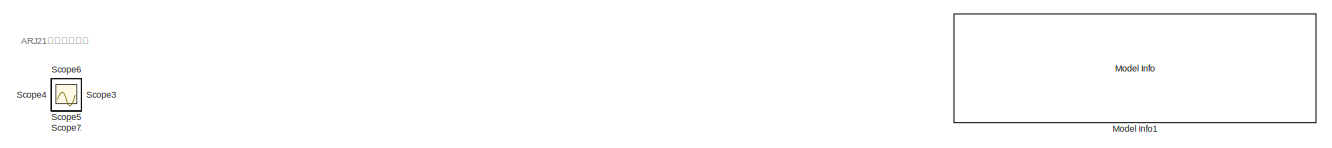
[diagram: root canvas - part 1/2, full width, top band]
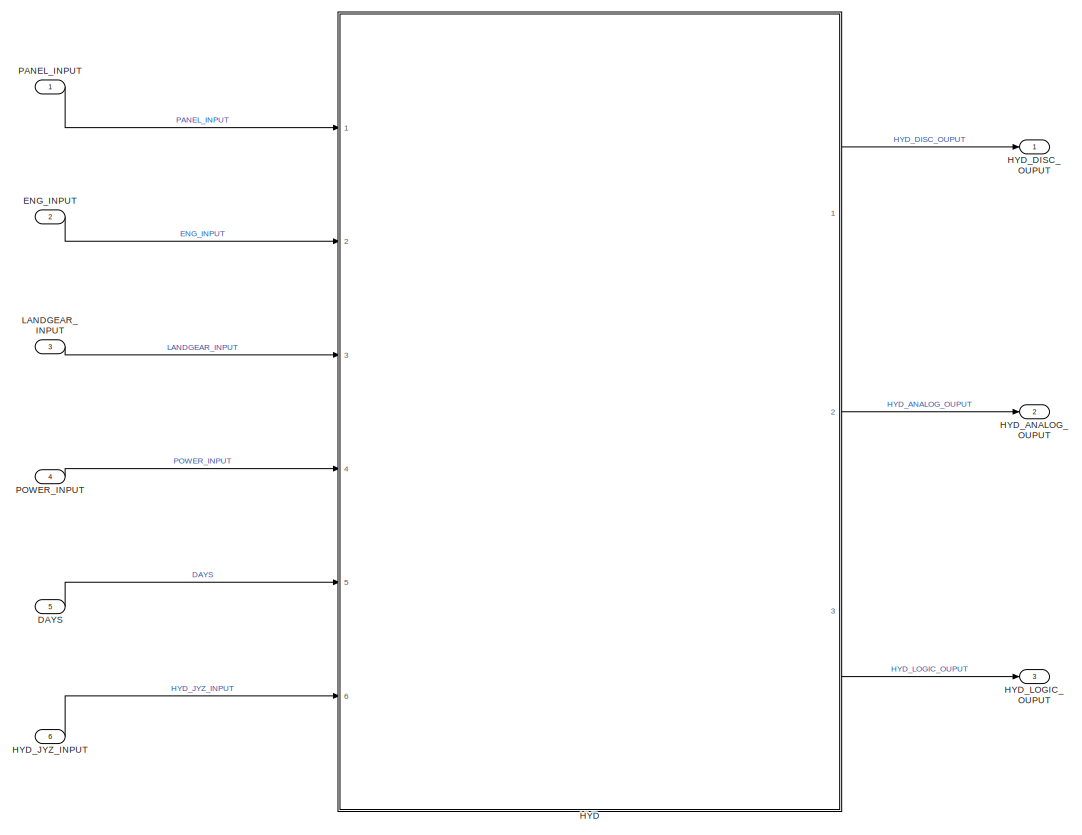
[diagram: root canvas - part 2/2, most of the canvas]
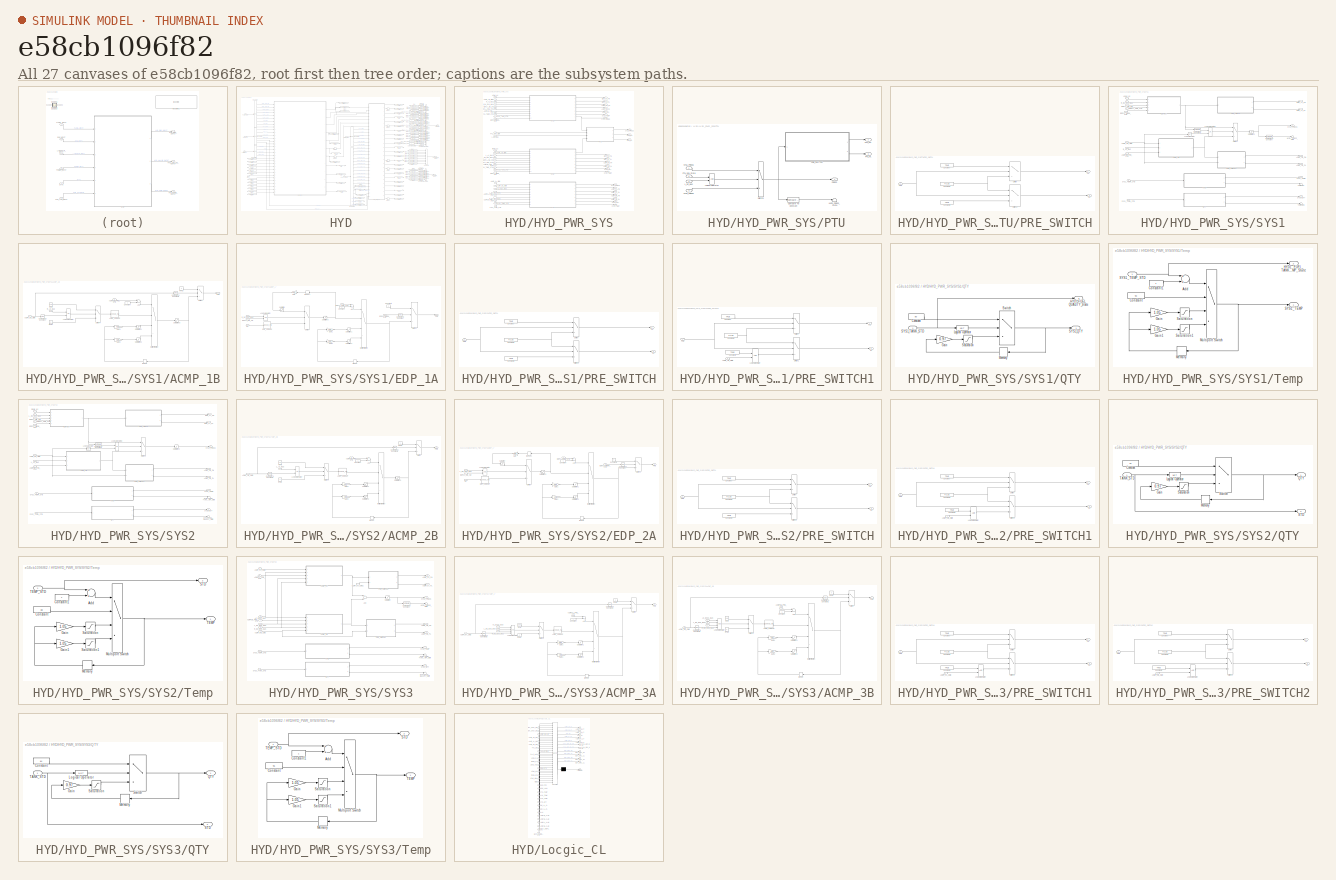
[diagram: thumbnail index - all 27 canvases of the model, root first then tree order]
MODEL slx_e58cb1096f82
KIND model
CONFIG AbsTol = auto
CONFIG EnableMultiTasking = off
CONFIG FixedStep = auto
CONFIG MaxStep = auto
CONFIG MinStep = auto
CONFIG RelTol = 1e-3
CONFIG SampleTimeConstraint = Unconstrained
CONFIG Solver = VariableStepAuto
CONFIG SolverName = VariableStepAuto
CONFIG StartTime = 0.0
CONFIG StopTime = 10.0
BLOCK [Inport] DAYS
  IconDisplay = Port number
  OutDataTypeStr = uint32
  Port = 5
BLOCK [Inport] ENG_INPUT
  IconDisplay = Port number
  OutDataTypeStr = Bus: HYD_ENG_INPUT
  Port = 2
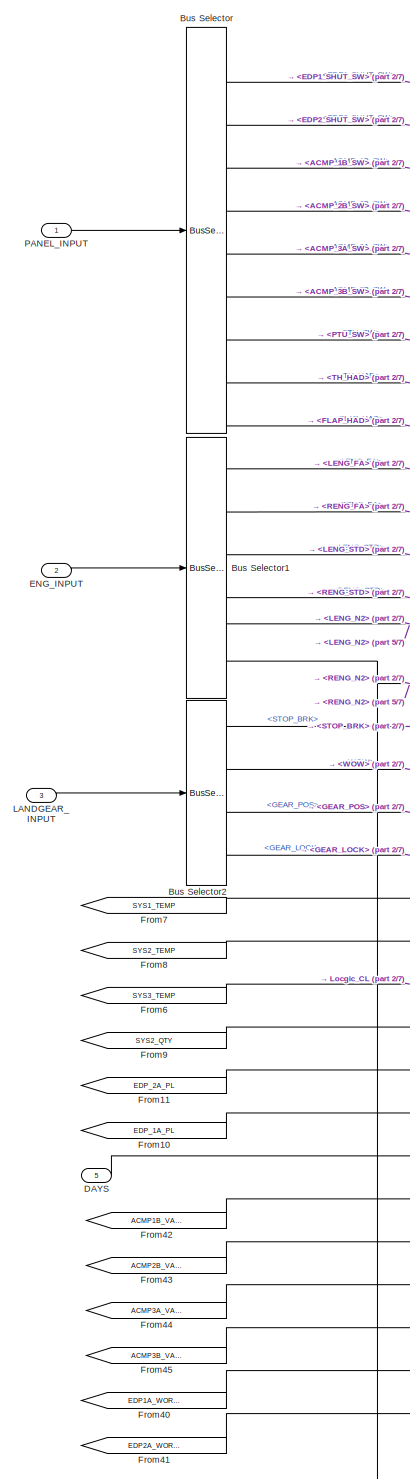
[diagram: HYD - part 1/7, left side, full height]
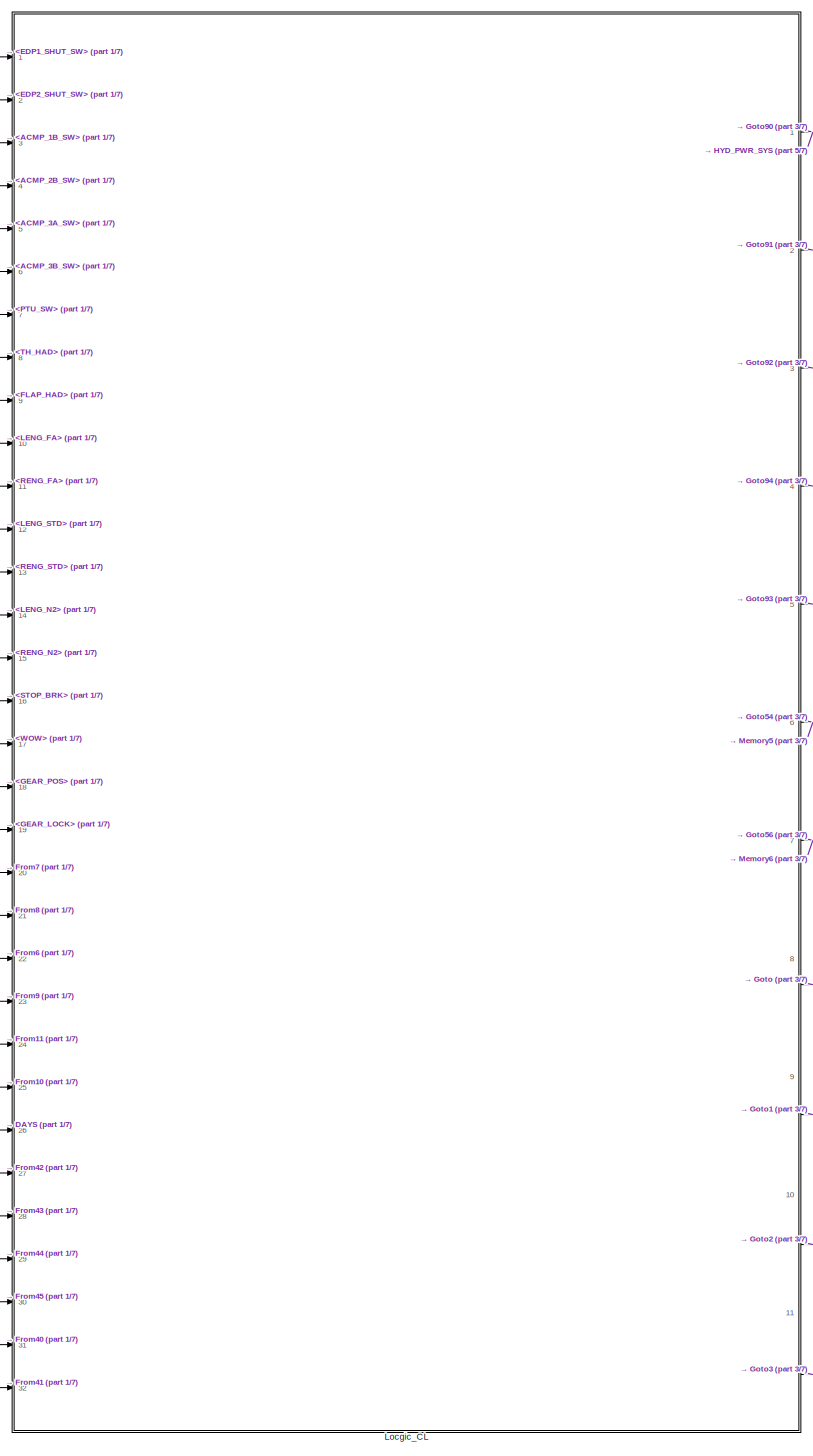
[diagram: HYD - part 2/7, left side, full height]
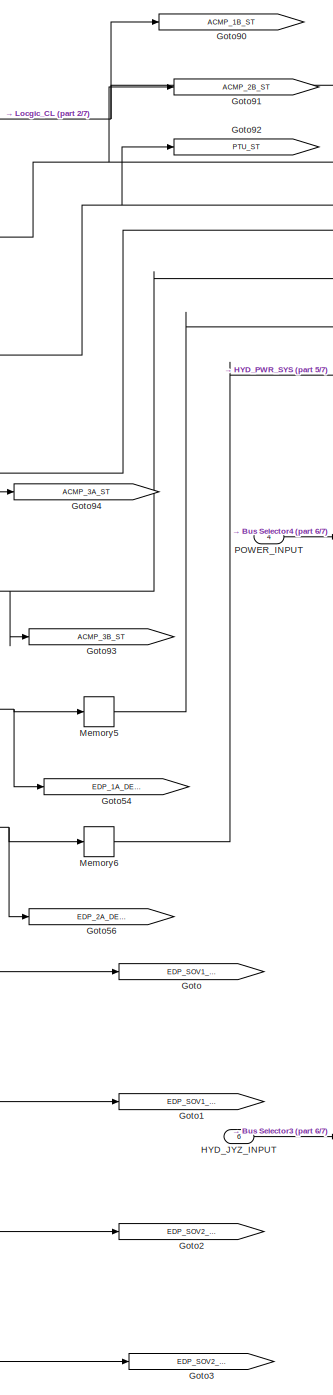
[diagram: HYD - part 3/7, center side, full height]
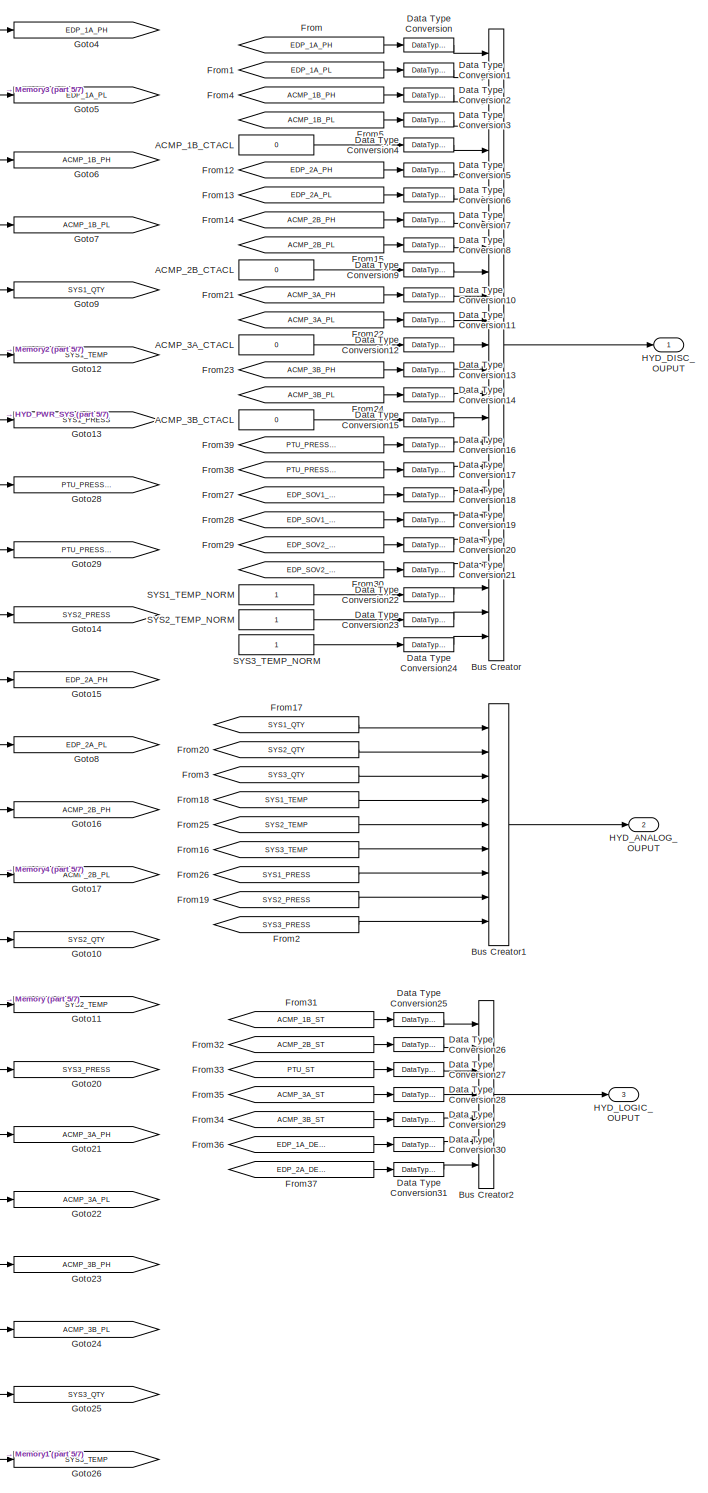
[diagram: HYD - part 4/7, right side, full height]
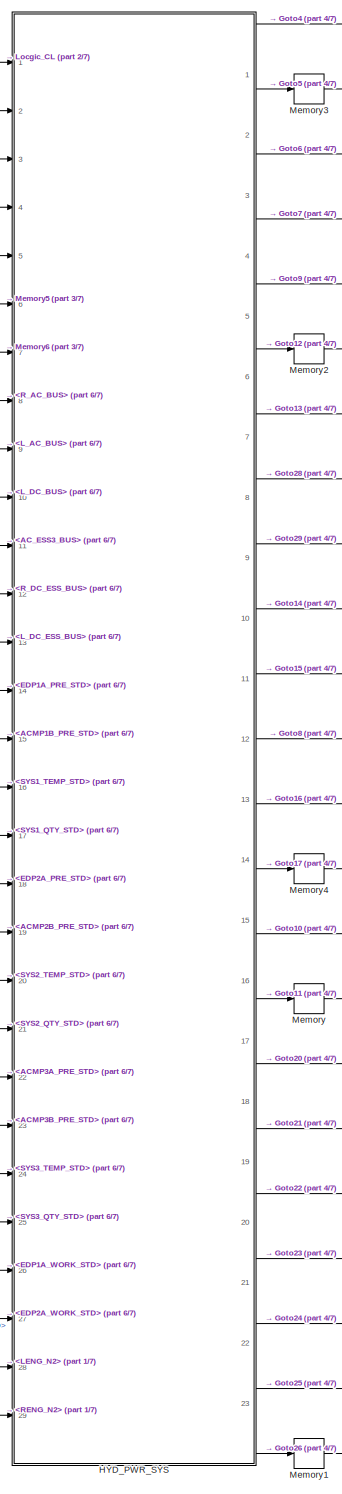
[diagram: HYD - part 5/7, right side, full height]
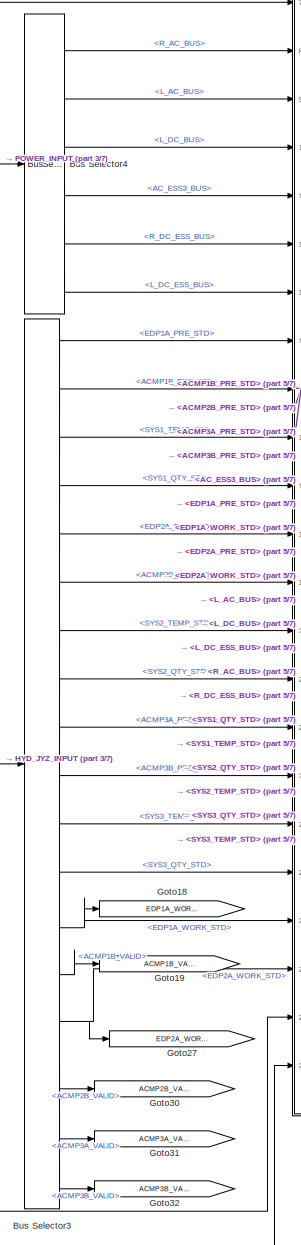
[diagram: HYD - part 6/7, central region]
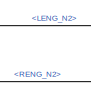
[diagram: HYD - part 7/7, bottom center region]
BLOCK [SubSystem] HYD
  Ports = [6, 3]
  RequestExecContextInheritance = off
BLOCK [Constant] HYD/ACMP_1B_CTACL
  Value = 0
BLOCK [Constant] HYD/ACMP_2B_CTACL
  Value = 0
BLOCK [Constant] HYD/ACMP_3A_CTACL
  Value = 0
BLOCK [Constant] HYD/ACMP_3B_CTACL
  Value = 0
BLOCK [BusCreator] HYD/Bus Creator
  DisplayOption = bar
  InheritFromInputs = on
  Inputs = 25
  OutDataTypeStr = Bus: HYD_DISC_OUTPUT
  Ports = [25, 1]
BLOCK [BusCreator] HYD/Bus Creator1
  DisplayOption = bar
  InheritFromInputs = on
  Inputs = 9
  Ports = [9, 1]
BLOCK [BusCreator] HYD/Bus Creator2
  DisplayOption = bar
  InheritFromInputs = on
  Inputs = 7
  Ports = [7, 1]
BLOCK [BusSelector] HYD/Bus Selector
  OutputAsBus = off
  OutputSignals = EDP1_SHUT_SW,EDP2_SHUT_SW,ACMP_1B_SW,ACMP_2B_SW,ACMP_3A_SW,ACMP_3B_SW,PTU_SW,TH_HAD,FLAP_HAD
  Ports = [1, 9]
BLOCK [BusSelector] HYD/Bus Selector1
  OutputAsBus = off
  OutputSignals = LENG_FA,RENG_FA,LENG_STD,RENG_STD,LENG_N2,RENG_N2
  Ports = [1, 6]
BLOCK [BusSelector] HYD/Bus Selector2
  OutputAsBus = off
  OutputSignals = STOP_BRK,WOW,GEAR_POS,GEAR_LOCK
  Ports = [1, 4]
BLOCK [BusSelector] HYD/Bus Selector3
  OutputAsBus = off
  OutputSignals = EDP1A_PRE_STD,ACMP1B_PRE_STD,SYS1_TEMP_STD,SYS1_QTY_STD,EDP2A_PRE_STD,ACMP2B_PRE_STD,SYS2_TEMP_STD,SYS2_QTY_STD,ACMP3A_PRE_STD,ACMP3B_PRE_STD,SYS3_TEMP_STD,SYS3_QTY_STD,EDP1A_WORK_STD,ACMP1B_VALID,EDP2A_WORK_STD,ACMP2B_VALID,ACMP3A_VALID,ACMP3B_VALID
  Ports = [1, 18]
BLOCK [BusSelector] HYD/Bus Selector4
  OutputAsBus = off
  OutputSignals = R_AC_BUS,L_AC_BUS,L_DC_BUS,AC_ESS3_BUS,R_DC_ESS_BUS,L_DC_ESS_BUS
  Ports = [1, 6]
BLOCK [Inport] HYD/DAYS
  IconDisplay = Port number
  OutDataTypeStr = uint32
  Port = 5
BLOCK [DataTypeConversion] HYD/Data Type Conversion
  OutDataTypeStr = boolean
  RndMeth = Floor
  SaturateOnIntegerOverflow = off
BLOCK [DataTypeConversion] HYD/Data Type Conversion1
  OutDataTypeStr = boolean
  RndMeth = Floor
  SaturateOnIntegerOverflow = off
BLOCK [DataTypeConversion] HYD/Data Type Conversion10
  OutDataTypeStr = boolean
  RndMeth = Floor
  SaturateOnIntegerOverflow = off
BLOCK [DataTypeConversion] HYD/Data Type Conversion11
  OutDataTypeStr = boolean
  RndMeth = Floor
  SaturateOnIntegerOverflow = off
BLOCK [DataTypeConversion] HYD/Data Type Conversion12
  OutDataTypeStr = boolean
  RndMeth = Floor
  SaturateOnIntegerOverflow = off
BLOCK [DataTypeConversion] HYD/Data Type Conversion13
  OutDataTypeStr = boolean
  RndMeth = Floor
  SaturateOnIntegerOverflow = off
BLOCK [DataTypeConversion] HYD/Data Type Conversion14
  OutDataTypeStr = boolean
  RndMeth = Floor
  SaturateOnIntegerOverflow = off
BLOCK [DataTypeConversion] HYD/Data Type Conversion15
  OutDataTypeStr = boolean
  RndMeth = Floor
  SaturateOnIntegerOverflow = off
BLOCK [DataTypeConversion] HYD/Data Type Conversion16
  OutDataTypeStr = boolean
  RndMeth = Floor
  SaturateOnIntegerOverflow = off
BLOCK [DataTypeConversion] HYD/Data Type Conversion17
  OutDataTypeStr = boolean
  RndMeth = Floor
  SaturateOnIntegerOverflow = off
BLOCK [DataTypeConversion] HYD/Data Type Conversion18
  OutDataTypeStr = boolean
  RndMeth = Floor
  SaturateOnIntegerOverflow = off
BLOCK [DataTypeConversion] HYD/Data Type Conversion19
  OutDataTypeStr = boolean
  RndMeth = Floor
  SaturateOnIntegerOverflow = off
BLOCK [DataTypeConversion] HYD/Data Type Conversion2
  OutDataTypeStr = boolean
  RndMeth = Floor
  SaturateOnIntegerOverflow = off
BLOCK [DataTypeConversion] HYD/Data Type Conversion20
  OutDataTypeStr = boolean
  RndMeth = Floor
  SaturateOnIntegerOverflow = off
BLOCK [DataTypeConversion] HYD/Data Type Conversion21
  OutDataTypeStr = boolean
  RndMeth = Floor
  SaturateOnIntegerOverflow = off
BLOCK [DataTypeConversion] HYD/Data Type Conversion22
  OutDataTypeStr = boolean
  RndMeth = Floor
  SaturateOnIntegerOverflow = off
BLOCK [DataTypeConversion] HYD/Data Type Conversion23
  OutDataTypeStr = boolean
  RndMeth = Floor
  SaturateOnIntegerOverflow = off
BLOCK [DataTypeConversion] HYD/Data Type Conversion24
  OutDataTypeStr = boolean
  RndMeth = Floor
  SaturateOnIntegerOverflow = off
BLOCK [DataTypeConversion] HYD/Data Type Conversion25
  OutDataTypeStr = uint8
  RndMeth = Floor
  SaturateOnIntegerOverflow = off
BLOCK [DataTypeConversion] HYD/Data Type Conversion26
  OutDataTypeStr = uint8
  RndMeth = Floor
  SaturateOnIntegerOverflow = off
BLOCK [DataTypeConversion] HYD/Data Type Conversion27
  OutDataTypeStr = uint8
  RndMeth = Floor
  SaturateOnIntegerOverflow = off
BLOCK [DataTypeConversion] HYD/Data Type Conversion28
  OutDataTypeStr = uint8
  RndMeth = Floor
  SaturateOnIntegerOverflow = off
BLOCK [DataTypeConversion] HYD/Data Type Conversion29
  OutDataTypeStr = uint8
  RndMeth = Floor
  SaturateOnIntegerOverflow = off
BLOCK [DataTypeConversion] HYD/Data Type Conversion3
  OutDataTypeStr = boolean
  RndMeth = Floor
  SaturateOnIntegerOverflow = off
BLOCK [DataTypeConversion] HYD/Data Type Conversion30
  OutDataTypeStr = uint8
  RndMeth = Floor
  SaturateOnIntegerOverflow = off
BLOCK [DataTypeConversion] HYD/Data Type Conversion31
  OutDataTypeStr = uint8
  RndMeth = Floor
  SaturateOnIntegerOverflow = off
BLOCK [DataTypeConversion] HYD/Data Type Conversion4
  OutDataTypeStr = boolean
  RndMeth = Floor
  SaturateOnIntegerOverflow = off
BLOCK [DataTypeConversion] HYD/Data Type Conversion5
  OutDataTypeStr = boolean
  RndMeth = Floor
  SaturateOnIntegerOverflow = off
BLOCK [DataTypeConversion] HYD/Data Type Conversion6
  OutDataTypeStr = boolean
  RndMeth = Floor
  SaturateOnIntegerOverflow = off
BLOCK [DataTypeConversion] HYD/Data Type Conversion7
  OutDataTypeStr = boolean
  RndMeth = Floor
  SaturateOnIntegerOverflow = off
BLOCK [DataTypeConversion] HYD/Data Type Conversion8
  OutDataTypeStr = boolean
  RndMeth = Floor
  SaturateOnIntegerOverflow = off
BLOCK [DataTypeConversion] HYD/Data Type Conversion9
  OutDataTypeStr = boolean
  RndMeth = Floor
  SaturateOnIntegerOverflow = off
BLOCK [Inport] HYD/ENG_INPUT
  IconDisplay = Port number
  OutDataTypeStr = Bus: HYD_ENG_INPUT
  Port = 2
BLOCK [From] HYD/From
  GotoTag = EDP_1A_PH
BLOCK [From] HYD/From1
  GotoTag = EDP_1A_PL
BLOCK [From] HYD/From10
  GotoTag = EDP_1A_PL
BLOCK [From] HYD/From11
  GotoTag = EDP_2A_PL
BLOCK [From] HYD/From12
  GotoTag = EDP_2A_PH
BLOCK [From] HYD/From13
  GotoTag = EDP_2A_PL
BLOCK [From] HYD/From14
  GotoTag = ACMP_2B_PH
BLOCK [From] HYD/From15
  GotoTag = ACMP_2B_PL
BLOCK [From] HYD/From16
  GotoTag = SYS3_TEMP
BLOCK [From] HYD/From17
  GotoTag = SYS1_QTY
BLOCK [From] HYD/From18
  GotoTag = SYS1_TEMP
BLOCK [From] HYD/From19
  GotoTag = SYS2_PRESS
BLOCK [From] HYD/From2
  GotoTag = SYS3_PRESS
BLOCK [From] HYD/From20
  GotoTag = SYS2_QTY
BLOCK [From] HYD/From21
  GotoTag = ACMP_3A_PH
BLOCK [From] HYD/From22
  GotoTag = ACMP_3A_PL
BLOCK [From] HYD/From23
  GotoTag = ACMP_3B_PH
BLOCK [From] HYD/From24
  GotoTag = ACMP_3B_PL
BLOCK [From] HYD/From25
  GotoTag = SYS2_TEMP
BLOCK [From] HYD/From26
  GotoTag = SYS1_PRESS
BLOCK [From] HYD/From27
  GotoTag = EDP_SOV1_OP
BLOCK [From] HYD/From28
  GotoTag = EDP_SOV1_CL
BLOCK [From] HYD/From29
  GotoTag = EDP_SOV2_OP
BLOCK [From] HYD/From3
  GotoTag = SYS3_QTY
BLOCK [From] HYD/From30
  GotoTag = EDP_SOV2_CL
BLOCK [From] HYD/From31
  GotoTag = ACMP_1B_ST
BLOCK [From] HYD/From32
  GotoTag = ACMP_2B_ST
BLOCK [From] HYD/From33
  GotoTag = PTU_ST
BLOCK [From] HYD/From34
  GotoTag = ACMP_3B_ST
BLOCK [From] HYD/From35
  GotoTag = ACMP_3A_ST
BLOCK [From] HYD/From36
  GotoTag = EDP_1A_DEPRESS
BLOCK [From] HYD/From37
  GotoTag = EDP_2A_DEPRESS
BLOCK [From] HYD/From38
  GotoTag = PTU_PRESS_PL
BLOCK [From] HYD/From39
  GotoTag = PTU_PRESS_PH
BLOCK [From] HYD/From4
  GotoTag = ACMP_1B_PH
BLOCK [From] HYD/From40
  GotoTag = EDP1A_WORK_STD
BLOCK [From] HYD/From41
  GotoTag = EDP2A_WORK_STD
BLOCK [From] HYD/From42
  GotoTag = ACMP1B_VALID
BLOCK [From] HYD/From43
  GotoTag = ACMP2B_VALID
BLOCK [From] HYD/From44
  GotoTag = ACMP3A_VALID
BLOCK [From] HYD/From45
  GotoTag = ACMP3B_VALID
BLOCK [From] HYD/From5
  GotoTag = ACMP_1B_PL
BLOCK [From] HYD/From6
  GotoTag = SYS3_TEMP
BLOCK [From] HYD/From7
  GotoTag = SYS1_TEMP
BLOCK [From] HYD/From8
  GotoTag = SYS2_TEMP
BLOCK [From] HYD/From9
  GotoTag = SYS2_QTY
BLOCK [Goto] HYD/Goto
  GotoTag = EDP_SOV1_OP
BLOCK [Goto] HYD/Goto1
  GotoTag = EDP_SOV1_CL
BLOCK [Goto] HYD/Goto10
  GotoTag = SYS2_QTY
BLOCK [Goto] HYD/Goto11
  GotoTag = SYS2_TEMP
BLOCK [Goto] HYD/Goto12
  GotoTag = SYS1_TEMP
BLOCK [Goto] HYD/Goto13
  GotoTag = SYS1_PRESS
BLOCK [Goto] HYD/Goto14
  GotoTag = SYS2_PRESS
BLOCK [Goto] HYD/Goto15
  GotoTag = EDP_2A_PH
BLOCK [Goto] HYD/Goto16
  GotoTag = ACMP_2B_PH
BLOCK [Goto] HYD/Goto17
  GotoTag = ACMP_2B_PL
BLOCK [Goto] HYD/Goto18
  GotoTag = EDP1A_WORK_STD
BLOCK [Goto] HYD/Goto19
  GotoTag = ACMP1B_VALID
BLOCK [Goto] HYD/Goto2
  GotoTag = EDP_SOV2_OP
BLOCK [Goto] HYD/Goto20
  GotoTag = SYS3_PRESS
BLOCK [Goto] HYD/Goto21
  GotoTag = ACMP_3A_PH
BLOCK [Goto] HYD/Goto22
  GotoTag = ACMP_3A_PL
BLOCK [Goto] HYD/Goto23
  GotoTag = ACMP_3B_PH
BLOCK [Goto] HYD/Goto24
  GotoTag = ACMP_3B_PL
BLOCK [Goto] HYD/Goto25
  GotoTag = SYS3_QTY
BLOCK [Goto] HYD/Goto26
  GotoTag = SYS3_TEMP
BLOCK [Goto] HYD/Goto27
  GotoTag = EDP2A_WORK_STD
BLOCK [Goto] HYD/Goto28
  GotoTag = PTU_PRESS_PH
BLOCK [Goto] HYD/Goto29
  GotoTag = PTU_PRESS_PL
BLOCK [Goto] HYD/Goto3
  GotoTag = EDP_SOV2_CL
BLOCK [Goto] HYD/Goto30
  GotoTag = ACMP2B_VALID
BLOCK [Goto] HYD/Goto31
  GotoTag = ACMP3A_VALID
BLOCK [Goto] HYD/Goto32
  GotoTag = ACMP3B_VALID
BLOCK [Goto] HYD/Goto4
  GotoTag = EDP_1A_PH
BLOCK [Goto] HYD/Goto5
  GotoTag = EDP_1A_PL
BLOCK [Goto] HYD/Goto54
  GotoTag = EDP_1A_DEPRESS
BLOCK [Goto] HYD/Goto56
  GotoTag = EDP_2A_DEPRESS
BLOCK [Goto] HYD/Goto6
  GotoTag = ACMP_1B_PH
BLOCK [Goto] HYD/Goto7
  GotoTag = ACMP_1B_PL
BLOCK [Goto] HYD/Goto8
  GotoTag = EDP_2A_PL
BLOCK [Goto] HYD/Goto9
  GotoTag = SYS1_QTY
BLOCK [Goto] HYD/Goto90
  GotoTag = ACMP_1B_ST
BLOCK [Goto] HYD/Goto91
  GotoTag = ACMP_2B_ST
BLOCK [Goto] HYD/Goto92
  GotoTag = PTU_ST
BLOCK [Goto] HYD/Goto93
  GotoTag = ACMP_3B_ST
BLOCK [Goto] HYD/Goto94
  GotoTag = ACMP_3A_ST
BLOCK [Outport] HYD/HYD_ANALOG_OUPUT
  IconDisplay = Port number
  OutDataTypeStr = Bus: HYD_ANALOG_OUPUT
  Port = 2
BLOCK [Outport] HYD/HYD_DISC_OUPUT
  IconDisplay = Port number
  OutDataTypeStr = Bus: HYD_DISC_OUTPUT
BLOCK [Inport] HYD/HYD_JYZ_INPUT
  IconDisplay = Port number
  OutDataTypeStr = Bus: HYD_JYZ_INPUT
  Port = 6
BLOCK [Outport] HYD/HYD_LOGIC_OUPUT
  IconDisplay = Port number
  OutDataTypeStr = Bus: HYD_LOGIC_OUPUT
  Port = 3
BLOCK [SubSystem] HYD/HYD_PWR_SYS
  Ports = [29, 23]
  RequestExecContextInheritance = off
BLOCK [Inport] HYD/HYD_PWR_SYS/ACMP1B_PRE_STD
  IconDisplay = Port number
  Port = 15
BLOCK [Inport] HYD/HYD_PWR_SYS/ACMP2B_PRE_STD
  IconDisplay = Port number
  Port = 19
BLOCK [Inport] HYD/HYD_PWR_SYS/ACMP3A_PRE_STD
  IconDisplay = Port number
  Port = 22
BLOCK [Inport] HYD/HYD_PWR_SYS/ACMP3B_PRE_STD
  IconDisplay = Port number
  Port = 23
BLOCK [Outport] HYD/HYD_PWR_SYS/ACMP_1B_PH
  IconDisplay = Port number
  Port = 3
BLOCK [Outport] HYD/HYD_PWR_SYS/ACMP_1B_PL
  IconDisplay = Port number
  Port = 4
BLOCK [Inport] HYD/HYD_PWR_SYS/ACMP_1B_State
  IconDisplay = Port number
BLOCK [Outport] HYD/HYD_PWR_SYS/ACMP_2B_PH
  IconDisplay = Port number
  Port = 13
BLOCK [Outport] HYD/HYD_PWR_SYS/ACMP_2B_PL
  IconDisplay = Port number
  Port = 14
BLOCK [Inport] HYD/HYD_PWR_SYS/ACMP_2B_State
  IconDisplay = Port number
  Port = 2
BLOCK [Outport] HYD/HYD_PWR_SYS/ACMP_3A_PH
  IconDisplay = Port number
  Port = 18
BLOCK [Outport] HYD/HYD_PWR_SYS/ACMP_3A_PL
  IconDisplay = Port number
  Port = 19
BLOCK [Inport] HYD/HYD_PWR_SYS/ACMP_3A_State
  IconDisplay = Port number
  Port = 4
BLOCK [Outport] HYD/HYD_PWR_SYS/ACMP_3B_PH
  IconDisplay = Port number
  Port = 20
BLOCK [Outport] HYD/HYD_PWR_SYS/ACMP_3B_PL
  IconDisplay = Port number
  Port = 21
BLOCK [Inport] HYD/HYD_PWR_SYS/ACMP_3B_State
  IconDisplay = Port number
  Port = 5
BLOCK [Inport] HYD/HYD_PWR_SYS/AC_ESS3_BUS
  IconDisplay = Port number
  Port = 11
BLOCK [Inport] HYD/HYD_PWR_SYS/EDP1A_DE_SW
  IconDisplay = Port number
  Port = 6
BLOCK [Inport] HYD/HYD_PWR_SYS/EDP1A_PRE_STD
  IconDisplay = Port number
  Port = 14
BLOCK [Inport] HYD/HYD_PWR_SYS/EDP1A_WORK_STD
  IconDisplay = Port number
  OutDataTypeStr = uint8
  Port = 26
BLOCK [Inport] HYD/HYD_PWR_SYS/EDP2A_DE_SW
  IconDisplay = Port number
  Port = 7
BLOCK [Inport] HYD/HYD_PWR_SYS/EDP2A_PRE_STD
  IconDisplay = Port number
  Port = 18
BLOCK [Inport] HYD/HYD_PWR_SYS/EDP2A_WORK_STD
  IconDisplay = Port number
  OutDataTypeStr = uint8
  Port = 27
BLOCK [Outport] HYD/HYD_PWR_SYS/EDP_1A_PH
  IconDisplay = Port number
BLOCK [Outport] HYD/HYD_PWR_SYS/EDP_1A_PL
  IconDisplay = Port number
  Port = 2
BLOCK [Outport] HYD/HYD_PWR_SYS/EDP_2A_PH
  IconDisplay = Port number
  Port = 11
BLOCK [Outport] HYD/HYD_PWR_SYS/EDP_2A_PL
  IconDisplay = Port number
  Port = 12
BLOCK [Inport] HYD/HYD_PWR_SYS/LENG_N2
  IconDisplay = Port number
  Port = 28
BLOCK [Inport] HYD/HYD_PWR_SYS/L_AC_BUS
  IconDisplay = Port number
  Port = 9
BLOCK [Inport] HYD/HYD_PWR_SYS/L_DC_BUS
  IconDisplay = Port number
  Port = 10
BLOCK [Inport] HYD/HYD_PWR_SYS/L_DC_ESS_BUS
  IconDisplay = Port number
  Port = 13
BLOCK [InportShadow] HYD/HYD_PWR_SYS/L_DC_ESS_BUS1
  IconDisplay = Port number
  Port = 13
BLOCK [SubSystem] HYD/HYD_PWR_SYS/PTU
  Ports = [4, 3]
  RequestExecContextInheritance = off
BLOCK [Reference] HYD/HYD_PWR_SYS/PTU/Compare To Constant  REF=simulink/Logic and Bit
Operations/Compare
To Constant
  Ports = [1, 1]
  SourceBlock = simulink/Logic and Bit\nOperations/Compare\nTo Constant
  SourceProductBaseCode = SL
  SourceProductName = Simulink
  SourceType = Compare To Constant
BLOCK [Terminator] HYD/HYD_PWR_SYS/PTU/HYD2_PRESS_State
BLOCK [Inport] HYD/HYD_PWR_SYS/PTU/L_DC_BUS
  IconDisplay = Port number
  Port = 3
BLOCK [Logic] HYD/HYD_PWR_SYS/PTU/Logical Operator
  AllPortsSameDT = off
  OutDataTypeStr = boolean
  Ports = [2, 1]
BLOCK [Outport] HYD/HYD_PWR_SYS/PTU/PRESS
  IconDisplay = Port number
BLOCK [SubSystem] HYD/HYD_PWR_SYS/PTU/PRE_SWITCH
  Ports = [1, 2]
  RequestExecContextInheritance = off
BLOCK [Constant] HYD/HYD_PWR_SYS/PTU/PRE_SWITCH/Constant
  Value = TRUE
BLOCK [Constant] HYD/HYD_PWR_SYS/PTU/PRE_SWITCH/Constant1
  Value = FALSE
BLOCK [Constant] HYD/HYD_PWR_SYS/PTU/PRE_SWITCH/Constant2
  Value = TRUE
BLOCK [Outport] HYD/HYD_PWR_SYS/PTU/PRE_SWITCH/PH
  IconDisplay = Port number
BLOCK [Outport] HYD/HYD_PWR_SYS/PTU/PRE_SWITCH/PL
  IconDisplay = Port number
  Port = 2
BLOCK [Inport] HYD/HYD_PWR_SYS/PTU/PRE_SWITCH/PRE
  IconDisplay = Port number
BLOCK [Switch] HYD/HYD_PWR_SYS/PTU/PRE_SWITCH/Switch
  Criteria = u2 > Threshold
  InputSameDT = off
  SaturateOnIntegerOverflow = off
  Threshold = HI_PRES_THRE
  ZeroCross = off
BLOCK [Switch] HYD/HYD_PWR_SYS/PTU/PRE_SWITCH/Switch1
  Criteria = u2 > Threshold
  InputSameDT = off
  SaturateOnIntegerOverflow = off
  Threshold = LO_PRES_THRS
BLOCK [Outport] HYD/HYD_PWR_SYS/PTU/PTU_PH
  IconDisplay = Port number
  Port = 2
BLOCK [Outport] HYD/HYD_PWR_SYS/PTU/PTU_PL
  IconDisplay = Port number
  Port = 3
BLOCK [Inport] HYD/HYD_PWR_SYS/PTU/PTU_SOV_State
  IconDisplay = Port number
  Port = 2
BLOCK [Inport] HYD/HYD_PWR_SYS/PTU/SYS1_PRESS
  IconDisplay = Port number
BLOCK [Inport] HYD/HYD_PWR_SYS/PTU/SYS2_PRESS
  IconDisplay = Port number
  Port = 4
BLOCK [Switch] HYD/HYD_PWR_SYS/PTU/Switch1
  Criteria = u2 > Threshold
  InputSameDT = off
  SaturateOnIntegerOverflow = off
  Threshold = LO_PRES_THRS
BLOCK [Outport] HYD/HYD_PWR_SYS/PTU_PH
  IconDisplay = Port number
  Port = 8
BLOCK [Outport] HYD/HYD_PWR_SYS/PTU_PL
  IconDisplay = Port number
  Port = 9
BLOCK [Inport] HYD/HYD_PWR_SYS/PTU_SOV_State
  IconDisplay = Port number
  Port = 3
BLOCK [Inport] HYD/HYD_PWR_SYS/RENG_N2
  IconDisplay = Port number
  Port = 29
BLOCK [Inport] HYD/HYD_PWR_SYS/R_AC_BUS
  IconDisplay = Port number
  Port = 8
BLOCK [Inport] HYD/HYD_PWR_SYS/R_DC_ESS_BUS
  IconDisplay = Port number
  Port = 12
BLOCK [InportShadow] HYD/HYD_PWR_SYS/R_DC_ESS_BUS1
  IconDisplay = Port number
  Port = 12
BLOCK [SubSystem] HYD/HYD_PWR_SYS/SYS1
  Ports = [10, 7]
  RequestExecContextInheritance = off
BLOCK [Inport] HYD/HYD_PWR_SYS/SYS1/ACMP1B_PRE_STD
  IconDisplay = Port number
  Port = 7
BLOCK [SubSystem] HYD/HYD_PWR_SYS/SYS1/ACMP_1B
  Ports = [3, 1]
  RequestExecContextInheritance = off
BLOCK [Inport] HYD/HYD_PWR_SYS/SYS1/ACMP_1B/ACMP1B_PRE_STD
  IconDisplay = Port number
  Port = 3
BLOCK [Inport] HYD/HYD_PWR_SYS/SYS1/ACMP_1B/ACMP_1B_State
  IconDisplay = Port number
BLOCK [Lookup_n-D] HYD/HYD_PWR_SYS/SYS1/ACMP_1B/ACMP_LOOKUP
  BreakpointsForDimension1 = ENG_SPD_RPM
  InternalRulePriority = Speed
  NumberOfTableDimensions = 1
  Ports = [1, 1]
  RndMeth = Simplest
  Table = EDP_PRESS
BLOCK [Sum] HYD/HYD_PWR_SYS/SYS1/ACMP_1B/Add
  InputSameDT = off
  OutDataTypeStr = Inherit: Inherit via internal rule
  Ports = [2, 1]
  SaturateOnIntegerOverflow = off
BLOCK [Reference] HYD/HYD_PWR_SYS/SYS1/ACMP_1B/Compare To Constant  REF=simulink/Logic and Bit
Operations/Compare
To Constant
  Ports = [1, 1]
  SourceBlock = simulink/Logic and Bit\nOperations/Compare\nTo Constant
  SourceProductBaseCode = SL
  SourceProductName = Simulink
  SourceType = Compare To Constant
BLOCK [Reference] HYD/HYD_PWR_SYS/SYS1/ACMP_1B/Compare To Constant1  REF=simulink/Logic and Bit
Operations/Compare
To Constant
  Ports = [1, 1]
  SourceBlock = simulink/Logic and Bit\nOperations/Compare\nTo Constant
  SourceProductBaseCode = SL
  SourceProductName = Simulink
  SourceType = Compare To Constant
BLOCK [Constant] HYD/HYD_PWR_SYS/SYS1/ACMP_1B/Constant
BLOCK [Gain] HYD/HYD_PWR_SYS/SYS1/ACMP_1B/Gain1
  Gain = 0.95
  OutDataTypeStr = Inherit: Inherit via internal rule
  ParamDataTypeStr = Inherit: Inherit via internal rule
  SaturateOnIntegerOverflow = off
BLOCK [Gain] HYD/HYD_PWR_SYS/SYS1/ACMP_1B/Gain2
  Gain = 1.05
  OutDataTypeStr = Inherit: Inherit via internal rule
  ParamDataTypeStr = Inherit: Inherit via internal rule
  SaturateOnIntegerOverflow = off
BLOCK [Logic] HYD/HYD_PWR_SYS/SYS1/ACMP_1B/Logical Operator
  AllPortsSameDT = off
  OutDataTypeStr = boolean
  Ports = [2, 1]
BLOCK [Memory] HYD/HYD_PWR_SYS/SYS1/ACMP_1B/Memory
BLOCK [MultiPortSwitch] HYD/HYD_PWR_SYS/SYS1/ACMP_1B/Multiport Switch
  DiagnosticForDefault = None
  InputSameDT = off
  Ports = [4, 1]
  SaturateOnIntegerOverflow = off
BLOCK [Outport] HYD/HYD_PWR_SYS/SYS1/ACMP_1B/PRE
  IconDisplay = Port number
BLOCK [Constant] HYD/HYD_PWR_SYS/SYS1/ACMP_1B/RPM
  Value = 3000
BLOCK [Constant] HYD/HYD_PWR_SYS/SYS1/ACMP_1B/RPM1
  Value = 0
BLOCK [Constant] HYD/HYD_PWR_SYS/SYS1/ACMP_1B/RPM2
  Value = 0
BLOCK [Inport] HYD/HYD_PWR_SYS/SYS1/ACMP_1B/R_AC_BUS
  IconDisplay = Port number
  Port = 2
BLOCK [Saturate] HYD/HYD_PWR_SYS/SYS1/ACMP_1B/Saturation1
  InputPortMap = u0
  LowerLimit = 800
  Ports = [1, 1]
  UpperLimit = 3000
BLOCK [Saturate] HYD/HYD_PWR_SYS/SYS1/ACMP_1B/Saturation2
  InputPortMap = u0
  LowerLimit = 3000
  Ports = [1, 1]
  UpperLimit = 3500
BLOCK [Saturate] HYD/HYD_PWR_SYS/SYS1/ACMP_1B/Saturation3
  InputPortMap = u0
  LowerLimit = 0
  Ports = [1, 1]
  UpperLimit = 3000
BLOCK [Switch] HYD/HYD_PWR_SYS/SYS1/ACMP_1B/Switch
  Criteria = u2 > Threshold
  InputSameDT = off
  SaturateOnIntegerOverflow = off
BLOCK [Switch] HYD/HYD_PWR_SYS/SYS1/ACMP_1B/Switch4
  Criteria = u2 > Threshold
  InputSameDT = off
  SaturateOnIntegerOverflow = off
  Threshold = HI_PRES_THRE
  ZeroCross = off
BLOCK [Outport] HYD/HYD_PWR_SYS/SYS1/ACMP_1B_PH
  IconDisplay = Port number
  Port = 3
BLOCK [Outport] HYD/HYD_PWR_SYS/SYS1/ACMP_1B_PL
  IconDisplay = Port number
  Port = 4
BLOCK [Inport] HYD/HYD_PWR_SYS/SYS1/ACMP_1B_State
  IconDisplay = Port number
  Port = 2
BLOCK [Reference] HYD/HYD_PWR_SYS/SYS1/Compare To Constant  REF=simulink/Logic and Bit
Operations/Compare
To Constant
  Ports = [1, 1]
  SourceBlock = simulink/Logic and Bit\nOperations/Compare\nTo Constant
  SourceProductBaseCode = SL
  SourceProductName = Simulink
  SourceType = Compare To Constant
BLOCK [Reference] HYD/HYD_PWR_SYS/SYS1/Compare To Constant1  REF=simulink/Logic and Bit
Operations/Compare
To Constant
  Ports = [1, 1]
  SourceBlock = simulink/Logic and Bit\nOperations/Compare\nTo Constant
  SourceProductBaseCode = SL
  SourceProductName = Simulink
  SourceType = Compare To Constant
BLOCK [Inport] HYD/HYD_PWR_SYS/SYS1/EDP1A_DE_SW
  IconDisplay = Port number
  Port = 5
BLOCK [Inport] HYD/HYD_PWR_SYS/SYS1/EDP1A_PRE_STD
  IconDisplay = Port number
  Port = 6
BLOCK [Inport] HYD/HYD_PWR_SYS/SYS1/EDP1A_WORK_STD
  IconDisplay = Port number
  OutDataTypeStr = uint8
  Port = 10
BLOCK [SubSystem] HYD/HYD_PWR_SYS/SYS1/EDP_1A
  Ports = [5, 1]
  RequestExecContextInheritance = off
BLOCK [Sum] HYD/HYD_PWR_SYS/SYS1/EDP_1A/Add
  InputSameDT = off
  OutDataTypeStr = Inherit: Inherit via internal rule
  Ports = [2, 1]
  SaturateOnIntegerOverflow = off
BLOCK [Reference] HYD/HYD_PWR_SYS/SYS1/EDP_1A/Compare To Constant  REF=simulink/Logic and Bit
Operations/Compare
To Constant
  Ports = [1, 1]
  SourceBlock = simulink/Logic and Bit\nOperations/Compare\nTo Constant
  SourceProductBaseCode = SL
  SourceProductName = Simulink
  SourceType = Compare To Constant
BLOCK [Constant] HYD/HYD_PWR_SYS/SYS1/EDP_1A/Constant
BLOCK [Constant] HYD/HYD_PWR_SYS/SYS1/EDP_1A/Constant1
  Value = 0
BLOCK [Inport] HYD/HYD_PWR_SYS/SYS1/EDP_1A/EDP1A_DE_SW
  IconDisplay = Port number
  Port = 3
BLOCK [Inport] HYD/HYD_PWR_SYS/SYS1/EDP_1A/EDP1A_PRE_STD
  IconDisplay = Port number
  Port = 4
BLOCK [Inport] HYD/HYD_PWR_SYS/SYS1/EDP_1A/EDP1A_WORK_STD
  IconDisplay = Port number
  OutDataTypeStr = uint8
  Port = 5
BLOCK [Lookup_n-D] HYD/HYD_PWR_SYS/SYS1/EDP_1A/EDP_LOOKUP
  BreakpointsForDimension1 = [0 15 20 25 30 35 40 45 50 55 60 65 70 75 80 85 90 95 100]
  InternalRulePriority = Speed
  NumberOfTableDimensions = 1
  Ports = [1, 1]
  RndMeth = Simplest
  Table = [0 2000 2200 2400 2600 2800 3000 3000 3000 3000 3000 3000 3000 3000 3000 3000 3000 3000 3000]
BLOCK [Gain] HYD/HYD_PWR_SYS/SYS1/EDP_1A/Gain
  Gain = 0.98
  OutDataTypeStr = Inherit: Inherit via internal rule
  ParamDataTypeStr = Inherit: Inherit via internal rule
  SaturateOnIntegerOverflow = off
BLOCK [Gain] HYD/HYD_PWR_SYS/SYS1/EDP_1A/Gain1
  Gain = 0.95
  OutDataTypeStr = Inherit: Inherit via internal rule
  ParamDataTypeStr = Inherit: Inherit via internal rule
  SaturateOnIntegerOverflow = off
BLOCK [Gain] HYD/HYD_PWR_SYS/SYS1/EDP_1A/Gain2
  Gain = 1.05
  OutDataTypeStr = Inherit: Inherit via internal rule
  ParamDataTypeStr = Inherit: Inherit via internal rule
  SaturateOnIntegerOverflow = off
BLOCK [Logic] HYD/HYD_PWR_SYS/SYS1/EDP_1A/Logical Operator
  AllPortsSameDT = off
  OutDataTypeStr = boolean
  Ports = [2, 1]
BLOCK [Memory] HYD/HYD_PWR_SYS/SYS1/EDP_1A/Memory
BLOCK [Memory] HYD/HYD_PWR_SYS/SYS1/EDP_1A/Memory1
BLOCK [MultiPortSwitch] HYD/HYD_PWR_SYS/SYS1/EDP_1A/Multiport Switch
  DiagnosticForDefault = None
  InputSameDT = off
  Ports = [4, 1]
  SaturateOnIntegerOverflow = off
BLOCK [Inport] HYD/HYD_PWR_SYS/SYS1/EDP_1A/N2
  IconDisplay = Port number
BLOCK [Outport] HYD/HYD_PWR_SYS/SYS1/EDP_1A/PRE
  IconDisplay = Port number
BLOCK [Inport] HYD/HYD_PWR_SYS/SYS1/EDP_1A/R_DC_ESS_BUS
  IconDisplay = Port number
  Port = 2
BLOCK [Saturate] HYD/HYD_PWR_SYS/SYS1/EDP_1A/Saturation
  InputPortMap = u0
  LowerLimit = 2000
  Ports = [1, 1]
  UpperLimit = 3000
BLOCK [Saturate] HYD/HYD_PWR_SYS/SYS1/EDP_1A/Saturation1
  InputPortMap = u0
  LowerLimit = 800
  Ports = [1, 1]
  UpperLimit = 3000
BLOCK [Saturate] HYD/HYD_PWR_SYS/SYS1/EDP_1A/Saturation2
  InputPortMap = u0
  LowerLimit = 3000
  Ports = [1, 1]
  UpperLimit = 3500
BLOCK [Saturate] HYD/HYD_PWR_SYS/SYS1/EDP_1A/Saturation3
  InputPortMap = u0
  LowerLimit = 0
  Ports = [1, 1]
  UpperLimit = 3000
BLOCK [Switch] HYD/HYD_PWR_SYS/SYS1/EDP_1A/Switch
  Criteria = u2 > Threshold
  InputSameDT = off
  SaturateOnIntegerOverflow = off
BLOCK [Switch] HYD/HYD_PWR_SYS/SYS1/EDP_1A/Switch1
  Criteria = u2 > Threshold
  InputSameDT = off
  SaturateOnIntegerOverflow = off
BLOCK [Outport] HYD/HYD_PWR_SYS/SYS1/EDP_1A_PH
  IconDisplay = Port number
BLOCK [Outport] HYD/HYD_PWR_SYS/SYS1/EDP_1A_PL
  IconDisplay = Port number
  Port = 2
BLOCK [Terminator] HYD/HYD_PWR_SYS/SYS1/HYD1_PRESS_State
BLOCK [Inport] HYD/HYD_PWR_SYS/SYS1/LENG_N2
  IconDisplay = Port number
BLOCK [Logic] HYD/HYD_PWR_SYS/SYS1/Logical Operator
  AllPortsSameDT = off
  Operator = NOT
  OutDataTypeStr = boolean
  Ports = [1, 1]
BLOCK [Logic] HYD/HYD_PWR_SYS/SYS1/Logical Operator1
  AllPortsSameDT = off
  Operator = OR
  OutDataTypeStr = boolean
  Ports = [2, 1]
BLOCK [SubSystem] HYD/HYD_PWR_SYS/SYS1/PRE_SWITCH
  Ports = [1, 2]
  RequestExecContextInheritance = off
BLOCK [Constant] HYD/HYD_PWR_SYS/SYS1/PRE_SWITCH/Constant
  Value = TRUE
BLOCK [Constant] HYD/HYD_PWR_SYS/SYS1/PRE_SWITCH/Constant1
  Value = FALSE
BLOCK [Constant] HYD/HYD_PWR_SYS/SYS1/PRE_SWITCH/Constant2
  Value = TRUE
BLOCK [Outport] HYD/HYD_PWR_SYS/SYS1/PRE_SWITCH/PH
  IconDisplay = Port number
BLOCK [Outport] HYD/HYD_PWR_SYS/SYS1/PRE_SWITCH/PL
  IconDisplay = Port number
  Port = 2
BLOCK [Inport] HYD/HYD_PWR_SYS/SYS1/PRE_SWITCH/PRE
  IconDisplay = Port number
BLOCK [Switch] HYD/HYD_PWR_SYS/SYS1/PRE_SWITCH/Switch
  Criteria = u2 > Threshold
  InputSameDT = off
  SaturateOnIntegerOverflow = off
  Threshold = HI_PRES_THRE
  ZeroCross = off
BLOCK [Switch] HYD/HYD_PWR_SYS/SYS1/PRE_SWITCH/Switch1
  Criteria = u2 > Threshold
  InputSameDT = off
  SaturateOnIntegerOverflow = off
  Threshold = LO_PRES_THRS
BLOCK [SubSystem] HYD/HYD_PWR_SYS/SYS1/PRE_SWITCH1
  Ports = [2, 2]
  RequestExecContextInheritance = off
BLOCK [Inport] HYD/HYD_PWR_SYS/SYS1/PRE_SWITCH1/ACMP_1B_State
  IconDisplay = Port number
  Port = 2
BLOCK [Constant] HYD/HYD_PWR_SYS/SYS1/PRE_SWITCH1/Constant
  Value = TRUE
BLOCK [Constant] HYD/HYD_PWR_SYS/SYS1/PRE_SWITCH1/Constant1
  Value = FALSE
BLOCK [Constant] HYD/HYD_PWR_SYS/SYS1/PRE_SWITCH1/Constant2
  Value = TRUE
BLOCK [Logic] HYD/HYD_PWR_SYS/SYS1/PRE_SWITCH1/Logical Operator
  AllPortsSameDT = off
  OutDataTypeStr = boolean
  Ports = [2, 1]
BLOCK [Outport] HYD/HYD_PWR_SYS/SYS1/PRE_SWITCH1/PH
  IconDisplay = Port number
BLOCK [Outport] HYD/HYD_PWR_SYS/SYS1/PRE_SWITCH1/PL
  IconDisplay = Port number
  Port = 2
BLOCK [Inport] HYD/HYD_PWR_SYS/SYS1/PRE_SWITCH1/PRE
  IconDisplay = Port number
BLOCK [Switch] HYD/HYD_PWR_SYS/SYS1/PRE_SWITCH1/Switch
  Criteria = u2 > Threshold
  InputSameDT = off
  SaturateOnIntegerOverflow = off
  Threshold = HI_PRES_THRE
  ZeroCross = off
BLOCK [Switch] HYD/HYD_PWR_SYS/SYS1/PRE_SWITCH1/Switch1
  Criteria = u2 > Threshold
  InputSameDT = off
  SaturateOnIntegerOverflow = off
  Threshold = LO_PRES_THRS
BLOCK [SubSystem] HYD/HYD_PWR_SYS/SYS1/QTY
  Ports = [1, 2]
  RequestExecContextInheritance = off
BLOCK [Constant] HYD/HYD_PWR_SYS/SYS1/QTY/Constant
  Value = 80
BLOCK [Gain] HYD/HYD_PWR_SYS/SYS1/QTY/Gain
  Gain = 0.97
  OutDataTypeStr = Inherit: Inherit via internal rule
  ParamDataTypeStr = Inherit: Inherit via internal rule
  SaturateOnIntegerOverflow = off
BLOCK [Outport] HYD/HYD_PWR_SYS/SYS1/QTY/HYD1_FUEL_QUALITY_State
  IconDisplay = Port number
  Port = 2
BLOCK [Logic] HYD/HYD_PWR_SYS/SYS1/QTY/Logical Operator
  AllPortsSameDT = off
  Operator = NOT
  OutDataTypeStr = boolean
  Ports = [1, 1]
BLOCK [Memory] HYD/HYD_PWR_SYS/SYS1/QTY/Memory
BLOCK [Outport] HYD/HYD_PWR_SYS/SYS1/QTY/SYS1_QTY
  IconDisplay = Port number
BLOCK [Inport] HYD/HYD_PWR_SYS/SYS1/QTY/SYS1_TANK_STD
  IconDisplay = Port number
BLOCK [Saturate] HYD/HYD_PWR_SYS/SYS1/QTY/Saturation
  InputPortMap = u0
  LowerLimit = 10
  Ports = [1, 1]
  UpperLimit = 100
BLOCK [Switch] HYD/HYD_PWR_SYS/SYS1/QTY/Switch
  Criteria = u2 > Threshold
  InputSameDT = off
  SaturateOnIntegerOverflow = off
BLOCK [Inport] HYD/HYD_PWR_SYS/SYS1/R_AC_BUS
  IconDisplay = Port number
  Port = 3
BLOCK [Inport] HYD/HYD_PWR_SYS/SYS1/R_DC_ESS_BUS
  IconDisplay = Port number
  Port = 4
BLOCK [Outport] HYD/HYD_PWR_SYS/SYS1/SYS1_PRESS
  IconDisplay = Port number
  Port = 7
BLOCK [Outport] HYD/HYD_PWR_SYS/SYS1/SYS1_QTY
  IconDisplay = Port number
  Port = 5
BLOCK [Inport] HYD/HYD_PWR_SYS/SYS1/SYS1_TANK_STD
  IconDisplay = Port number
  Port = 9
BLOCK [Outport] HYD/HYD_PWR_SYS/SYS1/SYS1_TEMP
  IconDisplay = Port number
  Port = 6
BLOCK [Inport] HYD/HYD_PWR_SYS/SYS1/SYS1_TEMP_STD
  IconDisplay = Port number
  Port = 8
BLOCK [Saturate] HYD/HYD_PWR_SYS/SYS1/Saturation2
  InputPortMap = u0
  LowerLimit = 0
  Ports = [1, 1]
  UpperLimit = 3000
BLOCK [Switch] HYD/HYD_PWR_SYS/SYS1/Switch1
  Criteria = u2 > Threshold
  InputSameDT = off
  SaturateOnIntegerOverflow = off
  Threshold = LO_PRES_THRS
BLOCK [SubSystem] HYD/HYD_PWR_SYS/SYS1/Temp
  Ports = [1, 2]
  RequestExecContextInheritance = off
BLOCK [Sum] HYD/HYD_PWR_SYS/SYS1/Temp/Add
  InputSameDT = off
  OutDataTypeStr = Inherit: Inherit via internal rule
  Ports = [2, 1]
  SaturateOnIntegerOverflow = off
BLOCK [Constant] HYD/HYD_PWR_SYS/SYS1/Temp/Constant
  Value = 90
BLOCK [Constant] HYD/HYD_PWR_SYS/SYS1/Temp/Constant1
BLOCK [Gain] HYD/HYD_PWR_SYS/SYS1/Temp/Gain
  Gain = 1.05
  OutDataTypeStr = Inherit: Inherit via internal rule
  ParamDataTypeStr = Inherit: Inherit via internal rule
  SaturateOnIntegerOverflow = off
BLOCK [Gain] HYD/HYD_PWR_SYS/SYS1/Temp/Gain1
  Gain = 1.05
  OutDataTypeStr = Inherit: Inherit via internal rule
  ParamDataTypeStr = Inherit: Inherit via internal rule
  SaturateOnIntegerOverflow = off
BLOCK [Outport] HYD/HYD_PWR_SYS/SYS1/Temp/HYD1_FUEL_TANK_TEMP_State 
  IconDisplay = Port number
  Port = 2
BLOCK [Memory] HYD/HYD_PWR_SYS/SYS1/Temp/Memory
BLOCK [MultiPortSwitch] HYD/HYD_PWR_SYS/SYS1/Temp/Multiport Switch
  DiagnosticForDefault = None
  InputSameDT = off
  Ports = [4, 1]
  SaturateOnIntegerOverflow = off
BLOCK [Outport] HYD/HYD_PWR_SYS/SYS1/Temp/SYS1_TEMP
  IconDisplay = Port number
BLOCK [Inport] HYD/HYD_PWR_SYS/SYS1/Temp/SYS1_TEMP_STD
  IconDisplay = Port number
BLOCK [Saturate] HYD/HYD_PWR_SYS/SYS1/Temp/Saturation
  InputPortMap = u0
  LowerLimit = 90
  Ports = [1, 1]
  UpperLimit = 130
BLOCK [Saturate] HYD/HYD_PWR_SYS/SYS1/Temp/Saturation1
  InputPortMap = u0
  LowerLimit = 100
  Ports = [1, 1]
  UpperLimit = 180
BLOCK [Terminator] HYD/HYD_PWR_SYS/SYS1/Terminator
BLOCK [Terminator] HYD/HYD_PWR_SYS/SYS1/Terminator1
BLOCK [Outport] HYD/HYD_PWR_SYS/SYS1_PRESS
  IconDisplay = Port number
  Port = 7
BLOCK [Outport] HYD/HYD_PWR_SYS/SYS1_QTY
  IconDisplay = Port number
  Port = 5
BLOCK [Inport] HYD/HYD_PWR_SYS/SYS1_TANK_STD
  IconDisplay = Port number
  Port = 17
BLOCK [Outport] HYD/HYD_PWR_SYS/SYS1_TEMP
  IconDisplay = Port number
  Port = 6
BLOCK [Inport] HYD/HYD_PWR_SYS/SYS1_TEMP_STD
  IconDisplay = Port number
  Port = 16
BLOCK [SubSystem] HYD/HYD_PWR_SYS/SYS2
  Ports = [10, 7]
  RequestExecContextInheritance = off
BLOCK [Inport] HYD/HYD_PWR_SYS/SYS2/ACMP2B_PRE_STD
  IconDisplay = Port number
  Port = 7
BLOCK [SubSystem] HYD/HYD_PWR_SYS/SYS2/ACMP_2B
  Ports = [3, 1]
  RequestExecContextInheritance = off
BLOCK [Inport] HYD/HYD_PWR_SYS/SYS2/ACMP_2B/ACMP2B_PRE_STD
  IconDisplay = Port number
  Port = 3
BLOCK [Inport] HYD/HYD_PWR_SYS/SYS2/ACMP_2B/ACMP_2B_CMD
  IconDisplay = Port number
BLOCK [Lookup_n-D] HYD/HYD_PWR_SYS/SYS2/ACMP_2B/ACMP_LOOKUP
  BreakpointsForDimension1 = ENG_SPD_RPM
  InternalRulePriority = Speed
  NumberOfTableDimensions = 1
  Ports = [1, 1]
  RndMeth = Simplest
  Table = EDP_PRESS
BLOCK [Sum] HYD/HYD_PWR_SYS/SYS2/ACMP_2B/Add
  InputSameDT = off
  OutDataTypeStr = Inherit: Inherit via internal rule
  Ports = [2, 1]
  SaturateOnIntegerOverflow = off
BLOCK [Reference] HYD/HYD_PWR_SYS/SYS2/ACMP_2B/Compare To Constant1  REF=simulink/Logic and Bit
Operations/Compare
To Constant
  Ports = [1, 1]
  SourceBlock = simulink/Logic and Bit\nOperations/Compare\nTo Constant
  SourceProductBaseCode = SL
  SourceProductName = Simulink
  SourceType = Compare To Constant
BLOCK [Reference] HYD/HYD_PWR_SYS/SYS2/ACMP_2B/Compare To Constant2  REF=simulink/Logic and Bit
Operations/Compare
To Constant
  Ports = [1, 1]
  SourceBlock = simulink/Logic and Bit\nOperations/Compare\nTo Constant
  SourceProductBaseCode = SL
  SourceProductName = Simulink
  SourceType = Compare To Constant
BLOCK [Constant] HYD/HYD_PWR_SYS/SYS2/ACMP_2B/Constant
BLOCK [Gain] HYD/HYD_PWR_SYS/SYS2/ACMP_2B/Gain1
  Gain = 0.95
  OutDataTypeStr = Inherit: Inherit via internal rule
  ParamDataTypeStr = Inherit: Inherit via internal rule
  SaturateOnIntegerOverflow = off
BLOCK [Gain] HYD/HYD_PWR_SYS/SYS2/ACMP_2B/Gain2
  Gain = 1.05
  OutDataTypeStr = Inherit: Inherit via internal rule
  ParamDataTypeStr = Inherit: Inherit via internal rule
  SaturateOnIntegerOverflow = off
BLOCK [Inport] HYD/HYD_PWR_SYS/SYS2/ACMP_2B/L_AC_BUS
  IconDisplay = Port number
  Port = 2
BLOCK [Logic] HYD/HYD_PWR_SYS/SYS2/ACMP_2B/Logical Operator
  AllPortsSameDT = off
  OutDataTypeStr = boolean
  Ports = [2, 1]
BLOCK [Memory] HYD/HYD_PWR_SYS/SYS2/ACMP_2B/Memory
BLOCK [MultiPortSwitch] HYD/HYD_PWR_SYS/SYS2/ACMP_2B/Multiport Switch
  DiagnosticForDefault = None
  InputSameDT = off
  Ports = [4, 1]
  SaturateOnIntegerOverflow = off
BLOCK [Outport] HYD/HYD_PWR_SYS/SYS2/ACMP_2B/PRE
  IconDisplay = Port number
BLOCK [Constant] HYD/HYD_PWR_SYS/SYS2/ACMP_2B/RPM
  Value = 3000
BLOCK [Constant] HYD/HYD_PWR_SYS/SYS2/ACMP_2B/RPM1
  Value = 0
BLOCK [Constant] HYD/HYD_PWR_SYS/SYS2/ACMP_2B/RPM2
  Value = 0
BLOCK [Saturate] HYD/HYD_PWR_SYS/SYS2/ACMP_2B/Saturation1
  InputPortMap = u0
  LowerLimit = 800
  Ports = [1, 1]
  UpperLimit = 3000
BLOCK [Saturate] HYD/HYD_PWR_SYS/SYS2/ACMP_2B/Saturation2
  InputPortMap = u0
  LowerLimit = 3000
  Ports = [1, 1]
  UpperLimit = 3500
BLOCK [Saturate] HYD/HYD_PWR_SYS/SYS2/ACMP_2B/Saturation3
  InputPortMap = u0
  LowerLimit = 0
  Ports = [1, 1]
  UpperLimit = 3000
BLOCK [Switch] HYD/HYD_PWR_SYS/SYS2/ACMP_2B/Switch
  Criteria = u2 > Threshold
  InputSameDT = off
  SaturateOnIntegerOverflow = off
BLOCK [Switch] HYD/HYD_PWR_SYS/SYS2/ACMP_2B/Switch4
  Criteria = u2 > Threshold
  InputSameDT = off
  SaturateOnIntegerOverflow = off
  Threshold = HI_PRES_THRE
  ZeroCross = off
BLOCK [Outport] HYD/HYD_PWR_SYS/SYS2/ACMP_2B_PH
  IconDisplay = Port number
  Port = 4
BLOCK [Outport] HYD/HYD_PWR_SYS/SYS2/ACMP_2B_PL
  IconDisplay = Port number
  Port = 5
BLOCK [Inport] HYD/HYD_PWR_SYS/SYS2/ACMP_2B_State
  IconDisplay = Port number
  Port = 2
BLOCK [Reference] HYD/HYD_PWR_SYS/SYS2/Compare To Constant1  REF=simulink/Logic and Bit
Operations/Compare
To Constant
  Ports = [1, 1]
  SourceBlock = simulink/Logic and Bit\nOperations/Compare\nTo Constant
  SourceProductBaseCode = SL
  SourceProductName = Simulink
  SourceType = Compare To Constant
BLOCK [Inport] HYD/HYD_PWR_SYS/SYS2/EDP2A_DE_SW
  IconDisplay = Port number
  Port = 5
BLOCK [Inport] HYD/HYD_PWR_SYS/SYS2/EDP2A_PRE_STD
  IconDisplay = Port number
  Port = 6
BLOCK [Inport] HYD/HYD_PWR_SYS/SYS2/EDP2A_WORK_STD
  IconDisplay = Port number
  OutDataTypeStr = uint8
  Port = 10
BLOCK [SubSystem] HYD/HYD_PWR_SYS/SYS2/EDP_2A
  Ports = [5, 1]
  RequestExecContextInheritance = off
BLOCK [Sum] HYD/HYD_PWR_SYS/SYS2/EDP_2A/Add
  InputSameDT = off
  OutDataTypeStr = Inherit: Inherit via internal rule
  Ports = [2, 1]
  SaturateOnIntegerOverflow = off
BLOCK [Reference] HYD/HYD_PWR_SYS/SYS2/EDP_2A/Compare To Constant  REF=simulink/Logic and Bit
Operations/Compare
To Constant
  Ports = [1, 1]
  SourceBlock = simulink/Logic and Bit\nOperations/Compare\nTo Constant
  SourceProductBaseCode = SL
  SourceProductName = Simulink
  SourceType = Compare To Constant
BLOCK [Constant] HYD/HYD_PWR_SYS/SYS2/EDP_2A/Constant
BLOCK [Constant] HYD/HYD_PWR_SYS/SYS2/EDP_2A/Constant1
  Value = 0
BLOCK [Inport] HYD/HYD_PWR_SYS/SYS2/EDP_2A/EDP2A_DE_SW
  IconDisplay = Port number
  Port = 3
BLOCK [Inport] HYD/HYD_PWR_SYS/SYS2/EDP_2A/EDP2A_PRE_STD
  IconDisplay = Port number
  Port = 4
BLOCK [Inport] HYD/HYD_PWR_SYS/SYS2/EDP_2A/EDP2A_WORK_STD
  IconDisplay = Port number
  OutDataTypeStr = uint8
  Port = 5
BLOCK [Lookup_n-D] HYD/HYD_PWR_SYS/SYS2/EDP_2A/EDP_LOOKUP
  BreakpointsForDimension1 = [0 15 20 25 30 35 40 45 50 55 60 65 70 75 80 85 90 95 100]
  InternalRulePriority = Speed
  NumberOfTableDimensions = 1
  Ports = [1, 1]
  RndMeth = Simplest
  Table = [0 2000 2200 2400 2600 2800 3000 3000 3000 3000 3000 3000 3000 3000 3000 3000 3000 3000 3000]
BLOCK [Gain] HYD/HYD_PWR_SYS/SYS2/EDP_2A/Gain
  Gain = 0.98
  OutDataTypeStr = Inherit: Inherit via internal rule
  ParamDataTypeStr = Inherit: Inherit via internal rule
  SaturateOnIntegerOverflow = off
BLOCK [Gain] HYD/HYD_PWR_SYS/SYS2/EDP_2A/Gain1
  Gain = 0.95
  OutDataTypeStr = Inherit: Inherit via internal rule
  ParamDataTypeStr = Inherit: Inherit via internal rule
  SaturateOnIntegerOverflow = off
BLOCK [Gain] HYD/HYD_PWR_SYS/SYS2/EDP_2A/Gain2
  Gain = 1.05
  OutDataTypeStr = Inherit: Inherit via internal rule
  ParamDataTypeStr = Inherit: Inherit via internal rule
  SaturateOnIntegerOverflow = off
BLOCK [Inport] HYD/HYD_PWR_SYS/SYS2/EDP_2A/L_DC_ESS_BUS
  IconDisplay = Port number
  Port = 2
BLOCK [Logic] HYD/HYD_PWR_SYS/SYS2/EDP_2A/Logical Operator
  AllPortsSameDT = off
  OutDataTypeStr = boolean
  Ports = [2, 1]
BLOCK [Memory] HYD/HYD_PWR_SYS/SYS2/EDP_2A/Memory
BLOCK [Memory] HYD/HYD_PWR_SYS/SYS2/EDP_2A/Memory1
BLOCK [MultiPortSwitch] HYD/HYD_PWR_SYS/SYS2/EDP_2A/Multiport Switch
  DiagnosticForDefault = None
  InputSameDT = off
  Ports = [4, 1]
  SaturateOnIntegerOverflow = off
BLOCK [Inport] HYD/HYD_PWR_SYS/SYS2/EDP_2A/N2
  IconDisplay = Port number
BLOCK [Outport] HYD/HYD_PWR_SYS/SYS2/EDP_2A/PRE
  IconDisplay = Port number
BLOCK [Saturate] HYD/HYD_PWR_SYS/SYS2/EDP_2A/Saturation
  InputPortMap = u0
  LowerLimit = 2000
  Ports = [1, 1]
  UpperLimit = 3000
BLOCK [Saturate] HYD/HYD_PWR_SYS/SYS2/EDP_2A/Saturation1
  InputPortMap = u0
  LowerLimit = 800
  Ports = [1, 1]
  UpperLimit = 3000
BLOCK [Saturate] HYD/HYD_PWR_SYS/SYS2/EDP_2A/Saturation2
  InputPortMap = u0
  LowerLimit = 3000
  Ports = [1, 1]
  UpperLimit = 3500
BLOCK [Saturate] HYD/HYD_PWR_SYS/SYS2/EDP_2A/Saturation3
  InputPortMap = u0
  LowerLimit = 0
  Ports = [1, 1]
  UpperLimit = 3000
BLOCK [Switch] HYD/HYD_PWR_SYS/SYS2/EDP_2A/Switch
  Criteria = u2 > Threshold
  InputSameDT = off
  SaturateOnIntegerOverflow = off
BLOCK [Switch] HYD/HYD_PWR_SYS/SYS2/EDP_2A/Switch1
  Criteria = u2 > Threshold
  InputSameDT = off
  SaturateOnIntegerOverflow = off
BLOCK [Outport] HYD/HYD_PWR_SYS/SYS2/EDP_2A_PH
  IconDisplay = Port number
  Port = 2
BLOCK [Outport] HYD/HYD_PWR_SYS/SYS2/EDP_2A_PL
  IconDisplay = Port number
  Port = 3
BLOCK [Terminator] HYD/HYD_PWR_SYS/SYS2/HYD2_FUEL_QUALITY_State
BLOCK [Terminator] HYD/HYD_PWR_SYS/SYS2/HYD2_FUEL_TANK_TEMP_State
BLOCK [Inport] HYD/HYD_PWR_SYS/SYS2/L_AC_BUS
  IconDisplay = Port number
  Port = 3
BLOCK [Inport] HYD/HYD_PWR_SYS/SYS2/L_DC_ESS_BUS
  IconDisplay = Port number
  Port = 4
BLOCK [Logic] HYD/HYD_PWR_SYS/SYS2/Logical Operator
  AllPortsSameDT = off
  Operator = NOT
  OutDataTypeStr = boolean
  Ports = [1, 1]
BLOCK [Logic] HYD/HYD_PWR_SYS/SYS2/Logical Operator1
  AllPortsSameDT = off
  Operator = OR
  OutDataTypeStr = boolean
  Ports = [2, 1]
BLOCK [SubSystem] HYD/HYD_PWR_SYS/SYS2/PRE_SWITCH
  Ports = [1, 2]
  RequestExecContextInheritance = off
BLOCK [Constant] HYD/HYD_PWR_SYS/SYS2/PRE_SWITCH/Constant
  Value = TRUE
BLOCK [Constant] HYD/HYD_PWR_SYS/SYS2/PRE_SWITCH/Constant1
  Value = FALSE
BLOCK [Constant] HYD/HYD_PWR_SYS/SYS2/PRE_SWITCH/Constant2
  Value = TRUE
BLOCK [Outport] HYD/HYD_PWR_SYS/SYS2/PRE_SWITCH/PH
  IconDisplay = Port number
BLOCK [Outport] HYD/HYD_PWR_SYS/SYS2/PRE_SWITCH/PL
  IconDisplay = Port number
  Port = 2
BLOCK [Inport] HYD/HYD_PWR_SYS/SYS2/PRE_SWITCH/PRE
  IconDisplay = Port number
BLOCK [Switch] HYD/HYD_PWR_SYS/SYS2/PRE_SWITCH/Switch
  Criteria = u2 > Threshold
  InputSameDT = off
  SaturateOnIntegerOverflow = off
  Threshold = HI_PRES_THRE
  ZeroCross = off
BLOCK [Switch] HYD/HYD_PWR_SYS/SYS2/PRE_SWITCH/Switch1
  Criteria = u2 > Threshold
  InputSameDT = off
  SaturateOnIntegerOverflow = off
  Threshold = LO_PRES_THRS
BLOCK [SubSystem] HYD/HYD_PWR_SYS/SYS2/PRE_SWITCH1
  Ports = [2, 2]
  RequestExecContextInheritance = off
BLOCK [Inport] HYD/HYD_PWR_SYS/SYS2/PRE_SWITCH1/ACMP_2B_State
  IconDisplay = Port number
  Port = 2
BLOCK [Constant] HYD/HYD_PWR_SYS/SYS2/PRE_SWITCH1/Constant
  Value = TRUE
BLOCK [Constant] HYD/HYD_PWR_SYS/SYS2/PRE_SWITCH1/Constant1
  Value = FALSE
BLOCK [Constant] HYD/HYD_PWR_SYS/SYS2/PRE_SWITCH1/Constant3
  Value = TRUE
BLOCK [Logic] HYD/HYD_PWR_SYS/SYS2/PRE_SWITCH1/Logical Operator
  AllPortsSameDT = off
  OutDataTypeStr = boolean
  Ports = [2, 1]
BLOCK [Outport] HYD/HYD_PWR_SYS/SYS2/PRE_SWITCH1/PH
  IconDisplay = Port number
BLOCK [Outport] HYD/HYD_PWR_SYS/SYS2/PRE_SWITCH1/PL
  IconDisplay = Port number
  Port = 2
BLOCK [Inport] HYD/HYD_PWR_SYS/SYS2/PRE_SWITCH1/PRE
  IconDisplay = Port number
BLOCK [Switch] HYD/HYD_PWR_SYS/SYS2/PRE_SWITCH1/Switch
  Criteria = u2 > Threshold
  InputSameDT = off
  SaturateOnIntegerOverflow = off
  Threshold = HI_PRES_THRE
  ZeroCross = off
BLOCK [Switch] HYD/HYD_PWR_SYS/SYS2/PRE_SWITCH1/Switch1
  Criteria = u2 > Threshold
  InputSameDT = off
  SaturateOnIntegerOverflow = off
  Threshold = LO_PRES_THRS
BLOCK [SubSystem] HYD/HYD_PWR_SYS/SYS2/QTY
  Ports = [1, 2]
  RequestExecContextInheritance = off
BLOCK [Constant] HYD/HYD_PWR_SYS/SYS2/QTY/Constant
  Value = 70
BLOCK [Gain] HYD/HYD_PWR_SYS/SYS2/QTY/Gain
  Gain = 0.97
  OutDataTypeStr = Inherit: Inherit via internal rule
  ParamDataTypeStr = Inherit: Inherit via internal rule
  SaturateOnIntegerOverflow = off
BLOCK [Logic] HYD/HYD_PWR_SYS/SYS2/QTY/Logical Operator
  AllPortsSameDT = off
  Operator = NOT
  OutDataTypeStr = boolean
  Ports = [1, 1]
BLOCK [Memory] HYD/HYD_PWR_SYS/SYS2/QTY/Memory
BLOCK [Outport] HYD/HYD_PWR_SYS/SYS2/QTY/QTY
  IconDisplay = Port number
BLOCK [Outport] HYD/HYD_PWR_SYS/SYS2/QTY/STD
  IconDisplay = Port number
  Port = 2
BLOCK [Saturate] HYD/HYD_PWR_SYS/SYS2/QTY/Saturation
  InputPortMap = u0
  LowerLimit = 8
  Ports = [1, 1]
  UpperLimit = 100
BLOCK [Switch] HYD/HYD_PWR_SYS/SYS2/QTY/Switch
  Criteria = u2 > Threshold
  InputSameDT = off
  SaturateOnIntegerOverflow = off
BLOCK [Inport] HYD/HYD_PWR_SYS/SYS2/QTY/TANK_STD
  IconDisplay = Port number
BLOCK [Inport] HYD/HYD_PWR_SYS/SYS2/RENG_N2
  IconDisplay = Port number
BLOCK [Outport] HYD/HYD_PWR_SYS/SYS2/SYS2_PRESS
  IconDisplay = Port number
BLOCK [Outport] HYD/HYD_PWR_SYS/SYS2/SYS2_QTY
  IconDisplay = Port number
  Port = 6
BLOCK [Inport] HYD/HYD_PWR_SYS/SYS2/SYS2_TANK_STD
  IconDisplay = Port number
  Port = 9
BLOCK [Outport] HYD/HYD_PWR_SYS/SYS2/SYS2_TEMP
  IconDisplay = Port number
  Port = 7
BLOCK [Inport] HYD/HYD_PWR_SYS/SYS2/SYS2_TEMP_STD
  IconDisplay = Port number
  Port = 8
BLOCK [Saturate] HYD/HYD_PWR_SYS/SYS2/Saturation2
  InputPortMap = u0
  LowerLimit = 0
  Ports = [1, 1]
  UpperLimit = 3000
BLOCK [Switch] HYD/HYD_PWR_SYS/SYS2/Switch1
  Criteria = u2 > Threshold
  InputSameDT = off
  SaturateOnIntegerOverflow = off
  Threshold = LO_PRES_THRS
BLOCK [SubSystem] HYD/HYD_PWR_SYS/SYS2/Temp
  Ports = [1, 2]
  RequestExecContextInheritance = off
BLOCK [Sum] HYD/HYD_PWR_SYS/SYS2/Temp/Add
  InputSameDT = off
  OutDataTypeStr = Inherit: Inherit via internal rule
  Ports = [2, 1]
  SaturateOnIntegerOverflow = off
BLOCK [Constant] HYD/HYD_PWR_SYS/SYS2/Temp/Constant
  Value = 88
BLOCK [Constant] HYD/HYD_PWR_SYS/SYS2/Temp/Constant1
BLOCK [Gain] HYD/HYD_PWR_SYS/SYS2/Temp/Gain
  Gain = 1.05
  OutDataTypeStr = Inherit: Inherit via internal rule
  ParamDataTypeStr = Inherit: Inherit via internal rule
  SaturateOnIntegerOverflow = off
BLOCK [Gain] HYD/HYD_PWR_SYS/SYS2/Temp/Gain1
  Gain = 1.05
  OutDataTypeStr = Inherit: Inherit via internal rule
  ParamDataTypeStr = Inherit: Inherit via internal rule
  SaturateOnIntegerOverflow = off
BLOCK [Memory] HYD/HYD_PWR_SYS/SYS2/Temp/Memory
BLOCK [MultiPortSwitch] HYD/HYD_PWR_SYS/SYS2/Temp/Multiport Switch
  DiagnosticForDefault = None
  InputSameDT = off
  Ports = [4, 1]
  SaturateOnIntegerOverflow = off
BLOCK [Outport] HYD/HYD_PWR_SYS/SYS2/Temp/STD
  IconDisplay = Port number
  Port = 2
BLOCK [Saturate] HYD/HYD_PWR_SYS/SYS2/Temp/Saturation
  InputPortMap = u0
  LowerLimit = 60
  Ports = [1, 1]
  UpperLimit = 130
BLOCK [Saturate] HYD/HYD_PWR_SYS/SYS2/Temp/Saturation1
  InputPortMap = u0
  LowerLimit = 100
  Ports = [1, 1]
  UpperLimit = 180
BLOCK [Outport] HYD/HYD_PWR_SYS/SYS2/Temp/TEMP
  IconDisplay = Port number
BLOCK [Inport] HYD/HYD_PWR_SYS/SYS2/Temp/TEMP_STD
  IconDisplay = Port number
BLOCK [Outport] HYD/HYD_PWR_SYS/SYS2_PRESS
  IconDisplay = Port number
  Port = 10
BLOCK [Outport] HYD/HYD_PWR_SYS/SYS2_QTY
  IconDisplay = Port number
  Port = 15
BLOCK [Inport] HYD/HYD_PWR_SYS/SYS2_TANK_STD
  IconDisplay = Port number
  Port = 21
BLOCK [Outport] HYD/HYD_PWR_SYS/SYS2_TEMP
  IconDisplay = Port number
  Port = 16
BLOCK [Inport] HYD/HYD_PWR_SYS/SYS2_TEMP_STD
  IconDisplay = Port number
  Port = 20
BLOCK [SubSystem] HYD/HYD_PWR_SYS/SYS3
  Ports = [9, 7]
  RequestExecContextInheritance = off
BLOCK [Inport] HYD/HYD_PWR_SYS/SYS3/ACMP3A_PRE_STD
  IconDisplay = Port number
  Port = 5
BLOCK [Inport] HYD/HYD_PWR_SYS/SYS3/ACMP3B_PRE_STD
  IconDisplay = Port number
  Port = 7
BLOCK [SubSystem] HYD/HYD_PWR_SYS/SYS3/ACMP_3A
  Ports = [5, 1]
  RequestExecContextInheritance = off
BLOCK [Inport] HYD/HYD_PWR_SYS/SYS3/ACMP_3A/ACMP3A_PRE_STD
  IconDisplay = Port number
  Port = 3
BLOCK [Inport] HYD/HYD_PWR_SYS/SYS3/ACMP_3A/ACMP_3A_CMD
  IconDisplay = Port number
BLOCK [Lookup_n-D] HYD/HYD_PWR_SYS/SYS3/ACMP_3A/ACMP_LOOKUP
  BreakpointsForDimension1 = ENG_SPD_RPM
  InternalRulePriority = Speed
  NumberOfTableDimensions = 1
  Ports = [1, 1]
  RndMeth = Simplest
  Table = EDP_PRESS
BLOCK [Inport] HYD/HYD_PWR_SYS/SYS3/ACMP_3A/AC_ESS3_BUS
  IconDisplay = Port number
  Port = 2
BLOCK [Sum] HYD/HYD_PWR_SYS/SYS3/ACMP_3A/Add
  InputSameDT = off
  OutDataTypeStr = Inherit: Inherit via internal rule
  Ports = [2, 1]
  SaturateOnIntegerOverflow = off
BLOCK [Reference] HYD/HYD_PWR_SYS/SYS3/ACMP_3A/Compare To Constant1  REF=simulink/Logic and Bit
Operations/Compare
To Constant
  Ports = [1, 1]
  SourceBlock = simulink/Logic and Bit\nOperations/Compare\nTo Constant
  SourceProductBaseCode = SL
  SourceProductName = Simulink
  SourceType = Compare To Constant
BLOCK [Reference] HYD/HYD_PWR_SYS/SYS3/ACMP_3A/Compare To Constant2  REF=simulink/Logic and Bit
Operations/Compare
To Constant
  Ports = [1, 1]
  SourceBlock = simulink/Logic and Bit\nOperations/Compare\nTo Constant
  SourceProductBaseCode = SL
  SourceProductName = Simulink
  SourceType = Compare To Constant
BLOCK [Constant] HYD/HYD_PWR_SYS/SYS3/ACMP_3A/Constant
BLOCK [Gain] HYD/HYD_PWR_SYS/SYS3/ACMP_3A/Gain1
  Gain = 0.95
  OutDataTypeStr = Inherit: Inherit via internal rule
  ParamDataTypeStr = Inherit: Inherit via internal rule
  SaturateOnIntegerOverflow = off
BLOCK [Gain] HYD/HYD_PWR_SYS/SYS3/ACMP_3A/Gain2
  Gain = 1.05
  OutDataTypeStr = Inherit: Inherit via internal rule
  ParamDataTypeStr = Inherit: Inherit via internal rule
  SaturateOnIntegerOverflow = off
BLOCK [Inport] HYD/HYD_PWR_SYS/SYS3/ACMP_3A/L_DC_ESS_BUS
  IconDisplay = Port number
  Port = 4
BLOCK [Logic] HYD/HYD_PWR_SYS/SYS3/ACMP_3A/Logical Operator
  AllPortsSameDT = off
  Inputs = 4
  OutDataTypeStr = boolean
  Ports = [4, 1]
BLOCK [Memory] HYD/HYD_PWR_SYS/SYS3/ACMP_3A/Memory
BLOCK [MultiPortSwitch] HYD/HYD_PWR_SYS/SYS3/ACMP_3A/Multiport Switch
  DiagnosticForDefault = None
  InputSameDT = off
  Ports = [4, 1]
  SaturateOnIntegerOverflow = off
BLOCK [Outport] HYD/HYD_PWR_SYS/SYS3/ACMP_3A/PRE
  IconDisplay = Port number
BLOCK [Constant] HYD/HYD_PWR_SYS/SYS3/ACMP_3A/RPM
  Value = 3000
BLOCK [Constant] HYD/HYD_PWR_SYS/SYS3/ACMP_3A/RPM1
  Value = 0
BLOCK [Constant] HYD/HYD_PWR_SYS/SYS3/ACMP_3A/RPM2
  Value = 0
BLOCK [Inport] HYD/HYD_PWR_SYS/SYS3/ACMP_3A/R_DC_ESS_BUS
  IconDisplay = Port number
  Port = 5
BLOCK [Saturate] HYD/HYD_PWR_SYS/SYS3/ACMP_3A/Saturation1
  InputPortMap = u0
  LowerLimit = 800
  Ports = [1, 1]
  UpperLimit = 3000
BLOCK [Saturate] HYD/HYD_PWR_SYS/SYS3/ACMP_3A/Saturation2
  InputPortMap = u0
  LowerLimit = 3000
  Ports = [1, 1]
  UpperLimit = 3500
BLOCK [Switch] HYD/HYD_PWR_SYS/SYS3/ACMP_3A/Switch
  Criteria = u2 > Threshold
  InputSameDT = off
  SaturateOnIntegerOverflow = off
BLOCK [Switch] HYD/HYD_PWR_SYS/SYS3/ACMP_3A/Switch4
  Criteria = u2 > Threshold
  InputSameDT = off
  SaturateOnIntegerOverflow = off
  Threshold = HI_PRES_THRE
  ZeroCross = off
BLOCK [Inport] HYD/HYD_PWR_SYS/SYS3/ACMP_3A_CMD
  IconDisplay = Port number
BLOCK [InportShadow] HYD/HYD_PWR_SYS/SYS3/ACMP_3A_CMD1
  IconDisplay = Port number
BLOCK [Outport] HYD/HYD_PWR_SYS/SYS3/ACMP_3A_PH
  IconDisplay = Port number
  Port = 2
BLOCK [Outport] HYD/HYD_PWR_SYS/SYS3/ACMP_3A_PL
  IconDisplay = Port number
  Port = 3
BLOCK [SubSystem] HYD/HYD_PWR_SYS/SYS3/ACMP_3B
  Ports = [5, 1]
  RequestExecContextInheritance = off
BLOCK [Inport] HYD/HYD_PWR_SYS/SYS3/ACMP_3B/ACMP3B_PRE_STD
  IconDisplay = Port number
  Port = 2
BLOCK [Inport] HYD/HYD_PWR_SYS/SYS3/ACMP_3B/ACMP_3B_CMD
  IconDisplay = Port number
  Port = 5
BLOCK [Lookup_n-D] HYD/HYD_PWR_SYS/SYS3/ACMP_3B/ACMP_LOOKUP
  BreakpointsForDimension1 = ENG_SPD_RPM
  InternalRulePriority = Speed
  NumberOfTableDimensions = 1
  Ports = [1, 1]
  RndMeth = Simplest
  Table = EDP_PRESS
BLOCK [Inport] HYD/HYD_PWR_SYS/SYS3/ACMP_3B/AC_ESS3_BUS
  IconDisplay = Port number
BLOCK [Sum] HYD/HYD_PWR_SYS/SYS3/ACMP_3B/Add
  InputSameDT = off
  OutDataTypeStr = Inherit: Inherit via internal rule
  Ports = [2, 1]
  SaturateOnIntegerOverflow = off
BLOCK [Reference] HYD/HYD_PWR_SYS/SYS3/ACMP_3B/Compare To Constant1  REF=simulink/Logic and Bit
Operations/Compare
To Constant
  Ports = [1, 1]
  SourceBlock = simulink/Logic and Bit\nOperations/Compare\nTo Constant
  SourceProductBaseCode = SL
  SourceProductName = Simulink
  SourceType = Compare To Constant
BLOCK [Reference] HYD/HYD_PWR_SYS/SYS3/ACMP_3B/Compare To Constant2  REF=simulink/Logic and Bit
Operations/Compare
To Constant
  Ports = [1, 1]
  SourceBlock = simulink/Logic and Bit\nOperations/Compare\nTo Constant
  SourceProductBaseCode = SL
  SourceProductName = Simulink
  SourceType = Compare To Constant
BLOCK [Constant] HYD/HYD_PWR_SYS/SYS3/ACMP_3B/Constant
BLOCK [Gain] HYD/HYD_PWR_SYS/SYS3/ACMP_3B/Gain1
  Gain = 0.95
  OutDataTypeStr = Inherit: Inherit via internal rule
  ParamDataTypeStr = Inherit: Inherit via internal rule
  SaturateOnIntegerOverflow = off
BLOCK [Gain] HYD/HYD_PWR_SYS/SYS3/ACMP_3B/Gain2
  Gain = 1.05
  OutDataTypeStr = Inherit: Inherit via internal rule
  ParamDataTypeStr = Inherit: Inherit via internal rule
  SaturateOnIntegerOverflow = off
BLOCK [Inport] HYD/HYD_PWR_SYS/SYS3/ACMP_3B/L_DC_ESS_BUS
  IconDisplay = Port number
  Port = 3
BLOCK [Logic] HYD/HYD_PWR_SYS/SYS3/ACMP_3B/Logical Operator
  AllPortsSameDT = off
  Inputs = 4
  OutDataTypeStr = boolean
  Ports = [4, 1]
BLOCK [Memory] HYD/HYD_PWR_SYS/SYS3/ACMP_3B/Memory
BLOCK [MultiPortSwitch] HYD/HYD_PWR_SYS/SYS3/ACMP_3B/Multiport Switch
  DiagnosticForDefault = None
  InputSameDT = off
  Ports = [4, 1]
  SaturateOnIntegerOverflow = off
BLOCK [Outport] HYD/HYD_PWR_SYS/SYS3/ACMP_3B/PRE
  IconDisplay = Port number
BLOCK [Constant] HYD/HYD_PWR_SYS/SYS3/ACMP_3B/RPM
  Value = 3000
BLOCK [Constant] HYD/HYD_PWR_SYS/SYS3/ACMP_3B/RPM1
  Value = 0
BLOCK [Constant] HYD/HYD_PWR_SYS/SYS3/ACMP_3B/RPM2
  Value = 0
BLOCK [Inport] HYD/HYD_PWR_SYS/SYS3/ACMP_3B/R_DC_ESS_BUS
  IconDisplay = Port number
  Port = 4
BLOCK [Saturate] HYD/HYD_PWR_SYS/SYS3/ACMP_3B/Saturation1
  InputPortMap = u0
  LowerLimit = 800
  Ports = [1, 1]
  UpperLimit = 3000
BLOCK [Saturate] HYD/HYD_PWR_SYS/SYS3/ACMP_3B/Saturation2
  InputPortMap = u0
  LowerLimit = 3000
  Ports = [1, 1]
  UpperLimit = 3500
BLOCK [Switch] HYD/HYD_PWR_SYS/SYS3/ACMP_3B/Switch
  Criteria = u2 > Threshold
  InputSameDT = off
  SaturateOnIntegerOverflow = off
BLOCK [Switch] HYD/HYD_PWR_SYS/SYS3/ACMP_3B/Switch4
  Criteria = u2 > Threshold
  InputSameDT = off
  SaturateOnIntegerOverflow = off
  Threshold = HI_PRES_THRE
  ZeroCross = off
BLOCK [Inport] HYD/HYD_PWR_SYS/SYS3/ACMP_3B_CMD
  IconDisplay = Port number
  Port = 2
BLOCK [Outport] HYD/HYD_PWR_SYS/SYS3/ACMP_3B_PH
  IconDisplay = Port number
  Port = 4
BLOCK [Outport] HYD/HYD_PWR_SYS/SYS3/ACMP_3B_PL
  IconDisplay = Port number
  Port = 5
BLOCK [Inport] HYD/HYD_PWR_SYS/SYS3/AC_ESS3_BUS
  IconDisplay = Port number
  Port = 3
BLOCK [Sum] HYD/HYD_PWR_SYS/SYS3/Add
  InputSameDT = off
  OutDataTypeStr = Inherit: Inherit via internal rule
  Ports = [2, 1]
  SaturateOnIntegerOverflow = off
BLOCK [Reference] HYD/HYD_PWR_SYS/SYS3/Compare To Constant  REF=simulink/Logic and Bit
Operations/Compare
To Constant
  Ports = [1, 1]
  SourceBlock = simulink/Logic and Bit\nOperations/Compare\nTo Constant
  SourceProductBaseCode = SL
  SourceProductName = Simulink
  SourceType = Compare To Constant
BLOCK [Terminator] HYD/HYD_PWR_SYS/SYS3/HYD3_FUEL_QUALITY_State
BLOCK [Terminator] HYD/HYD_PWR_SYS/SYS3/HYD3_FUEL_TANK_TEMP_State
BLOCK [Terminator] HYD/HYD_PWR_SYS/SYS3/HYD3_PRESS_State
BLOCK [Inport] HYD/HYD_PWR_SYS/SYS3/L_DC_ESS_BUS
  IconDisplay = Port number
  Port = 4
BLOCK [SubSystem] HYD/HYD_PWR_SYS/SYS3/PRE_SWITCH1
  Ports = [2, 2]
  RequestExecContextInheritance = off
BLOCK [Inport] HYD/HYD_PWR_SYS/SYS3/PRE_SWITCH1/ACMP_3A_CMD
  IconDisplay = Port number
  Port = 2
BLOCK [Constant] HYD/HYD_PWR_SYS/SYS3/PRE_SWITCH1/Constant
  Value = TRUE
BLOCK [Constant] HYD/HYD_PWR_SYS/SYS3/PRE_SWITCH1/Constant1
  Value = FALSE
BLOCK [Constant] HYD/HYD_PWR_SYS/SYS3/PRE_SWITCH1/Constant2
  Value = TRUE
BLOCK [Logic] HYD/HYD_PWR_SYS/SYS3/PRE_SWITCH1/Logical Operator
  AllPortsSameDT = off
  OutDataTypeStr = boolean
  Ports = [2, 1]
BLOCK [Outport] HYD/HYD_PWR_SYS/SYS3/PRE_SWITCH1/PH
  IconDisplay = Port number
BLOCK [Outport] HYD/HYD_PWR_SYS/SYS3/PRE_SWITCH1/PL
  IconDisplay = Port number
  Port = 2
BLOCK [Inport] HYD/HYD_PWR_SYS/SYS3/PRE_SWITCH1/PRE
  IconDisplay = Port number
BLOCK [Switch] HYD/HYD_PWR_SYS/SYS3/PRE_SWITCH1/Switch
  Criteria = u2 > Threshold
  InputSameDT = off
  SaturateOnIntegerOverflow = off
  Threshold = HI_PRES_THRE
  ZeroCross = off
BLOCK [Switch] HYD/HYD_PWR_SYS/SYS3/PRE_SWITCH1/Switch1
  Criteria = u2 > Threshold
  InputSameDT = off
  SaturateOnIntegerOverflow = off
  Threshold = LO_PRES_THRS
BLOCK [SubSystem] HYD/HYD_PWR_SYS/SYS3/PRE_SWITCH2
  Ports = [2, 2]
  RequestExecContextInheritance = off
BLOCK [Inport] HYD/HYD_PWR_SYS/SYS3/PRE_SWITCH2/ACMP_3B_CMD
  IconDisplay = Port number
  Port = 2
BLOCK [Constant] HYD/HYD_PWR_SYS/SYS3/PRE_SWITCH2/Constant
  Value = TRUE
BLOCK [Constant] HYD/HYD_PWR_SYS/SYS3/PRE_SWITCH2/Constant1
  Value = FALSE
BLOCK [Constant] HYD/HYD_PWR_SYS/SYS3/PRE_SWITCH2/Constant2
  Value = TRUE
BLOCK [Logic] HYD/HYD_PWR_SYS/SYS3/PRE_SWITCH2/Logical Operator
  AllPortsSameDT = off
  OutDataTypeStr = boolean
  Ports = [2, 1]
BLOCK [Outport] HYD/HYD_PWR_SYS/SYS3/PRE_SWITCH2/PH
  IconDisplay = Port number
BLOCK [Outport] HYD/HYD_PWR_SYS/SYS3/PRE_SWITCH2/PL
  IconDisplay = Port number
  Port = 2
BLOCK [Inport] HYD/HYD_PWR_SYS/SYS3/PRE_SWITCH2/PRE
  IconDisplay = Port number
BLOCK [Switch] HYD/HYD_PWR_SYS/SYS3/PRE_SWITCH2/Switch
  Criteria = u2 > Threshold
  InputSameDT = off
  SaturateOnIntegerOverflow = off
  Threshold = HI_PRES_THRE
  ZeroCross = off
BLOCK [Switch] HYD/HYD_PWR_SYS/SYS3/PRE_SWITCH2/Switch1
  Criteria = u2 > Threshold
  InputSameDT = off
  SaturateOnIntegerOverflow = off
  Threshold = LO_PRES_THRS
BLOCK [SubSystem] HYD/HYD_PWR_SYS/SYS3/QTY
  Ports = [1, 2]
  RequestExecContextInheritance = off
BLOCK [Constant] HYD/HYD_PWR_SYS/SYS3/QTY/Constant
  Value = 84
BLOCK [Gain] HYD/HYD_PWR_SYS/SYS3/QTY/Gain
  Gain = 0.97
  OutDataTypeStr = Inherit: Inherit via internal rule
  ParamDataTypeStr = Inherit: Inherit via internal rule
  SaturateOnIntegerOverflow = off
BLOCK [Logic] HYD/HYD_PWR_SYS/SYS3/QTY/Logical Operator
  AllPortsSameDT = off
  Operator = NOT
  OutDataTypeStr = boolean
  Ports = [1, 1]
BLOCK [Memory] HYD/HYD_PWR_SYS/SYS3/QTY/Memory
BLOCK [Outport] HYD/HYD_PWR_SYS/SYS3/QTY/QTY
  IconDisplay = Port number
BLOCK [Outport] HYD/HYD_PWR_SYS/SYS3/QTY/STD
  IconDisplay = Port number
  Port = 2
BLOCK [Saturate] HYD/HYD_PWR_SYS/SYS3/QTY/Saturation
  InputPortMap = u0
  LowerLimit = 15
  Ports = [1, 1]
  UpperLimit = 100
BLOCK [Switch] HYD/HYD_PWR_SYS/SYS3/QTY/Switch
  Criteria = u2 > Threshold
  InputSameDT = off
  SaturateOnIntegerOverflow = off
BLOCK [Inport] HYD/HYD_PWR_SYS/SYS3/QTY/TANK_STD
  IconDisplay = Port number
BLOCK [Inport] HYD/HYD_PWR_SYS/SYS3/R_DC_ESS_BUS
  IconDisplay = Port number
  Port = 6
BLOCK [Outport] HYD/HYD_PWR_SYS/SYS3/SYS3_PRESS
  IconDisplay = Port number
BLOCK [Outport] HYD/HYD_PWR_SYS/SYS3/SYS3_QTY
  IconDisplay = Port number
  Port = 6
BLOCK [Inport] HYD/HYD_PWR_SYS/SYS3/SYS3_TANK_STD
  IconDisplay = Port number
  Port = 9
BLOCK [Outport] HYD/HYD_PWR_SYS/SYS3/SYS3_TEMP
  IconDisplay = Port number
  Port = 7
BLOCK [Inport] HYD/HYD_PWR_SYS/SYS3/SYS3_TEMP_STD
  IconDisplay = Port number
  Port = 8
BLOCK [Saturate] HYD/HYD_PWR_SYS/SYS3/Saturation
  InputPortMap = u0
  LowerLimit = 2800
  Ports = [1, 1]
  UpperLimit = 3000
BLOCK [SubSystem] HYD/HYD_PWR_SYS/SYS3/Temp
  Ports = [1, 2]
  RequestExecContextInheritance = off
BLOCK [Sum] HYD/HYD_PWR_SYS/SYS3/Temp/Add
  InputSameDT = off
  OutDataTypeStr = Inherit: Inherit via internal rule
  Ports = [2, 1]
  SaturateOnIntegerOverflow = off
BLOCK [Constant] HYD/HYD_PWR_SYS/SYS3/Temp/Constant
  Value = 95
BLOCK [Constant] HYD/HYD_PWR_SYS/SYS3/Temp/Constant1
BLOCK [Gain] HYD/HYD_PWR_SYS/SYS3/Temp/Gain
  Gain = 1.05
  OutDataTypeStr = Inherit: Inherit via internal rule
  ParamDataTypeStr = Inherit: Inherit via internal rule
  SaturateOnIntegerOverflow = off
BLOCK [Gain] HYD/HYD_PWR_SYS/SYS3/Temp/Gain1
  Gain = 1.05
  OutDataTypeStr = Inherit: Inherit via internal rule
  ParamDataTypeStr = Inherit: Inherit via internal rule
  SaturateOnIntegerOverflow = off
BLOCK [Memory] HYD/HYD_PWR_SYS/SYS3/Temp/Memory
BLOCK [MultiPortSwitch] HYD/HYD_PWR_SYS/SYS3/Temp/Multiport Switch
  DiagnosticForDefault = None
  InputSameDT = off
  Ports = [4, 1]
  SaturateOnIntegerOverflow = off
BLOCK [Outport] HYD/HYD_PWR_SYS/SYS3/Temp/STD
  IconDisplay = Port number
  Port = 2
BLOCK [Saturate] HYD/HYD_PWR_SYS/SYS3/Temp/Saturation
  InputPortMap = u0
  LowerLimit = 60
  Ports = [1, 1]
  UpperLimit = 130
BLOCK [Saturate] HYD/HYD_PWR_SYS/SYS3/Temp/Saturation1
  InputPortMap = u0
  LowerLimit = 100
  Ports = [1, 1]
  UpperLimit = 180
BLOCK [Outport] HYD/HYD_PWR_SYS/SYS3/Temp/TEMP
  IconDisplay = Port number
BLOCK [Inport] HYD/HYD_PWR_SYS/SYS3/Temp/TEMP_STD
  IconDisplay = Port number
BLOCK [Outport] HYD/HYD_PWR_SYS/SYS3_PRESS
  IconDisplay = Port number
  Port = 17
BLOCK [Outport] HYD/HYD_PWR_SYS/SYS3_QTY
  IconDisplay = Port number
  Port = 22
BLOCK [Inport] HYD/HYD_PWR_SYS/SYS3_TANK_STD
  IconDisplay = Port number
  Port = 25
BLOCK [Outport] HYD/HYD_PWR_SYS/SYS3_TEMP
  IconDisplay = Port number
  Port = 23
BLOCK [Inport] HYD/HYD_PWR_SYS/SYS3_TEMP_STD
  IconDisplay = Port number
  Port = 24
BLOCK [Inport] HYD/LANDGEAR_INPUT
  IconDisplay = Port number
  OutDataTypeStr = Bus: HYD_LANDGEAR_INPUT
  Port = 3
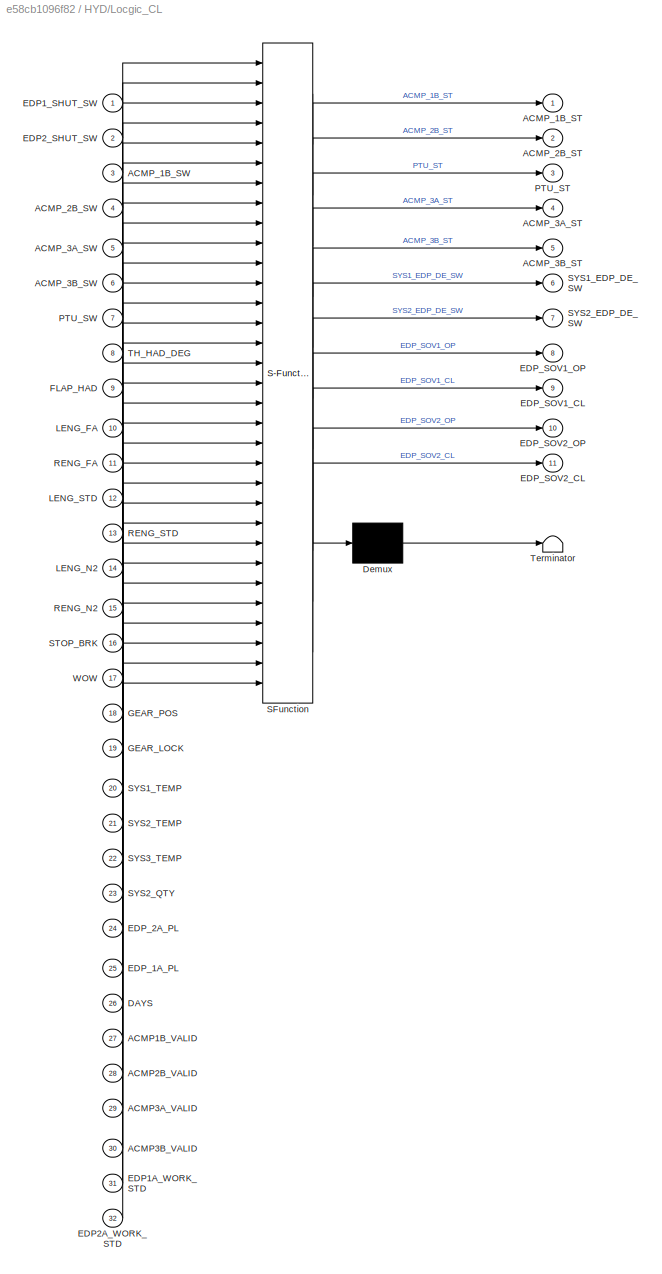
BLOCK [SubSystem] HYD/Locgic_CL
  ErrorFcn = Stateflow.Translate.translate
  PermitHierarchicalResolution = ExplicitOnly
  Ports = [32, 11]
  RequestExecContextInheritance = off
  SFBlockType = Chart
  TreatAsAtomicUnit = on
BLOCK [Demux] HYD/Locgic_CL/ Demux 
  Outputs = 1
  Ports = [1, 1]
BLOCK [S-Function] HYD/Locgic_CL/ SFunction 
  EnableBusSupport = on
  FunctionName = sf_sfun
  PortCounts = [32 12]
  Ports = [32, 12]
  SFcnIsStateOwnerBlock = off
  SFunctionDeploymentMode = off
  Tag = Stateflow S-Function HYD21 3
BLOCK [Terminator] HYD/Locgic_CL/ Terminator 
BLOCK [Inport] HYD/Locgic_CL/ACMP1B_VALID
  IconDisplay = Port number
  Port = 27
BLOCK [Inport] HYD/Locgic_CL/ACMP2B_VALID
  IconDisplay = Port number
  Port = 28
BLOCK [Inport] HYD/Locgic_CL/ACMP3A_VALID
  IconDisplay = Port number
  Port = 29
BLOCK [Inport] HYD/Locgic_CL/ACMP3B_VALID
  IconDisplay = Port number
  Port = 30
BLOCK [Outport] HYD/Locgic_CL/ACMP_1B_ST
  IconDisplay = Port number
BLOCK [Inport] HYD/Locgic_CL/ACMP_1B_SW
  IconDisplay = Port number
  Port = 3
BLOCK [Outport] HYD/Locgic_CL/ACMP_2B_ST
  IconDisplay = Port number
  Port = 2
BLOCK [Inport] HYD/Locgic_CL/ACMP_2B_SW
  IconDisplay = Port number
  Port = 4
BLOCK [Outport] HYD/Locgic_CL/ACMP_3A_ST
  IconDisplay = Port number
  Port = 4
BLOCK [Inport] HYD/Locgic_CL/ACMP_3A_SW
  IconDisplay = Port number
  Port = 5
BLOCK [Outport] HYD/Locgic_CL/ACMP_3B_ST
  IconDisplay = Port number
  Port = 5
BLOCK [Inport] HYD/Locgic_CL/ACMP_3B_SW
  IconDisplay = Port number
  Port = 6
BLOCK [Inport] HYD/Locgic_CL/DAYS
  IconDisplay = Port number
  Port = 26
BLOCK [Inport] HYD/Locgic_CL/EDP1A_WORK_STD
  IconDisplay = Port number
  Port = 31
BLOCK [Inport] HYD/Locgic_CL/EDP1_SHUT_SW
  IconDisplay = Port number
BLOCK [Inport] HYD/Locgic_CL/EDP2A_WORK_STD
  IconDisplay = Port number
  Port = 32
BLOCK [Inport] HYD/Locgic_CL/EDP2_SHUT_SW
  IconDisplay = Port number
  Port = 2
BLOCK [Inport] HYD/Locgic_CL/EDP_1A_PL
  IconDisplay = Port number
  Port = 25
BLOCK [Inport] HYD/Locgic_CL/EDP_2A_PL
  IconDisplay = Port number
  Port = 24
BLOCK [Outport] HYD/Locgic_CL/EDP_SOV1_CL
  IconDisplay = Port number
  Port = 9
BLOCK [Outport] HYD/Locgic_CL/EDP_SOV1_OP
  IconDisplay = Port number
  Port = 8
BLOCK [Outport] HYD/Locgic_CL/EDP_SOV2_CL
  IconDisplay = Port number
  Port = 11
BLOCK [Outport] HYD/Locgic_CL/EDP_SOV2_OP
  IconDisplay = Port number
  Port = 10
BLOCK [Inport] HYD/Locgic_CL/FLAP_HAD
  IconDisplay = Port number
  Port = 9
BLOCK [Inport] HYD/Locgic_CL/GEAR_LOCK
  IconDisplay = Port number
  Port = 19
BLOCK [Inport] HYD/Locgic_CL/GEAR_POS
  IconDisplay = Port number
  Port = 18
BLOCK [Inport] HYD/Locgic_CL/LENG_FA
  IconDisplay = Port number
  Port = 10
BLOCK [Inport] HYD/Locgic_CL/LENG_N2
  IconDisplay = Port number
  Port = 14
BLOCK [Inport] HYD/Locgic_CL/LENG_STD
  IconDisplay = Port number
  Port = 12
BLOCK [Outport] HYD/Locgic_CL/PTU_ST
  IconDisplay = Port number
  Port = 3
BLOCK [Inport] HYD/Locgic_CL/PTU_SW
  IconDisplay = Port number
  Port = 7
BLOCK [Inport] HYD/Locgic_CL/RENG_FA
  IconDisplay = Port number
  Port = 11
BLOCK [Inport] HYD/Locgic_CL/RENG_N2
  IconDisplay = Port number
  Port = 15
BLOCK [Inport] HYD/Locgic_CL/RENG_STD
  IconDisplay = Port number
  Port = 13
BLOCK [Inport] HYD/Locgic_CL/STOP_BRK
  IconDisplay = Port number
  Port = 16
BLOCK [Outport] HYD/Locgic_CL/SYS1_EDP_DE_SW
  IconDisplay = Port number
  Port = 6
BLOCK [Inport] HYD/Locgic_CL/SYS1_TEMP
  IconDisplay = Port number
  Port = 20
BLOCK [Outport] HYD/Locgic_CL/SYS2_EDP_DE_SW
  IconDisplay = Port number
  Port = 7
BLOCK [Inport] HYD/Locgic_CL/SYS2_QTY
  IconDisplay = Port number
  Port = 23
BLOCK [Inport] HYD/Locgic_CL/SYS2_TEMP
  IconDisplay = Port number
  Port = 21
BLOCK [Inport] HYD/Locgic_CL/SYS3_TEMP
  IconDisplay = Port number
  Port = 22
BLOCK [Inport] HYD/Locgic_CL/TH_HAD_DEG
  IconDisplay = Port number
  Port = 8
BLOCK [Inport] HYD/Locgic_CL/WOW
  IconDisplay = Port number
  Port = 17
BLOCK [Memory] HYD/Memory
BLOCK [Memory] HYD/Memory1
BLOCK [Memory] HYD/Memory2
BLOCK [Memory] HYD/Memory3
BLOCK [Memory] HYD/Memory4
BLOCK [Memory] HYD/Memory5
BLOCK [Memory] HYD/Memory6
BLOCK [Inport] HYD/PANEL_INPUT
  IconDisplay = Port number
  OutDataTypeStr = Bus: HYD_PANEL_INPUT
BLOCK [Inport] HYD/POWER_INPUT
  IconDisplay = Port number
  OutDataTypeStr = Bus: HYD_POWER_INPUT
  Port = 4
BLOCK [Constant] HYD/SYS1_TEMP_NORM
BLOCK [Constant] HYD/SYS2_TEMP_NORM
BLOCK [Constant] HYD/SYS3_TEMP_NORM
BLOCK [Outport] HYD_ANALOG_OUPUT
  IconDisplay = Port number
  OutDataTypeStr = Bus: HYD_ANALOG_OUPUT
  Port = 2
BLOCK [Outport] HYD_DISC_OUPUT
  IconDisplay = Port number
  OutDataTypeStr = Bus: HYD_DISC_OUTPUT
BLOCK [Inport] HYD_JYZ_INPUT
  IconDisplay = Port number
  OutDataTypeStr = Bus: HYD_JYZ_INPUT
  Port = 6
BLOCK [Outport] HYD_LOGIC_OUPUT
  IconDisplay = Port number
  OutDataTypeStr = Bus: HYD_LOGIC_OUPUT
  Port = 3
BLOCK [Inport] LANDGEAR_INPUT
  IconDisplay = Port number
  OutDataTypeStr = Bus: HYD_LANDGEAR_INPUT
  Port = 3
BLOCK [Reference] Model Info1  REF=simulink/Model-Wide
Utilities/Model Info
  Ports = []
  SourceBlock = simulink/Model-Wide\nUtilities/Model Info
  SourceProductBaseCode = SL
  SourceProductName = Simulink
  SourceType = CMBlock
BLOCK [Inport] PANEL_INPUT
  IconDisplay = Port number
  OutDataTypeStr = Bus: HYD_PANEL_INPUT
BLOCK [Inport] POWER_INPUT
  IconDisplay = Port number
  OutDataTypeStr = Bus: HYD_POWER_INPUT
  Port = 4
BLOCK [Scope] Scope
  Floating = off
  IOType = viewer
  NumInputPorts = 1
  Ports = []
  ScopeSpecificationString = Simulink.scopes.TimeScopeBlockCfg('CurrentConfiguration', extmgr.ConfigurationSet(extmgr.Configuration('Core','General UI',true),extmgr.Configuration('Core','Source UI',true),extmgr.Configuration('Sources','WiredSimulink',true),extmgr.Configuration('Visuals','Time Domain',true,'SerializedDisplays',{struct('MinYLimReal','-1.00000','MaxYLimReal','1.00000','YLabelReal','','MinYLimMag','0.00000','MaxY...<+1384ch>
BLOCK [Scope] Scope1
  Floating = off
  IOType = viewer
  NumInputPorts = 1
  Ports = []
  ScopeSpecificationString = Simulink.scopes.TimeScopeBlockCfg('CurrentConfiguration', extmgr.ConfigurationSet(extmgr.Configuration('Core','General UI',true),extmgr.Configuration('Core','Source UI',true),extmgr.Configuration('Sources','WiredSimulink',true,'DataLoggingVariableName','ScopeData1'),extmgr.Configuration('Visuals','Time Domain',true,'SerializedDisplays',{struct('MinYLimReal','-52.35988','MaxYLimReal','471.2389','YL...<+1365ch>
BLOCK [Scope] Scope2
  Floating = off
  IOType = viewer
  NumInputPorts = 1
  Ports = []
  ScopeSpecificationString = Simulink.scopes.TimeScopeBlockCfg('CurrentConfiguration', extmgr.ConfigurationSet(extmgr.Configuration('Core','General UI',true),extmgr.Configuration('Core','Source UI',true),extmgr.Configuration('Sources','WiredSimulink',true,'DataLoggingVariableName','ScopeData1'),extmgr.Configuration('Visuals','Time Domain',true,'SerializedDisplays',{struct('MinYLimReal','0.02482','MaxYLimReal','0.27608','YLabe...<+1386ch>
BLOCK [Scope] Scope3
  Floating = off
  IOType = viewer
  NumInputPorts = 1
  Ports = []
  ScopeSpecificationString = Simulink.scopes.TimeScopeBlockCfg('CurrentConfiguration', extmgr.ConfigurationSet(extmgr.Configuration('Core','General UI',true),extmgr.Configuration('Core','Source UI',true),extmgr.Configuration('Sources','WiredSimulink',true,'DataLoggingVariableName','ScopeData1'),extmgr.Configuration('Visuals','Time Domain',true,'SerializedDisplays',{struct('MinYLimReal','28.19731','MaxYLimReal','48.19731','YLa...<+1394ch>
BLOCK [Scope] Scope4
  Floating = off
  IOType = viewer
  NumInputPorts = 1
  Ports = []
  ScopeSpecificationString = Simulink.scopes.TimeScopeBlockCfg('CurrentConfiguration', extmgr.ConfigurationSet(extmgr.Configuration('Core','General UI',true),extmgr.Configuration('Core','Source UI',true),extmgr.Configuration('Sources','WiredSimulink',true,'DataLoggingVariableName','ScopeData2'),extmgr.Configuration('Visuals','Time Domain',true,'SerializedDisplays',{struct('MinYLimReal','2115.79855','MaxYLimReal','4115.79855',...<+1418ch>
BLOCK [Scope] Scope5
  Floating = off
  IOType = viewer
  NumInputPorts = 1
  Ports = []
  ScopeSpecificationString = Simulink.scopes.TimeScopeBlockCfg('CurrentConfiguration', extmgr.ConfigurationSet(extmgr.Configuration('Core','General UI',true),extmgr.Configuration('Core','Source UI',true),extmgr.Configuration('Sources','WiredSimulink',true,'DataLoggingVariableName','ScopeData1'),extmgr.Configuration('Visuals','Time Domain',true,'SerializedDisplays',{struct('MinYLimReal','0.009','MaxYLimReal','0.011','YLabelRea...<+1374ch>
BLOCK [Scope] Scope6
  Floating = off
  IOType = viewer
  NumInputPorts = 1
  Ports = []
  ScopeSpecificationString = Simulink.scopes.TimeScopeBlockCfg('CurrentConfiguration', extmgr.ConfigurationSet(extmgr.Configuration('Core','General UI',true),extmgr.Configuration('Core','Source UI',true),extmgr.Configuration('Sources','WiredSimulink',true,'DataLoggingVariableName','ScopeData2'),extmgr.Configuration('Visuals','Time Domain',true,'SerializedDisplays',{struct('MinYLimReal','-0.00006','MaxYLimReal','0.00056','YLab...<+1388ch>
BLOCK [Scope] Scope7
  Floating = off
  IOType = viewer
  NumInputPorts = 1
  Ports = []
  ScopeSpecificationString = Simulink.scopes.TimeScopeBlockCfg('CurrentConfiguration', extmgr.ConfigurationSet(extmgr.Configuration('Core','General UI',true),extmgr.Configuration('Core','Source UI',true),extmgr.Configuration('Sources','WiredSimulink',true,'DataLoggingVariableName','ScopeData1'),extmgr.Configuration('Visuals','Time Domain',true,'SerializedDisplays',{struct('MinYLimReal','45.05367','MaxYLimReal','245.05367','YL...<+1401ch>
ANNOTATION (root): ARJ21液压系统模型
LINE DAYS:1 -> HYD:5
LINE ENG_INPUT:1 -> HYD:2
LINE HYD/ACMP_1B_CTACL:1 -> HYD/Data Type Conversion4:1
LINE HYD/ACMP_2B_CTACL:1 -> HYD/Data Type Conversion9:1
LINE HYD/ACMP_3A_CTACL:1 -> HYD/Data Type Conversion12:1
LINE HYD/ACMP_3B_CTACL:1 -> HYD/Data Type Conversion15:1
LINE HYD/Bus Creator1:1 -> HYD/HYD_ANALOG_OUPUT:1
LINE HYD/Bus Creator2:1 -> HYD/HYD_LOGIC_OUPUT:1
LINE HYD/Bus Creator:1 -> HYD/HYD_DISC_OUPUT:1
LINE HYD/Bus Selector1:1 -> HYD/Locgic_CL:10
LINE HYD/Bus Selector1:2 -> HYD/Locgic_CL:11
LINE HYD/Bus Selector1:3 -> HYD/Locgic_CL:12
LINE HYD/Bus Selector1:4 -> HYD/Locgic_CL:13
NET HYD/Bus Selector1:5 -> HYD/HYD_PWR_SYS:28, HYD/Locgic_CL:14
NET HYD/Bus Selector1:6 -> HYD/HYD_PWR_SYS:29, HYD/Locgic_CL:15
LINE HYD/Bus Selector2:1 -> HYD/Locgic_CL:16
LINE HYD/Bus Selector2:2 -> HYD/Locgic_CL:17
LINE HYD/Bus Selector2:3 -> HYD/Locgic_CL:18
LINE HYD/Bus Selector2:4 -> HYD/Locgic_CL:19
LINE HYD/Bus Selector3:1 -> HYD/HYD_PWR_SYS:14
LINE HYD/Bus Selector3:10 -> HYD/HYD_PWR_SYS:23
LINE HYD/Bus Selector3:11 -> HYD/HYD_PWR_SYS:24
LINE HYD/Bus Selector3:12 -> HYD/HYD_PWR_SYS:25
NET HYD/Bus Selector3:13 -> HYD/Goto18:1, HYD/HYD_PWR_SYS:26
LINE HYD/Bus Selector3:14 -> HYD/Goto19:1
NET HYD/Bus Selector3:15 -> HYD/Goto27:1, HYD/HYD_PWR_SYS:27
LINE HYD/Bus Selector3:16 -> HYD/Goto30:1
LINE HYD/Bus Selector3:17 -> HYD/Goto31:1
LINE HYD/Bus Selector3:18 -> HYD/Goto32:1
LINE HYD/Bus Selector3:2 -> HYD/HYD_PWR_SYS:15
LINE HYD/Bus Selector3:3 -> HYD/HYD_PWR_SYS:16
LINE HYD/Bus Selector3:4 -> HYD/HYD_PWR_SYS:17
LINE HYD/Bus Selector3:5 -> HYD/HYD_PWR_SYS:18
LINE HYD/Bus Selector3:6 -> HYD/HYD_PWR_SYS:19
LINE HYD/Bus Selector3:7 -> HYD/HYD_PWR_SYS:20
LINE HYD/Bus Selector3:8 -> HYD/HYD_PWR_SYS:21
LINE HYD/Bus Selector3:9 -> HYD/HYD_PWR_SYS:22
LINE HYD/Bus Selector4:1 -> HYD/HYD_PWR_SYS:8
LINE HYD/Bus Selector4:2 -> HYD/HYD_PWR_SYS:9
LINE HYD/Bus Selector4:3 -> HYD/HYD_PWR_SYS:10
LINE HYD/Bus Selector4:4 -> HYD/HYD_PWR_SYS:11
LINE HYD/Bus Selector4:5 -> HYD/HYD_PWR_SYS:12
LINE HYD/Bus Selector4:6 -> HYD/HYD_PWR_SYS:13
LINE HYD/Bus Selector:1 -> HYD/Locgic_CL:1
LINE HYD/Bus Selector:2 -> HYD/Locgic_CL:2
LINE HYD/Bus Selector:3 -> HYD/Locgic_CL:3
LINE HYD/Bus Selector:4 -> HYD/Locgic_CL:4
LINE HYD/Bus Selector:5 -> HYD/Locgic_CL:5
LINE HYD/Bus Selector:6 -> HYD/Locgic_CL:6
LINE HYD/Bus Selector:7 -> HYD/Locgic_CL:7
LINE HYD/Bus Selector:8 -> HYD/Locgic_CL:8
LINE HYD/Bus Selector:9 -> HYD/Locgic_CL:9
LINE HYD/DAYS:1 -> HYD/Locgic_CL:26
LINE HYD/Data Type Conversion10:1 -> HYD/Bus Creator:11
LINE HYD/Data Type Conversion11:1 -> HYD/Bus Creator:12
LINE HYD/Data Type Conversion12:1 -> HYD/Bus Creator:13
LINE HYD/Data Type Conversion13:1 -> HYD/Bus Creator:14
LINE HYD/Data Type Conversion14:1 -> HYD/Bus Creator:15
LINE HYD/Data Type Conversion15:1 -> HYD/Bus Creator:16
LINE HYD/Data Type Conversion16:1 -> HYD/Bus Creator:17
LINE HYD/Data Type Conversion17:1 -> HYD/Bus Creator:18
LINE HYD/Data Type Conversion18:1 -> HYD/Bus Creator:19
LINE HYD/Data Type Conversion19:1 -> HYD/Bus Creator:20
LINE HYD/Data Type Conversion1:1 -> HYD/Bus Creator:2
LINE HYD/Data Type Conversion20:1 -> HYD/Bus Creator:21
LINE HYD/Data Type Conversion21:1 -> HYD/Bus Creator:22
LINE HYD/Data Type Conversion22:1 -> HYD/Bus Creator:23
LINE HYD/Data Type Conversion23:1 -> HYD/Bus Creator:24
LINE HYD/Data Type Conversion24:1 -> HYD/Bus Creator:25
LINE HYD/Data Type Conversion25:1 -> HYD/Bus Creator2:1
LINE HYD/Data Type Conversion26:1 -> HYD/Bus Creator2:2
LINE HYD/Data Type Conversion27:1 -> HYD/Bus Creator2:3
LINE HYD/Data Type Conversion28:1 -> HYD/Bus Creator2:4
LINE HYD/Data Type Conversion29:1 -> HYD/Bus Creator2:5
LINE HYD/Data Type Conversion2:1 -> HYD/Bus Creator:3
LINE HYD/Data Type Conversion30:1 -> HYD/Bus Creator2:6
LINE HYD/Data Type Conversion31:1 -> HYD/Bus Creator2:7
LINE HYD/Data Type Conversion3:1 -> HYD/Bus Creator:4
LINE HYD/Data Type Conversion4:1 -> HYD/Bus Creator:5
LINE HYD/Data Type Conversion5:1 -> HYD/Bus Creator:6
LINE HYD/Data Type Conversion6:1 -> HYD/Bus Creator:7
LINE HYD/Data Type Conversion7:1 -> HYD/Bus Creator:8
LINE HYD/Data Type Conversion8:1 -> HYD/Bus Creator:9
LINE HYD/Data Type Conversion9:1 -> HYD/Bus Creator:10
LINE HYD/Data Type Conversion:1 -> HYD/Bus Creator:1
LINE HYD/ENG_INPUT:1 -> HYD/Bus Selector1:1
LINE HYD/From10:1 -> HYD/Locgic_CL:25
LINE HYD/From11:1 -> HYD/Locgic_CL:24
LINE HYD/From12:1 -> HYD/Data Type Conversion5:1
LINE HYD/From13:1 -> HYD/Data Type Conversion6:1
LINE HYD/From14:1 -> HYD/Data Type Conversion7:1
LINE HYD/From15:1 -> HYD/Data Type Conversion8:1
LINE HYD/From16:1 -> HYD/Bus Creator1:6
LINE HYD/From17:1 -> HYD/Bus Creator1:1
LINE HYD/From18:1 -> HYD/Bus Creator1:4
LINE HYD/From19:1 -> HYD/Bus Creator1:8
LINE HYD/From1:1 -> HYD/Data Type Conversion1:1
LINE HYD/From20:1 -> HYD/Bus Creator1:2
LINE HYD/From21:1 -> HYD/Data Type Conversion10:1
LINE HYD/From22:1 -> HYD/Data Type Conversion11:1
LINE HYD/From23:1 -> HYD/Data Type Conversion13:1
LINE HYD/From24:1 -> HYD/Data Type Conversion14:1
LINE HYD/From25:1 -> HYD/Bus Creator1:5
LINE HYD/From26:1 -> HYD/Bus Creator1:7
LINE HYD/From27:1 -> HYD/Data Type Conversion18:1
LINE HYD/From28:1 -> HYD/Data Type Conversion19:1
LINE HYD/From29:1 -> HYD/Data Type Conversion20:1
LINE HYD/From2:1 -> HYD/Bus Creator1:9
LINE HYD/From30:1 -> HYD/Data Type Conversion21:1
LINE HYD/From31:1 -> HYD/Data Type Conversion25:1
LINE HYD/From32:1 -> HYD/Data Type Conversion26:1
LINE HYD/From33:1 -> HYD/Data Type Conversion27:1
LINE HYD/From34:1 -> HYD/Data Type Conversion29:1
LINE HYD/From35:1 -> HYD/Data Type Conversion28:1
LINE HYD/From36:1 -> HYD/Data Type Conversion30:1
LINE HYD/From37:1 -> HYD/Data Type Conversion31:1
LINE HYD/From38:1 -> HYD/Data Type Conversion17:1
LINE HYD/From39:1 -> HYD/Data Type Conversion16:1
LINE HYD/From3:1 -> HYD/Bus Creator1:3
LINE HYD/From40:1 -> HYD/Locgic_CL:31
LINE HYD/From41:1 -> HYD/Locgic_CL:32
LINE HYD/From42:1 -> HYD/Locgic_CL:27
LINE HYD/From43:1 -> HYD/Locgic_CL:28
LINE HYD/From44:1 -> HYD/Locgic_CL:29
LINE HYD/From45:1 -> HYD/Locgic_CL:30
LINE HYD/From4:1 -> HYD/Data Type Conversion2:1
LINE HYD/From5:1 -> HYD/Data Type Conversion3:1
LINE HYD/From6:1 -> HYD/Locgic_CL:22
LINE HYD/From7:1 -> HYD/Locgic_CL:20
LINE HYD/From8:1 -> HYD/Locgic_CL:21
LINE HYD/From9:1 -> HYD/Locgic_CL:23
LINE HYD/From:1 -> HYD/Data Type Conversion:1
LINE HYD/HYD_JYZ_INPUT:1 -> HYD/Bus Selector3:1
LINE HYD/HYD_PWR_SYS/ACMP1B_PRE_STD:1 -> HYD/HYD_PWR_SYS/SYS1:7
LINE HYD/HYD_PWR_SYS/ACMP2B_PRE_STD:1 -> HYD/HYD_PWR_SYS/SYS2:7
LINE HYD/HYD_PWR_SYS/ACMP3A_PRE_STD:1 -> HYD/HYD_PWR_SYS/SYS3:5
LINE HYD/HYD_PWR_SYS/ACMP3B_PRE_STD:1 -> HYD/HYD_PWR_SYS/SYS3:7
LINE HYD/HYD_PWR_SYS/ACMP_1B_State:1 -> HYD/HYD_PWR_SYS/SYS1:2
LINE HYD/HYD_PWR_SYS/ACMP_2B_State:1 -> HYD/HYD_PWR_SYS/SYS2:2
LINE HYD/HYD_PWR_SYS/ACMP_3A_State:1 -> HYD/HYD_PWR_SYS/SYS3:1
LINE HYD/HYD_PWR_SYS/ACMP_3B_State:1 -> HYD/HYD_PWR_SYS/SYS3:2
LINE HYD/HYD_PWR_SYS/AC_ESS3_BUS:1 -> HYD/HYD_PWR_SYS/SYS3:3
LINE HYD/HYD_PWR_SYS/EDP1A_DE_SW:1 -> HYD/HYD_PWR_SYS/SYS1:5
LINE HYD/HYD_PWR_SYS/EDP1A_PRE_STD:1 -> HYD/HYD_PWR_SYS/SYS1:6
LINE HYD/HYD_PWR_SYS/EDP1A_WORK_STD:1 -> HYD/HYD_PWR_SYS/SYS1:10
LINE HYD/HYD_PWR_SYS/EDP2A_DE_SW:1 -> HYD/HYD_PWR_SYS/SYS2:5
LINE HYD/HYD_PWR_SYS/EDP2A_PRE_STD:1 -> HYD/HYD_PWR_SYS/SYS2:6
LINE HYD/HYD_PWR_SYS/EDP2A_WORK_STD:1 -> HYD/HYD_PWR_SYS/SYS2:10
LINE HYD/HYD_PWR_SYS/LENG_N2:1 -> HYD/HYD_PWR_SYS/SYS1:1
LINE HYD/HYD_PWR_SYS/L_AC_BUS:1 -> HYD/HYD_PWR_SYS/SYS2:3
LINE HYD/HYD_PWR_SYS/L_DC_BUS:1 -> HYD/HYD_PWR_SYS/PTU:3
LINE HYD/HYD_PWR_SYS/L_DC_ESS_BUS1:1 -> HYD/HYD_PWR_SYS/SYS3:4
LINE HYD/HYD_PWR_SYS/L_DC_ESS_BUS:1 -> HYD/HYD_PWR_SYS/SYS2:4
LINE HYD/HYD_PWR_SYS/PTU/Compare To Constant:1 -> HYD/HYD_PWR_SYS/PTU/HYD2_PRESS_State:1
LINE HYD/HYD_PWR_SYS/PTU/L_DC_BUS:1 -> HYD/HYD_PWR_SYS/PTU/Logical Operator:2
LINE HYD/HYD_PWR_SYS/PTU/Logical Operator:1 -> HYD/HYD_PWR_SYS/PTU/Switch1:2
NET HYD/HYD_PWR_SYS/PTU/PRE_SWITCH/Constant1:1 -> HYD/HYD_PWR_SYS/PTU/PRE_SWITCH/Switch1:1, HYD/HYD_PWR_SYS/PTU/PRE_SWITCH/Switch:3
LINE HYD/HYD_PWR_SYS/PTU/PRE_SWITCH/Constant2:1 -> HYD/HYD_PWR_SYS/PTU/PRE_SWITCH/Switch1:3
LINE HYD/HYD_PWR_SYS/PTU/PRE_SWITCH/Constant:1 -> HYD/HYD_PWR_SYS/PTU/PRE_SWITCH/Switch:1
NET HYD/HYD_PWR_SYS/PTU/PRE_SWITCH/PRE:1 -> HYD/HYD_PWR_SYS/PTU/PRE_SWITCH/Switch1:2, HYD/HYD_PWR_SYS/PTU/PRE_SWITCH/Switch:2
LINE HYD/HYD_PWR_SYS/PTU/PRE_SWITCH/Switch1:1 -> HYD/HYD_PWR_SYS/PTU/PRE_SWITCH/PL:1
LINE HYD/HYD_PWR_SYS/PTU/PRE_SWITCH/Switch:1 -> HYD/HYD_PWR_SYS/PTU/PRE_SWITCH/PH:1
LINE HYD/HYD_PWR_SYS/PTU/PRE_SWITCH:1 -> HYD/HYD_PWR_SYS/PTU/PTU_PH:1
LINE HYD/HYD_PWR_SYS/PTU/PRE_SWITCH:2 -> HYD/HYD_PWR_SYS/PTU/PTU_PL:1
LINE HYD/HYD_PWR_SYS/PTU/PTU_SOV_State:1 -> HYD/HYD_PWR_SYS/PTU/Logical Operator:1
LINE HYD/HYD_PWR_SYS/PTU/SYS1_PRESS:1 -> HYD/HYD_PWR_SYS/PTU/Switch1:1
LINE HYD/HYD_PWR_SYS/PTU/SYS2_PRESS:1 -> HYD/HYD_PWR_SYS/PTU/Switch1:3
NET HYD/HYD_PWR_SYS/PTU/Switch1:1 -> HYD/HYD_PWR_SYS/PTU/Compare To Constant:1, HYD/HYD_PWR_SYS/PTU/PRESS:1, HYD/HYD_PWR_SYS/PTU/PRE_SWITCH:1
LINE HYD/HYD_PWR_SYS/PTU:1 -> HYD/HYD_PWR_SYS/SYS2_PRESS:1
LINE HYD/HYD_PWR_SYS/PTU:2 -> HYD/HYD_PWR_SYS/PTU_PH:1
LINE HYD/HYD_PWR_SYS/PTU:3 -> HYD/HYD_PWR_SYS/PTU_PL:1
LINE HYD/HYD_PWR_SYS/PTU_SOV_State:1 -> HYD/HYD_PWR_SYS/PTU:2
LINE HYD/HYD_PWR_SYS/RENG_N2:1 -> HYD/HYD_PWR_SYS/SYS2:1
LINE HYD/HYD_PWR_SYS/R_AC_BUS:1 -> HYD/HYD_PWR_SYS/SYS1:3
LINE HYD/HYD_PWR_SYS/R_DC_ESS_BUS1:1 -> HYD/HYD_PWR_SYS/SYS3:6
LINE HYD/HYD_PWR_SYS/R_DC_ESS_BUS:1 -> HYD/HYD_PWR_SYS/SYS1:4
LINE HYD/HYD_PWR_SYS/SYS1/ACMP1B_PRE_STD:1 -> HYD/HYD_PWR_SYS/SYS1/ACMP_1B:3
LINE HYD/HYD_PWR_SYS/SYS1/ACMP_1B/ACMP1B_PRE_STD:1 -> HYD/HYD_PWR_SYS/SYS1/ACMP_1B/Add:1
NET HYD/HYD_PWR_SYS/SYS1/ACMP_1B/ACMP_1B_State:1 -> HYD/HYD_PWR_SYS/SYS1/ACMP_1B/Compare To Constant1:1, HYD/HYD_PWR_SYS/SYS1/ACMP_1B/Compare To Constant:1
LINE HYD/HYD_PWR_SYS/SYS1/ACMP_1B/ACMP_LOOKUP:1 -> HYD/HYD_PWR_SYS/SYS1/ACMP_1B/Multiport Switch:2
LINE HYD/HYD_PWR_SYS/SYS1/ACMP_1B/Add:1 -> HYD/HYD_PWR_SYS/SYS1/ACMP_1B/Multiport Switch:1
LINE HYD/HYD_PWR_SYS/SYS1/ACMP_1B/Compare To Constant1:1 -> HYD/HYD_PWR_SYS/SYS1/ACMP_1B/Switch:2
LINE HYD/HYD_PWR_SYS/SYS1/ACMP_1B/Compare To Constant:1 -> HYD/HYD_PWR_SYS/SYS1/ACMP_1B/Logical Operator:2
LINE HYD/HYD_PWR_SYS/SYS1/ACMP_1B/Constant:1 -> HYD/HYD_PWR_SYS/SYS1/ACMP_1B/Add:2
LINE HYD/HYD_PWR_SYS/SYS1/ACMP_1B/Gain1:1 -> HYD/HYD_PWR_SYS/SYS1/ACMP_1B/Saturation1:1
LINE HYD/HYD_PWR_SYS/SYS1/ACMP_1B/Gain2:1 -> HYD/HYD_PWR_SYS/SYS1/ACMP_1B/Saturation2:1
LINE HYD/HYD_PWR_SYS/SYS1/ACMP_1B/Logical Operator:1 -> HYD/HYD_PWR_SYS/SYS1/ACMP_1B/Switch4:2
NET HYD/HYD_PWR_SYS/SYS1/ACMP_1B/Memory:1 -> HYD/HYD_PWR_SYS/SYS1/ACMP_1B/Gain1:1, HYD/HYD_PWR_SYS/SYS1/ACMP_1B/Gain2:1
LINE HYD/HYD_PWR_SYS/SYS1/ACMP_1B/Multiport Switch:1 -> HYD/HYD_PWR_SYS/SYS1/ACMP_1B/Saturation3:1
LINE HYD/HYD_PWR_SYS/SYS1/ACMP_1B/RPM1:1 -> HYD/HYD_PWR_SYS/SYS1/ACMP_1B/Switch4:3
LINE HYD/HYD_PWR_SYS/SYS1/ACMP_1B/RPM2:1 -> HYD/HYD_PWR_SYS/SYS1/ACMP_1B/Switch:1
LINE HYD/HYD_PWR_SYS/SYS1/ACMP_1B/RPM:1 -> HYD/HYD_PWR_SYS/SYS1/ACMP_1B/Switch4:1
LINE HYD/HYD_PWR_SYS/SYS1/ACMP_1B/R_AC_BUS:1 -> HYD/HYD_PWR_SYS/SYS1/ACMP_1B/Logical Operator:1
LINE HYD/HYD_PWR_SYS/SYS1/ACMP_1B/Saturation1:1 -> HYD/HYD_PWR_SYS/SYS1/ACMP_1B/Multiport Switch:3
LINE HYD/HYD_PWR_SYS/SYS1/ACMP_1B/Saturation2:1 -> HYD/HYD_PWR_SYS/SYS1/ACMP_1B/Multiport Switch:4
NET HYD/HYD_PWR_SYS/SYS1/ACMP_1B/Saturation3:1 -> HYD/HYD_PWR_SYS/SYS1/ACMP_1B/Memory:1, HYD/HYD_PWR_SYS/SYS1/ACMP_1B/Switch:3
LINE HYD/HYD_PWR_SYS/SYS1/ACMP_1B/Switch4:1 -> HYD/HYD_PWR_SYS/SYS1/ACMP_1B/ACMP_LOOKUP:1
LINE HYD/HYD_PWR_SYS/SYS1/ACMP_1B/Switch:1 -> HYD/HYD_PWR_SYS/SYS1/ACMP_1B/PRE:1
NET HYD/HYD_PWR_SYS/SYS1/ACMP_1B:1 -> HYD/HYD_PWR_SYS/SYS1/PRE_SWITCH1:1, HYD/HYD_PWR_SYS/SYS1/Switch1:3
NET HYD/HYD_PWR_SYS/SYS1/ACMP_1B_State:1 -> HYD/HYD_PWR_SYS/SYS1/ACMP_1B:1, HYD/HYD_PWR_SYS/SYS1/Logical Operator:1, HYD/HYD_PWR_SYS/SYS1/PRE_SWITCH1:2
LINE HYD/HYD_PWR_SYS/SYS1/Compare To Constant1:1 -> HYD/HYD_PWR_SYS/SYS1/Logical Operator1:1
LINE HYD/HYD_PWR_SYS/SYS1/Compare To Constant:1 -> HYD/HYD_PWR_SYS/SYS1/HYD1_PRESS_State:1
LINE HYD/HYD_PWR_SYS/SYS1/EDP1A_DE_SW:1 -> HYD/HYD_PWR_SYS/SYS1/EDP_1A:3
LINE HYD/HYD_PWR_SYS/SYS1/EDP1A_PRE_STD:1 -> HYD/HYD_PWR_SYS/SYS1/EDP_1A:4
LINE HYD/HYD_PWR_SYS/SYS1/EDP1A_WORK_STD:1 -> HYD/HYD_PWR_SYS/SYS1/EDP_1A:5
LINE HYD/HYD_PWR_SYS/SYS1/EDP_1A/Add:1 -> HYD/HYD_PWR_SYS/SYS1/EDP_1A/Multiport Switch:1
LINE HYD/HYD_PWR_SYS/SYS1/EDP_1A/Compare To Constant:1 -> HYD/HYD_PWR_SYS/SYS1/EDP_1A/Switch1:2
LINE HYD/HYD_PWR_SYS/SYS1/EDP_1A/Constant1:1 -> HYD/HYD_PWR_SYS/SYS1/EDP_1A/Switch1:1
LINE HYD/HYD_PWR_SYS/SYS1/EDP_1A/Constant:1 -> HYD/HYD_PWR_SYS/SYS1/EDP_1A/Add:2
LINE HYD/HYD_PWR_SYS/SYS1/EDP_1A/EDP1A_DE_SW:1 -> HYD/HYD_PWR_SYS/SYS1/EDP_1A/Logical Operator:2
LINE HYD/HYD_PWR_SYS/SYS1/EDP_1A/EDP1A_PRE_STD:1 -> HYD/HYD_PWR_SYS/SYS1/EDP_1A/Add:1
LINE HYD/HYD_PWR_SYS/SYS1/EDP_1A/EDP1A_WORK_STD:1 -> HYD/HYD_PWR_SYS/SYS1/EDP_1A/Compare To Constant:1
LINE HYD/HYD_PWR_SYS/SYS1/EDP_1A/EDP_LOOKUP:1 -> HYD/HYD_PWR_SYS/SYS1/EDP_1A/Switch:3
LINE HYD/HYD_PWR_SYS/SYS1/EDP_1A/Gain1:1 -> HYD/HYD_PWR_SYS/SYS1/EDP_1A/Saturation1:1
LINE HYD/HYD_PWR_SYS/SYS1/EDP_1A/Gain2:1 -> HYD/HYD_PWR_SYS/SYS1/EDP_1A/Saturation2:1
LINE HYD/HYD_PWR_SYS/SYS1/EDP_1A/Gain:1 -> HYD/HYD_PWR_SYS/SYS1/EDP_1A/Saturation:1
LINE HYD/HYD_PWR_SYS/SYS1/EDP_1A/Logical Operator:1 -> HYD/HYD_PWR_SYS/SYS1/EDP_1A/Switch:2
LINE HYD/HYD_PWR_SYS/SYS1/EDP_1A/Memory1:1 -> HYD/HYD_PWR_SYS/SYS1/EDP_1A/Gain:1
NET HYD/HYD_PWR_SYS/SYS1/EDP_1A/Memory:1 -> HYD/HYD_PWR_SYS/SYS1/EDP_1A/Gain1:1, HYD/HYD_PWR_SYS/SYS1/EDP_1A/Gain2:1
NET HYD/HYD_PWR_SYS/SYS1/EDP_1A/Multiport Switch:1 -> HYD/HYD_PWR_SYS/SYS1/EDP_1A/Memory:1, HYD/HYD_PWR_SYS/SYS1/EDP_1A/Switch1:3
LINE HYD/HYD_PWR_SYS/SYS1/EDP_1A/N2:1 -> HYD/HYD_PWR_SYS/SYS1/EDP_1A/EDP_LOOKUP:1
LINE HYD/HYD_PWR_SYS/SYS1/EDP_1A/R_DC_ESS_BUS:1 -> HYD/HYD_PWR_SYS/SYS1/EDP_1A/Logical Operator:1
LINE HYD/HYD_PWR_SYS/SYS1/EDP_1A/Saturation1:1 -> HYD/HYD_PWR_SYS/SYS1/EDP_1A/Multiport Switch:3
LINE HYD/HYD_PWR_SYS/SYS1/EDP_1A/Saturation2:1 -> HYD/HYD_PWR_SYS/SYS1/EDP_1A/Multiport Switch:4
NET HYD/HYD_PWR_SYS/SYS1/EDP_1A/Saturation3:1 -> HYD/HYD_PWR_SYS/SYS1/EDP_1A/Memory1:1, HYD/HYD_PWR_SYS/SYS1/EDP_1A/Multiport Switch:2
LINE HYD/HYD_PWR_SYS/SYS1/EDP_1A/Saturation:1 -> HYD/HYD_PWR_SYS/SYS1/EDP_1A/Switch:1
LINE HYD/HYD_PWR_SYS/SYS1/EDP_1A/Switch1:1 -> HYD/HYD_PWR_SYS/SYS1/EDP_1A/PRE:1
LINE HYD/HYD_PWR_SYS/SYS1/EDP_1A/Switch:1 -> HYD/HYD_PWR_SYS/SYS1/EDP_1A/Saturation3:1
NET HYD/HYD_PWR_SYS/SYS1/EDP_1A:1 -> HYD/HYD_PWR_SYS/SYS1/Compare To Constant1:1, HYD/HYD_PWR_SYS/SYS1/PRE_SWITCH:1, HYD/HYD_PWR_SYS/SYS1/Switch1:1
LINE HYD/HYD_PWR_SYS/SYS1/LENG_N2:1 -> HYD/HYD_PWR_SYS/SYS1/EDP_1A:1
LINE HYD/HYD_PWR_SYS/SYS1/Logical Operator1:1 -> HYD/HYD_PWR_SYS/SYS1/Switch1:2
LINE HYD/HYD_PWR_SYS/SYS1/Logical Operator:1 -> HYD/HYD_PWR_SYS/SYS1/Logical Operator1:2
NET HYD/HYD_PWR_SYS/SYS1/PRE_SWITCH/Constant1:1 -> HYD/HYD_PWR_SYS/SYS1/PRE_SWITCH/Switch1:1, HYD/HYD_PWR_SYS/SYS1/PRE_SWITCH/Switch:3
LINE HYD/HYD_PWR_SYS/SYS1/PRE_SWITCH/Constant2:1 -> HYD/HYD_PWR_SYS/SYS1/PRE_SWITCH/Switch1:3
LINE HYD/HYD_PWR_SYS/SYS1/PRE_SWITCH/Constant:1 -> HYD/HYD_PWR_SYS/SYS1/PRE_SWITCH/Switch:1
NET HYD/HYD_PWR_SYS/SYS1/PRE_SWITCH/PRE:1 -> HYD/HYD_PWR_SYS/SYS1/PRE_SWITCH/Switch1:2, HYD/HYD_PWR_SYS/SYS1/PRE_SWITCH/Switch:2
LINE HYD/HYD_PWR_SYS/SYS1/PRE_SWITCH/Switch1:1 -> HYD/HYD_PWR_SYS/SYS1/PRE_SWITCH/PL:1
LINE HYD/HYD_PWR_SYS/SYS1/PRE_SWITCH/Switch:1 -> HYD/HYD_PWR_SYS/SYS1/PRE_SWITCH/PH:1
LINE HYD/HYD_PWR_SYS/SYS1/PRE_SWITCH1/ACMP_1B_State:1 -> HYD/HYD_PWR_SYS/SYS1/PRE_SWITCH1/Logical Operator:2
NET HYD/HYD_PWR_SYS/SYS1/PRE_SWITCH1/Constant1:1 -> HYD/HYD_PWR_SYS/SYS1/PRE_SWITCH1/Switch1:1, HYD/HYD_PWR_SYS/SYS1/PRE_SWITCH1/Switch:3
LINE HYD/HYD_PWR_SYS/SYS1/PRE_SWITCH1/Constant2:1 -> HYD/HYD_PWR_SYS/SYS1/PRE_SWITCH1/Logical Operator:1
LINE HYD/HYD_PWR_SYS/SYS1/PRE_SWITCH1/Constant:1 -> HYD/HYD_PWR_SYS/SYS1/PRE_SWITCH1/Switch:1
LINE HYD/HYD_PWR_SYS/SYS1/PRE_SWITCH1/Logical Operator:1 -> HYD/HYD_PWR_SYS/SYS1/PRE_SWITCH1/Switch1:3
NET HYD/HYD_PWR_SYS/SYS1/PRE_SWITCH1/PRE:1 -> HYD/HYD_PWR_SYS/SYS1/PRE_SWITCH1/Switch1:2, HYD/HYD_PWR_SYS/SYS1/PRE_SWITCH1/Switch:2
LINE HYD/HYD_PWR_SYS/SYS1/PRE_SWITCH1/Switch1:1 -> HYD/HYD_PWR_SYS/SYS1/PRE_SWITCH1/PL:1
LINE HYD/HYD_PWR_SYS/SYS1/PRE_SWITCH1/Switch:1 -> HYD/HYD_PWR_SYS/SYS1/PRE_SWITCH1/PH:1
LINE HYD/HYD_PWR_SYS/SYS1/PRE_SWITCH1:1 -> HYD/HYD_PWR_SYS/SYS1/ACMP_1B_PH:1
LINE HYD/HYD_PWR_SYS/SYS1/PRE_SWITCH1:2 -> HYD/HYD_PWR_SYS/SYS1/ACMP_1B_PL:1
LINE HYD/HYD_PWR_SYS/SYS1/PRE_SWITCH:1 -> HYD/HYD_PWR_SYS/SYS1/EDP_1A_PH:1
LINE HYD/HYD_PWR_SYS/SYS1/PRE_SWITCH:2 -> HYD/HYD_PWR_SYS/SYS1/EDP_1A_PL:1
LINE HYD/HYD_PWR_SYS/SYS1/QTY/Constant:1 -> HYD/HYD_PWR_SYS/SYS1/QTY/Switch:1
LINE HYD/HYD_PWR_SYS/SYS1/QTY/Gain:1 -> HYD/HYD_PWR_SYS/SYS1/QTY/Saturation:1
LINE HYD/HYD_PWR_SYS/SYS1/QTY/Logical Operator:1 -> HYD/HYD_PWR_SYS/SYS1/QTY/Switch:2
LINE HYD/HYD_PWR_SYS/SYS1/QTY/Memory:1 -> HYD/HYD_PWR_SYS/SYS1/QTY/Gain:1
NET HYD/HYD_PWR_SYS/SYS1/QTY/SYS1_TANK_STD:1 -> HYD/HYD_PWR_SYS/SYS1/QTY/HYD1_FUEL_QUALITY_State:1, HYD/HYD_PWR_SYS/SYS1/QTY/Logical Operator:1
LINE HYD/HYD_PWR_SYS/SYS1/QTY/Saturation:1 -> HYD/HYD_PWR_SYS/SYS1/QTY/Switch:3
NET HYD/HYD_PWR_SYS/SYS1/QTY/Switch:1 -> HYD/HYD_PWR_SYS/SYS1/QTY/Memory:1, HYD/HYD_PWR_SYS/SYS1/QTY/SYS1_QTY:1
LINE HYD/HYD_PWR_SYS/SYS1/QTY:1 -> HYD/HYD_PWR_SYS/SYS1/SYS1_QTY:1
LINE HYD/HYD_PWR_SYS/SYS1/QTY:2 -> HYD/HYD_PWR_SYS/SYS1/Terminator1:1
LINE HYD/HYD_PWR_SYS/SYS1/R_AC_BUS:1 -> HYD/HYD_PWR_SYS/SYS1/ACMP_1B:2
LINE HYD/HYD_PWR_SYS/SYS1/R_DC_ESS_BUS:1 -> HYD/HYD_PWR_SYS/SYS1/EDP_1A:2
LINE HYD/HYD_PWR_SYS/SYS1/SYS1_TANK_STD:1 -> HYD/HYD_PWR_SYS/SYS1/QTY:1
LINE HYD/HYD_PWR_SYS/SYS1/SYS1_TEMP_STD:1 -> HYD/HYD_PWR_SYS/SYS1/Temp:1
NET HYD/HYD_PWR_SYS/SYS1/Saturation2:1 -> HYD/HYD_PWR_SYS/SYS1/Compare To Constant:1, HYD/HYD_PWR_SYS/SYS1/SYS1_PRESS:1
LINE HYD/HYD_PWR_SYS/SYS1/Switch1:1 -> HYD/HYD_PWR_SYS/SYS1/Saturation2:1
LINE HYD/HYD_PWR_SYS/SYS1/Temp/Add:1 -> HYD/HYD_PWR_SYS/SYS1/Temp/Multiport Switch:1
LINE HYD/HYD_PWR_SYS/SYS1/Temp/Constant1:1 -> HYD/HYD_PWR_SYS/SYS1/Temp/Add:2
LINE HYD/HYD_PWR_SYS/SYS1/Temp/Constant:1 -> HYD/HYD_PWR_SYS/SYS1/Temp/Multiport Switch:2
LINE HYD/HYD_PWR_SYS/SYS1/Temp/Gain1:1 -> HYD/HYD_PWR_SYS/SYS1/Temp/Saturation1:1
LINE HYD/HYD_PWR_SYS/SYS1/Temp/Gain:1 -> HYD/HYD_PWR_SYS/SYS1/Temp/Saturation:1
NET HYD/HYD_PWR_SYS/SYS1/Temp/Memory:1 -> HYD/HYD_PWR_SYS/SYS1/Temp/Gain1:1, HYD/HYD_PWR_SYS/SYS1/Temp/Gain:1
NET HYD/HYD_PWR_SYS/SYS1/Temp/Multiport Switch:1 -> HYD/HYD_PWR_SYS/SYS1/Temp/Memory:1, HYD/HYD_PWR_SYS/SYS1/Temp/SYS1_TEMP:1
NET HYD/HYD_PWR_SYS/SYS1/Temp/SYS1_TEMP_STD:1 -> HYD/HYD_PWR_SYS/SYS1/Temp/Add:1, HYD/HYD_PWR_SYS/SYS1/Temp/HYD1_FUEL_TANK_TEMP_State :1
LINE HYD/HYD_PWR_SYS/SYS1/Temp/Saturation1:1 -> HYD/HYD_PWR_SYS/SYS1/Temp/Multiport Switch:4
LINE HYD/HYD_PWR_SYS/SYS1/Temp/Saturation:1 -> HYD/HYD_PWR_SYS/SYS1/Temp/Multiport Switch:3
LINE HYD/HYD_PWR_SYS/SYS1/Temp:1 -> HYD/HYD_PWR_SYS/SYS1/SYS1_TEMP:1
LINE HYD/HYD_PWR_SYS/SYS1/Temp:2 -> HYD/HYD_PWR_SYS/SYS1/Terminator:1
LINE HYD/HYD_PWR_SYS/SYS1:1 -> HYD/HYD_PWR_SYS/EDP_1A_PH:1
LINE HYD/HYD_PWR_SYS/SYS1:2 -> HYD/HYD_PWR_SYS/EDP_1A_PL:1
LINE HYD/HYD_PWR_SYS/SYS1:3 -> HYD/HYD_PWR_SYS/ACMP_1B_PH:1
LINE HYD/HYD_PWR_SYS/SYS1:4 -> HYD/HYD_PWR_SYS/ACMP_1B_PL:1
LINE HYD/HYD_PWR_SYS/SYS1:5 -> HYD/HYD_PWR_SYS/SYS1_QTY:1
LINE HYD/HYD_PWR_SYS/SYS1:6 -> HYD/HYD_PWR_SYS/SYS1_TEMP:1
NET HYD/HYD_PWR_SYS/SYS1:7 -> HYD/HYD_PWR_SYS/PTU:1, HYD/HYD_PWR_SYS/SYS1_PRESS:1
LINE HYD/HYD_PWR_SYS/SYS1_TANK_STD:1 -> HYD/HYD_PWR_SYS/SYS1:9
LINE HYD/HYD_PWR_SYS/SYS1_TEMP_STD:1 -> HYD/HYD_PWR_SYS/SYS1:8
LINE HYD/HYD_PWR_SYS/SYS2/ACMP2B_PRE_STD:1 -> HYD/HYD_PWR_SYS/SYS2/ACMP_2B:3
LINE HYD/HYD_PWR_SYS/SYS2/ACMP_2B/ACMP2B_PRE_STD:1 -> HYD/HYD_PWR_SYS/SYS2/ACMP_2B/Add:1
NET HYD/HYD_PWR_SYS/SYS2/ACMP_2B/ACMP_2B_CMD:1 -> HYD/HYD_PWR_SYS/SYS2/ACMP_2B/Compare To Constant1:1, HYD/HYD_PWR_SYS/SYS2/ACMP_2B/Compare To Constant2:1
LINE HYD/HYD_PWR_SYS/SYS2/ACMP_2B/ACMP_LOOKUP:1 -> HYD/HYD_PWR_SYS/SYS2/ACMP_2B/Multiport Switch:2
LINE HYD/HYD_PWR_SYS/SYS2/ACMP_2B/Add:1 -> HYD/HYD_PWR_SYS/SYS2/ACMP_2B/Multiport Switch:1
LINE HYD/HYD_PWR_SYS/SYS2/ACMP_2B/Compare To Constant1:1 -> HYD/HYD_PWR_SYS/SYS2/ACMP_2B/Switch:2
LINE HYD/HYD_PWR_SYS/SYS2/ACMP_2B/Compare To Constant2:1 -> HYD/HYD_PWR_SYS/SYS2/ACMP_2B/Logical Operator:2
LINE HYD/HYD_PWR_SYS/SYS2/ACMP_2B/Constant:1 -> HYD/HYD_PWR_SYS/SYS2/ACMP_2B/Add:2
LINE HYD/HYD_PWR_SYS/SYS2/ACMP_2B/Gain1:1 -> HYD/HYD_PWR_SYS/SYS2/ACMP_2B/Saturation1:1
LINE HYD/HYD_PWR_SYS/SYS2/ACMP_2B/Gain2:1 -> HYD/HYD_PWR_SYS/SYS2/ACMP_2B/Saturation2:1
LINE HYD/HYD_PWR_SYS/SYS2/ACMP_2B/L_AC_BUS:1 -> HYD/HYD_PWR_SYS/SYS2/ACMP_2B/Logical Operator:1
LINE HYD/HYD_PWR_SYS/SYS2/ACMP_2B/Logical Operator:1 -> HYD/HYD_PWR_SYS/SYS2/ACMP_2B/Switch4:2
NET HYD/HYD_PWR_SYS/SYS2/ACMP_2B/Memory:1 -> HYD/HYD_PWR_SYS/SYS2/ACMP_2B/Gain1:1, HYD/HYD_PWR_SYS/SYS2/ACMP_2B/Gain2:1
LINE HYD/HYD_PWR_SYS/SYS2/ACMP_2B/Multiport Switch:1 -> HYD/HYD_PWR_SYS/SYS2/ACMP_2B/Saturation3:1
LINE HYD/HYD_PWR_SYS/SYS2/ACMP_2B/RPM1:1 -> HYD/HYD_PWR_SYS/SYS2/ACMP_2B/Switch4:3
LINE HYD/HYD_PWR_SYS/SYS2/ACMP_2B/RPM2:1 -> HYD/HYD_PWR_SYS/SYS2/ACMP_2B/Switch:1
LINE HYD/HYD_PWR_SYS/SYS2/ACMP_2B/RPM:1 -> HYD/HYD_PWR_SYS/SYS2/ACMP_2B/Switch4:1
LINE HYD/HYD_PWR_SYS/SYS2/ACMP_2B/Saturation1:1 -> HYD/HYD_PWR_SYS/SYS2/ACMP_2B/Multiport Switch:3
LINE HYD/HYD_PWR_SYS/SYS2/ACMP_2B/Saturation2:1 -> HYD/HYD_PWR_SYS/SYS2/ACMP_2B/Multiport Switch:4
NET HYD/HYD_PWR_SYS/SYS2/ACMP_2B/Saturation3:1 -> HYD/HYD_PWR_SYS/SYS2/ACMP_2B/Memory:1, HYD/HYD_PWR_SYS/SYS2/ACMP_2B/Switch:3
LINE HYD/HYD_PWR_SYS/SYS2/ACMP_2B/Switch4:1 -> HYD/HYD_PWR_SYS/SYS2/ACMP_2B/ACMP_LOOKUP:1
LINE HYD/HYD_PWR_SYS/SYS2/ACMP_2B/Switch:1 -> HYD/HYD_PWR_SYS/SYS2/ACMP_2B/PRE:1
NET HYD/HYD_PWR_SYS/SYS2/ACMP_2B:1 -> HYD/HYD_PWR_SYS/SYS2/PRE_SWITCH1:1, HYD/HYD_PWR_SYS/SYS2/Switch1:3
NET HYD/HYD_PWR_SYS/SYS2/ACMP_2B_State:1 -> HYD/HYD_PWR_SYS/SYS2/ACMP_2B:1, HYD/HYD_PWR_SYS/SYS2/Logical Operator:1, HYD/HYD_PWR_SYS/SYS2/PRE_SWITCH1:2
LINE HYD/HYD_PWR_SYS/SYS2/Compare To Constant1:1 -> HYD/HYD_PWR_SYS/SYS2/Logical Operator1:1
LINE HYD/HYD_PWR_SYS/SYS2/EDP2A_DE_SW:1 -> HYD/HYD_PWR_SYS/SYS2/EDP_2A:3
LINE HYD/HYD_PWR_SYS/SYS2/EDP2A_PRE_STD:1 -> HYD/HYD_PWR_SYS/SYS2/EDP_2A:4
LINE HYD/HYD_PWR_SYS/SYS2/EDP2A_WORK_STD:1 -> HYD/HYD_PWR_SYS/SYS2/EDP_2A:5
LINE HYD/HYD_PWR_SYS/SYS2/EDP_2A/Add:1 -> HYD/HYD_PWR_SYS/SYS2/EDP_2A/Multiport Switch:1
LINE HYD/HYD_PWR_SYS/SYS2/EDP_2A/Compare To Constant:1 -> HYD/HYD_PWR_SYS/SYS2/EDP_2A/Switch1:2
LINE HYD/HYD_PWR_SYS/SYS2/EDP_2A/Constant1:1 -> HYD/HYD_PWR_SYS/SYS2/EDP_2A/Switch1:1
LINE HYD/HYD_PWR_SYS/SYS2/EDP_2A/Constant:1 -> HYD/HYD_PWR_SYS/SYS2/EDP_2A/Add:2
LINE HYD/HYD_PWR_SYS/SYS2/EDP_2A/EDP2A_DE_SW:1 -> HYD/HYD_PWR_SYS/SYS2/EDP_2A/Logical Operator:2
LINE HYD/HYD_PWR_SYS/SYS2/EDP_2A/EDP2A_PRE_STD:1 -> HYD/HYD_PWR_SYS/SYS2/EDP_2A/Add:1
LINE HYD/HYD_PWR_SYS/SYS2/EDP_2A/EDP2A_WORK_STD:1 -> HYD/HYD_PWR_SYS/SYS2/EDP_2A/Compare To Constant:1
LINE HYD/HYD_PWR_SYS/SYS2/EDP_2A/EDP_LOOKUP:1 -> HYD/HYD_PWR_SYS/SYS2/EDP_2A/Switch:3
LINE HYD/HYD_PWR_SYS/SYS2/EDP_2A/Gain1:1 -> HYD/HYD_PWR_SYS/SYS2/EDP_2A/Saturation1:1
LINE HYD/HYD_PWR_SYS/SYS2/EDP_2A/Gain2:1 -> HYD/HYD_PWR_SYS/SYS2/EDP_2A/Saturation2:1
LINE HYD/HYD_PWR_SYS/SYS2/EDP_2A/Gain:1 -> HYD/HYD_PWR_SYS/SYS2/EDP_2A/Saturation:1
LINE HYD/HYD_PWR_SYS/SYS2/EDP_2A/L_DC_ESS_BUS:1 -> HYD/HYD_PWR_SYS/SYS2/EDP_2A/Logical Operator:1
LINE HYD/HYD_PWR_SYS/SYS2/EDP_2A/Logical Operator:1 -> HYD/HYD_PWR_SYS/SYS2/EDP_2A/Switch:2
LINE HYD/HYD_PWR_SYS/SYS2/EDP_2A/Memory1:1 -> HYD/HYD_PWR_SYS/SYS2/EDP_2A/Gain:1
NET HYD/HYD_PWR_SYS/SYS2/EDP_2A/Memory:1 -> HYD/HYD_PWR_SYS/SYS2/EDP_2A/Gain1:1, HYD/HYD_PWR_SYS/SYS2/EDP_2A/Gain2:1
NET HYD/HYD_PWR_SYS/SYS2/EDP_2A/Multiport Switch:1 -> HYD/HYD_PWR_SYS/SYS2/EDP_2A/Memory:1, HYD/HYD_PWR_SYS/SYS2/EDP_2A/Switch1:3
LINE HYD/HYD_PWR_SYS/SYS2/EDP_2A/N2:1 -> HYD/HYD_PWR_SYS/SYS2/EDP_2A/EDP_LOOKUP:1
LINE HYD/HYD_PWR_SYS/SYS2/EDP_2A/Saturation1:1 -> HYD/HYD_PWR_SYS/SYS2/EDP_2A/Multiport Switch:3
LINE HYD/HYD_PWR_SYS/SYS2/EDP_2A/Saturation2:1 -> HYD/HYD_PWR_SYS/SYS2/EDP_2A/Multiport Switch:4
NET HYD/HYD_PWR_SYS/SYS2/EDP_2A/Saturation3:1 -> HYD/HYD_PWR_SYS/SYS2/EDP_2A/Memory1:1, HYD/HYD_PWR_SYS/SYS2/EDP_2A/Multiport Switch:2
LINE HYD/HYD_PWR_SYS/SYS2/EDP_2A/Saturation:1 -> HYD/HYD_PWR_SYS/SYS2/EDP_2A/Switch:1
LINE HYD/HYD_PWR_SYS/SYS2/EDP_2A/Switch1:1 -> HYD/HYD_PWR_SYS/SYS2/EDP_2A/PRE:1
LINE HYD/HYD_PWR_SYS/SYS2/EDP_2A/Switch:1 -> HYD/HYD_PWR_SYS/SYS2/EDP_2A/Saturation3:1
NET HYD/HYD_PWR_SYS/SYS2/EDP_2A:1 -> HYD/HYD_PWR_SYS/SYS2/Compare To Constant1:1, HYD/HYD_PWR_SYS/SYS2/PRE_SWITCH:1, HYD/HYD_PWR_SYS/SYS2/Switch1:1
LINE HYD/HYD_PWR_SYS/SYS2/L_AC_BUS:1 -> HYD/HYD_PWR_SYS/SYS2/ACMP_2B:2
LINE HYD/HYD_PWR_SYS/SYS2/L_DC_ESS_BUS:1 -> HYD/HYD_PWR_SYS/SYS2/EDP_2A:2
LINE HYD/HYD_PWR_SYS/SYS2/Logical Operator1:1 -> HYD/HYD_PWR_SYS/SYS2/Switch1:2
LINE HYD/HYD_PWR_SYS/SYS2/Logical Operator:1 -> HYD/HYD_PWR_SYS/SYS2/Logical Operator1:2
NET HYD/HYD_PWR_SYS/SYS2/PRE_SWITCH/Constant1:1 -> HYD/HYD_PWR_SYS/SYS2/PRE_SWITCH/Switch1:1, HYD/HYD_PWR_SYS/SYS2/PRE_SWITCH/Switch:3
LINE HYD/HYD_PWR_SYS/SYS2/PRE_SWITCH/Constant2:1 -> HYD/HYD_PWR_SYS/SYS2/PRE_SWITCH/Switch1:3
LINE HYD/HYD_PWR_SYS/SYS2/PRE_SWITCH/Constant:1 -> HYD/HYD_PWR_SYS/SYS2/PRE_SWITCH/Switch:1
NET HYD/HYD_PWR_SYS/SYS2/PRE_SWITCH/PRE:1 -> HYD/HYD_PWR_SYS/SYS2/PRE_SWITCH/Switch1:2, HYD/HYD_PWR_SYS/SYS2/PRE_SWITCH/Switch:2
LINE HYD/HYD_PWR_SYS/SYS2/PRE_SWITCH/Switch1:1 -> HYD/HYD_PWR_SYS/SYS2/PRE_SWITCH/PL:1
LINE HYD/HYD_PWR_SYS/SYS2/PRE_SWITCH/Switch:1 -> HYD/HYD_PWR_SYS/SYS2/PRE_SWITCH/PH:1
LINE HYD/HYD_PWR_SYS/SYS2/PRE_SWITCH1/ACMP_2B_State:1 -> HYD/HYD_PWR_SYS/SYS2/PRE_SWITCH1/Logical Operator:2
NET HYD/HYD_PWR_SYS/SYS2/PRE_SWITCH1/Constant1:1 -> HYD/HYD_PWR_SYS/SYS2/PRE_SWITCH1/Switch1:1, HYD/HYD_PWR_SYS/SYS2/PRE_SWITCH1/Switch:3
LINE HYD/HYD_PWR_SYS/SYS2/PRE_SWITCH1/Constant3:1 -> HYD/HYD_PWR_SYS/SYS2/PRE_SWITCH1/Logical Operator:1
LINE HYD/HYD_PWR_SYS/SYS2/PRE_SWITCH1/Constant:1 -> HYD/HYD_PWR_SYS/SYS2/PRE_SWITCH1/Switch:1
LINE HYD/HYD_PWR_SYS/SYS2/PRE_SWITCH1/Logical Operator:1 -> HYD/HYD_PWR_SYS/SYS2/PRE_SWITCH1/Switch1:3
NET HYD/HYD_PWR_SYS/SYS2/PRE_SWITCH1/PRE:1 -> HYD/HYD_PWR_SYS/SYS2/PRE_SWITCH1/Switch1:2, HYD/HYD_PWR_SYS/SYS2/PRE_SWITCH1/Switch:2
LINE HYD/HYD_PWR_SYS/SYS2/PRE_SWITCH1/Switch1:1 -> HYD/HYD_PWR_SYS/SYS2/PRE_SWITCH1/PL:1
LINE HYD/HYD_PWR_SYS/SYS2/PRE_SWITCH1/Switch:1 -> HYD/HYD_PWR_SYS/SYS2/PRE_SWITCH1/PH:1
LINE HYD/HYD_PWR_SYS/SYS2/PRE_SWITCH1:1 -> HYD/HYD_PWR_SYS/SYS2/ACMP_2B_PH:1
LINE HYD/HYD_PWR_SYS/SYS2/PRE_SWITCH1:2 -> HYD/HYD_PWR_SYS/SYS2/ACMP_2B_PL:1
LINE HYD/HYD_PWR_SYS/SYS2/PRE_SWITCH:1 -> HYD/HYD_PWR_SYS/SYS2/EDP_2A_PH:1
LINE HYD/HYD_PWR_SYS/SYS2/PRE_SWITCH:2 -> HYD/HYD_PWR_SYS/SYS2/EDP_2A_PL:1
LINE HYD/HYD_PWR_SYS/SYS2/QTY/Constant:1 -> HYD/HYD_PWR_SYS/SYS2/QTY/Switch:1
LINE HYD/HYD_PWR_SYS/SYS2/QTY/Gain:1 -> HYD/HYD_PWR_SYS/SYS2/QTY/Saturation:1
LINE HYD/HYD_PWR_SYS/SYS2/QTY/Logical Operator:1 -> HYD/HYD_PWR_SYS/SYS2/QTY/Switch:2
LINE HYD/HYD_PWR_SYS/SYS2/QTY/Memory:1 -> HYD/HYD_PWR_SYS/SYS2/QTY/Gain:1
LINE HYD/HYD_PWR_SYS/SYS2/QTY/Saturation:1 -> HYD/HYD_PWR_SYS/SYS2/QTY/Switch:3
NET HYD/HYD_PWR_SYS/SYS2/QTY/Switch:1 -> HYD/HYD_PWR_SYS/SYS2/QTY/Memory:1, HYD/HYD_PWR_SYS/SYS2/QTY/QTY:1
NET HYD/HYD_PWR_SYS/SYS2/QTY/TANK_STD:1 -> HYD/HYD_PWR_SYS/SYS2/QTY/Logical Operator:1, HYD/HYD_PWR_SYS/SYS2/QTY/STD:1
LINE HYD/HYD_PWR_SYS/SYS2/QTY:1 -> HYD/HYD_PWR_SYS/SYS2/SYS2_QTY:1
LINE HYD/HYD_PWR_SYS/SYS2/QTY:2 -> HYD/HYD_PWR_SYS/SYS2/HYD2_FUEL_QUALITY_State:1
LINE HYD/HYD_PWR_SYS/SYS2/RENG_N2:1 -> HYD/HYD_PWR_SYS/SYS2/EDP_2A:1
LINE HYD/HYD_PWR_SYS/SYS2/SYS2_TANK_STD:1 -> HYD/HYD_PWR_SYS/SYS2/QTY:1
LINE HYD/HYD_PWR_SYS/SYS2/SYS2_TEMP_STD:1 -> HYD/HYD_PWR_SYS/SYS2/Temp:1
LINE HYD/HYD_PWR_SYS/SYS2/Saturation2:1 -> HYD/HYD_PWR_SYS/SYS2/SYS2_PRESS:1
LINE HYD/HYD_PWR_SYS/SYS2/Switch1:1 -> HYD/HYD_PWR_SYS/SYS2/Saturation2:1
LINE HYD/HYD_PWR_SYS/SYS2/Temp/Add:1 -> HYD/HYD_PWR_SYS/SYS2/Temp/Multiport Switch:1
LINE HYD/HYD_PWR_SYS/SYS2/Temp/Constant1:1 -> HYD/HYD_PWR_SYS/SYS2/Temp/Add:2
LINE HYD/HYD_PWR_SYS/SYS2/Temp/Constant:1 -> HYD/HYD_PWR_SYS/SYS2/Temp/Multiport Switch:2
LINE HYD/HYD_PWR_SYS/SYS2/Temp/Gain1:1 -> HYD/HYD_PWR_SYS/SYS2/Temp/Saturation1:1
LINE HYD/HYD_PWR_SYS/SYS2/Temp/Gain:1 -> HYD/HYD_PWR_SYS/SYS2/Temp/Saturation:1
NET HYD/HYD_PWR_SYS/SYS2/Temp/Memory:1 -> HYD/HYD_PWR_SYS/SYS2/Temp/Gain1:1, HYD/HYD_PWR_SYS/SYS2/Temp/Gain:1
NET HYD/HYD_PWR_SYS/SYS2/Temp/Multiport Switch:1 -> HYD/HYD_PWR_SYS/SYS2/Temp/Memory:1, HYD/HYD_PWR_SYS/SYS2/Temp/TEMP:1
LINE HYD/HYD_PWR_SYS/SYS2/Temp/Saturation1:1 -> HYD/HYD_PWR_SYS/SYS2/Temp/Multiport Switch:4
LINE HYD/HYD_PWR_SYS/SYS2/Temp/Saturation:1 -> HYD/HYD_PWR_SYS/SYS2/Temp/Multiport Switch:3
NET HYD/HYD_PWR_SYS/SYS2/Temp/TEMP_STD:1 -> HYD/HYD_PWR_SYS/SYS2/Temp/Add:1, HYD/HYD_PWR_SYS/SYS2/Temp/STD:1
LINE HYD/HYD_PWR_SYS/SYS2/Temp:1 -> HYD/HYD_PWR_SYS/SYS2/SYS2_TEMP:1
LINE HYD/HYD_PWR_SYS/SYS2/Temp:2 -> HYD/HYD_PWR_SYS/SYS2/HYD2_FUEL_TANK_TEMP_State:1
LINE HYD/HYD_PWR_SYS/SYS2:1 -> HYD/HYD_PWR_SYS/PTU:4
LINE HYD/HYD_PWR_SYS/SYS2:2 -> HYD/HYD_PWR_SYS/EDP_2A_PH:1
LINE HYD/HYD_PWR_SYS/SYS2:3 -> HYD/HYD_PWR_SYS/EDP_2A_PL:1
LINE HYD/HYD_PWR_SYS/SYS2:4 -> HYD/HYD_PWR_SYS/ACMP_2B_PH:1
LINE HYD/HYD_PWR_SYS/SYS2:5 -> HYD/HYD_PWR_SYS/ACMP_2B_PL:1
LINE HYD/HYD_PWR_SYS/SYS2:6 -> HYD/HYD_PWR_SYS/SYS2_QTY:1
LINE HYD/HYD_PWR_SYS/SYS2:7 -> HYD/HYD_PWR_SYS/SYS2_TEMP:1
LINE HYD/HYD_PWR_SYS/SYS2_TANK_STD:1 -> HYD/HYD_PWR_SYS/SYS2:9
LINE HYD/HYD_PWR_SYS/SYS2_TEMP_STD:1 -> HYD/HYD_PWR_SYS/SYS2:8
LINE HYD/HYD_PWR_SYS/SYS3/ACMP3A_PRE_STD:1 -> HYD/HYD_PWR_SYS/SYS3/ACMP_3A:3
LINE HYD/HYD_PWR_SYS/SYS3/ACMP3B_PRE_STD:1 -> HYD/HYD_PWR_SYS/SYS3/ACMP_3B:2
LINE HYD/HYD_PWR_SYS/SYS3/ACMP_3A/ACMP3A_PRE_STD:1 -> HYD/HYD_PWR_SYS/SYS3/ACMP_3A/Add:1
NET HYD/HYD_PWR_SYS/SYS3/ACMP_3A/ACMP_3A_CMD:1 -> HYD/HYD_PWR_SYS/SYS3/ACMP_3A/Compare To Constant1:1, HYD/HYD_PWR_SYS/SYS3/ACMP_3A/Compare To Constant2:1
LINE HYD/HYD_PWR_SYS/SYS3/ACMP_3A/ACMP_LOOKUP:1 -> HYD/HYD_PWR_SYS/SYS3/ACMP_3A/Multiport Switch:2
LINE HYD/HYD_PWR_SYS/SYS3/ACMP_3A/AC_ESS3_BUS:1 -> HYD/HYD_PWR_SYS/SYS3/ACMP_3A/Logical Operator:1
LINE HYD/HYD_PWR_SYS/SYS3/ACMP_3A/Add:1 -> HYD/HYD_PWR_SYS/SYS3/ACMP_3A/Multiport Switch:1
LINE HYD/HYD_PWR_SYS/SYS3/ACMP_3A/Compare To Constant1:1 -> HYD/HYD_PWR_SYS/SYS3/ACMP_3A/Switch:2
LINE HYD/HYD_PWR_SYS/SYS3/ACMP_3A/Compare To Constant2:1 -> HYD/HYD_PWR_SYS/SYS3/ACMP_3A/Logical Operator:4
LINE HYD/HYD_PWR_SYS/SYS3/ACMP_3A/Constant:1 -> HYD/HYD_PWR_SYS/SYS3/ACMP_3A/Add:2
LINE HYD/HYD_PWR_SYS/SYS3/ACMP_3A/Gain1:1 -> HYD/HYD_PWR_SYS/SYS3/ACMP_3A/Saturation1:1
LINE HYD/HYD_PWR_SYS/SYS3/ACMP_3A/Gain2:1 -> HYD/HYD_PWR_SYS/SYS3/ACMP_3A/Saturation2:1
LINE HYD/HYD_PWR_SYS/SYS3/ACMP_3A/L_DC_ESS_BUS:1 -> HYD/HYD_PWR_SYS/SYS3/ACMP_3A/Logical Operator:2
LINE HYD/HYD_PWR_SYS/SYS3/ACMP_3A/Logical Operator:1 -> HYD/HYD_PWR_SYS/SYS3/ACMP_3A/Switch4:2
NET HYD/HYD_PWR_SYS/SYS3/ACMP_3A/Memory:1 -> HYD/HYD_PWR_SYS/SYS3/ACMP_3A/Gain1:1, HYD/HYD_PWR_SYS/SYS3/ACMP_3A/Gain2:1
NET HYD/HYD_PWR_SYS/SYS3/ACMP_3A/Multiport Switch:1 -> HYD/HYD_PWR_SYS/SYS3/ACMP_3A/Memory:1, HYD/HYD_PWR_SYS/SYS3/ACMP_3A/Switch:3
LINE HYD/HYD_PWR_SYS/SYS3/ACMP_3A/RPM1:1 -> HYD/HYD_PWR_SYS/SYS3/ACMP_3A/Switch4:3
LINE HYD/HYD_PWR_SYS/SYS3/ACMP_3A/RPM2:1 -> HYD/HYD_PWR_SYS/SYS3/ACMP_3A/Switch:1
LINE HYD/HYD_PWR_SYS/SYS3/ACMP_3A/RPM:1 -> HYD/HYD_PWR_SYS/SYS3/ACMP_3A/Switch4:1
LINE HYD/HYD_PWR_SYS/SYS3/ACMP_3A/R_DC_ESS_BUS:1 -> HYD/HYD_PWR_SYS/SYS3/ACMP_3A/Logical Operator:3
LINE HYD/HYD_PWR_SYS/SYS3/ACMP_3A/Saturation1:1 -> HYD/HYD_PWR_SYS/SYS3/ACMP_3A/Multiport Switch:3
LINE HYD/HYD_PWR_SYS/SYS3/ACMP_3A/Saturation2:1 -> HYD/HYD_PWR_SYS/SYS3/ACMP_3A/Multiport Switch:4
LINE HYD/HYD_PWR_SYS/SYS3/ACMP_3A/Switch4:1 -> HYD/HYD_PWR_SYS/SYS3/ACMP_3A/ACMP_LOOKUP:1
LINE HYD/HYD_PWR_SYS/SYS3/ACMP_3A/Switch:1 -> HYD/HYD_PWR_SYS/SYS3/ACMP_3A/PRE:1
NET HYD/HYD_PWR_SYS/SYS3/ACMP_3A:1 -> HYD/HYD_PWR_SYS/SYS3/Add:1, HYD/HYD_PWR_SYS/SYS3/PRE_SWITCH1:1
LINE HYD/HYD_PWR_SYS/SYS3/ACMP_3A_CMD1:1 -> HYD/HYD_PWR_SYS/SYS3/PRE_SWITCH1:2
LINE HYD/HYD_PWR_SYS/SYS3/ACMP_3A_CMD:1 -> HYD/HYD_PWR_SYS/SYS3/ACMP_3A:1
LINE HYD/HYD_PWR_SYS/SYS3/ACMP_3B/ACMP3B_PRE_STD:1 -> HYD/HYD_PWR_SYS/SYS3/ACMP_3B/Add:1
NET HYD/HYD_PWR_SYS/SYS3/ACMP_3B/ACMP_3B_CMD:1 -> HYD/HYD_PWR_SYS/SYS3/ACMP_3B/Compare To Constant1:1, HYD/HYD_PWR_SYS/SYS3/ACMP_3B/Compare To Constant2:1
LINE HYD/HYD_PWR_SYS/SYS3/ACMP_3B/ACMP_LOOKUP:1 -> HYD/HYD_PWR_SYS/SYS3/ACMP_3B/Multiport Switch:2
LINE HYD/HYD_PWR_SYS/SYS3/ACMP_3B/AC_ESS3_BUS:1 -> HYD/HYD_PWR_SYS/SYS3/ACMP_3B/Logical Operator:1
LINE HYD/HYD_PWR_SYS/SYS3/ACMP_3B/Add:1 -> HYD/HYD_PWR_SYS/SYS3/ACMP_3B/Multiport Switch:1
LINE HYD/HYD_PWR_SYS/SYS3/ACMP_3B/Compare To Constant1:1 -> HYD/HYD_PWR_SYS/SYS3/ACMP_3B/Switch:2
LINE HYD/HYD_PWR_SYS/SYS3/ACMP_3B/Compare To Constant2:1 -> HYD/HYD_PWR_SYS/SYS3/ACMP_3B/Logical Operator:4
LINE HYD/HYD_PWR_SYS/SYS3/ACMP_3B/Constant:1 -> HYD/HYD_PWR_SYS/SYS3/ACMP_3B/Add:2
LINE HYD/HYD_PWR_SYS/SYS3/ACMP_3B/Gain1:1 -> HYD/HYD_PWR_SYS/SYS3/ACMP_3B/Saturation1:1
LINE HYD/HYD_PWR_SYS/SYS3/ACMP_3B/Gain2:1 -> HYD/HYD_PWR_SYS/SYS3/ACMP_3B/Saturation2:1
LINE HYD/HYD_PWR_SYS/SYS3/ACMP_3B/L_DC_ESS_BUS:1 -> HYD/HYD_PWR_SYS/SYS3/ACMP_3B/Logical Operator:2
LINE HYD/HYD_PWR_SYS/SYS3/ACMP_3B/Logical Operator:1 -> HYD/HYD_PWR_SYS/SYS3/ACMP_3B/Switch4:2
NET HYD/HYD_PWR_SYS/SYS3/ACMP_3B/Memory:1 -> HYD/HYD_PWR_SYS/SYS3/ACMP_3B/Gain1:1, HYD/HYD_PWR_SYS/SYS3/ACMP_3B/Gain2:1
NET HYD/HYD_PWR_SYS/SYS3/ACMP_3B/Multiport Switch:1 -> HYD/HYD_PWR_SYS/SYS3/ACMP_3B/Memory:1, HYD/HYD_PWR_SYS/SYS3/ACMP_3B/Switch:3
LINE HYD/HYD_PWR_SYS/SYS3/ACMP_3B/RPM1:1 -> HYD/HYD_PWR_SYS/SYS3/ACMP_3B/Switch4:3
LINE HYD/HYD_PWR_SYS/SYS3/ACMP_3B/RPM2:1 -> HYD/HYD_PWR_SYS/SYS3/ACMP_3B/Switch:1
LINE HYD/HYD_PWR_SYS/SYS3/ACMP_3B/RPM:1 -> HYD/HYD_PWR_SYS/SYS3/ACMP_3B/Switch4:1
LINE HYD/HYD_PWR_SYS/SYS3/ACMP_3B/R_DC_ESS_BUS:1 -> HYD/HYD_PWR_SYS/SYS3/ACMP_3B/Logical Operator:3
LINE HYD/HYD_PWR_SYS/SYS3/ACMP_3B/Saturation1:1 -> HYD/HYD_PWR_SYS/SYS3/ACMP_3B/Multiport Switch:3
LINE HYD/HYD_PWR_SYS/SYS3/ACMP_3B/Saturation2:1 -> HYD/HYD_PWR_SYS/SYS3/ACMP_3B/Multiport Switch:4
LINE HYD/HYD_PWR_SYS/SYS3/ACMP_3B/Switch4:1 -> HYD/HYD_PWR_SYS/SYS3/ACMP_3B/ACMP_LOOKUP:1
LINE HYD/HYD_PWR_SYS/SYS3/ACMP_3B/Switch:1 -> HYD/HYD_PWR_SYS/SYS3/ACMP_3B/PRE:1
NET HYD/HYD_PWR_SYS/SYS3/ACMP_3B:1 -> HYD/HYD_PWR_SYS/SYS3/Add:2, HYD/HYD_PWR_SYS/SYS3/PRE_SWITCH2:1
NET HYD/HYD_PWR_SYS/SYS3/ACMP_3B_CMD:1 -> HYD/HYD_PWR_SYS/SYS3/ACMP_3B:5, HYD/HYD_PWR_SYS/SYS3/PRE_SWITCH2:2
NET HYD/HYD_PWR_SYS/SYS3/AC_ESS3_BUS:1 -> HYD/HYD_PWR_SYS/SYS3/ACMP_3A:2, HYD/HYD_PWR_SYS/SYS3/ACMP_3B:1
LINE HYD/HYD_PWR_SYS/SYS3/Add:1 -> HYD/HYD_PWR_SYS/SYS3/Saturation:1
LINE HYD/HYD_PWR_SYS/SYS3/Compare To Constant:1 -> HYD/HYD_PWR_SYS/SYS3/HYD3_PRESS_State:1
NET HYD/HYD_PWR_SYS/SYS3/L_DC_ESS_BUS:1 -> HYD/HYD_PWR_SYS/SYS3/ACMP_3A:4, HYD/HYD_PWR_SYS/SYS3/ACMP_3B:3
LINE HYD/HYD_PWR_SYS/SYS3/PRE_SWITCH1/ACMP_3A_CMD:1 -> HYD/HYD_PWR_SYS/SYS3/PRE_SWITCH1/Logical Operator:2
NET HYD/HYD_PWR_SYS/SYS3/PRE_SWITCH1/Constant1:1 -> HYD/HYD_PWR_SYS/SYS3/PRE_SWITCH1/Switch1:1, HYD/HYD_PWR_SYS/SYS3/PRE_SWITCH1/Switch:3
LINE HYD/HYD_PWR_SYS/SYS3/PRE_SWITCH1/Constant2:1 -> HYD/HYD_PWR_SYS/SYS3/PRE_SWITCH1/Logical Operator:1
LINE HYD/HYD_PWR_SYS/SYS3/PRE_SWITCH1/Constant:1 -> HYD/HYD_PWR_SYS/SYS3/PRE_SWITCH1/Switch:1
LINE HYD/HYD_PWR_SYS/SYS3/PRE_SWITCH1/Logical Operator:1 -> HYD/HYD_PWR_SYS/SYS3/PRE_SWITCH1/Switch1:3
NET HYD/HYD_PWR_SYS/SYS3/PRE_SWITCH1/PRE:1 -> HYD/HYD_PWR_SYS/SYS3/PRE_SWITCH1/Switch1:2, HYD/HYD_PWR_SYS/SYS3/PRE_SWITCH1/Switch:2
LINE HYD/HYD_PWR_SYS/SYS3/PRE_SWITCH1/Switch1:1 -> HYD/HYD_PWR_SYS/SYS3/PRE_SWITCH1/PL:1
LINE HYD/HYD_PWR_SYS/SYS3/PRE_SWITCH1/Switch:1 -> HYD/HYD_PWR_SYS/SYS3/PRE_SWITCH1/PH:1
LINE HYD/HYD_PWR_SYS/SYS3/PRE_SWITCH1:1 -> HYD/HYD_PWR_SYS/SYS3/ACMP_3A_PH:1
LINE HYD/HYD_PWR_SYS/SYS3/PRE_SWITCH1:2 -> HYD/HYD_PWR_SYS/SYS3/ACMP_3A_PL:1
LINE HYD/HYD_PWR_SYS/SYS3/PRE_SWITCH2/ACMP_3B_CMD:1 -> HYD/HYD_PWR_SYS/SYS3/PRE_SWITCH2/Logical Operator:2
NET HYD/HYD_PWR_SYS/SYS3/PRE_SWITCH2/Constant1:1 -> HYD/HYD_PWR_SYS/SYS3/PRE_SWITCH2/Switch1:1, HYD/HYD_PWR_SYS/SYS3/PRE_SWITCH2/Switch:3
LINE HYD/HYD_PWR_SYS/SYS3/PRE_SWITCH2/Constant2:1 -> HYD/HYD_PWR_SYS/SYS3/PRE_SWITCH2/Logical Operator:1
LINE HYD/HYD_PWR_SYS/SYS3/PRE_SWITCH2/Constant:1 -> HYD/HYD_PWR_SYS/SYS3/PRE_SWITCH2/Switch:1
LINE HYD/HYD_PWR_SYS/SYS3/PRE_SWITCH2/Logical Operator:1 -> HYD/HYD_PWR_SYS/SYS3/PRE_SWITCH2/Switch1:3
NET HYD/HYD_PWR_SYS/SYS3/PRE_SWITCH2/PRE:1 -> HYD/HYD_PWR_SYS/SYS3/PRE_SWITCH2/Switch1:2, HYD/HYD_PWR_SYS/SYS3/PRE_SWITCH2/Switch:2
LINE HYD/HYD_PWR_SYS/SYS3/PRE_SWITCH2/Switch1:1 -> HYD/HYD_PWR_SYS/SYS3/PRE_SWITCH2/PL:1
LINE HYD/HYD_PWR_SYS/SYS3/PRE_SWITCH2/Switch:1 -> HYD/HYD_PWR_SYS/SYS3/PRE_SWITCH2/PH:1
LINE HYD/HYD_PWR_SYS/SYS3/PRE_SWITCH2:1 -> HYD/HYD_PWR_SYS/SYS3/ACMP_3B_PH:1
LINE HYD/HYD_PWR_SYS/SYS3/PRE_SWITCH2:2 -> HYD/HYD_PWR_SYS/SYS3/ACMP_3B_PL:1
LINE HYD/HYD_PWR_SYS/SYS3/QTY/Constant:1 -> HYD/HYD_PWR_SYS/SYS3/QTY/Switch:1
LINE HYD/HYD_PWR_SYS/SYS3/QTY/Gain:1 -> HYD/HYD_PWR_SYS/SYS3/QTY/Saturation:1
LINE HYD/HYD_PWR_SYS/SYS3/QTY/Logical Operator:1 -> HYD/HYD_PWR_SYS/SYS3/QTY/Switch:2
LINE HYD/HYD_PWR_SYS/SYS3/QTY/Memory:1 -> HYD/HYD_PWR_SYS/SYS3/QTY/Gain:1
LINE HYD/HYD_PWR_SYS/SYS3/QTY/Saturation:1 -> HYD/HYD_PWR_SYS/SYS3/QTY/Switch:3
NET HYD/HYD_PWR_SYS/SYS3/QTY/Switch:1 -> HYD/HYD_PWR_SYS/SYS3/QTY/Memory:1, HYD/HYD_PWR_SYS/SYS3/QTY/QTY:1
NET HYD/HYD_PWR_SYS/SYS3/QTY/TANK_STD:1 -> HYD/HYD_PWR_SYS/SYS3/QTY/Logical Operator:1, HYD/HYD_PWR_SYS/SYS3/QTY/STD:1
LINE HYD/HYD_PWR_SYS/SYS3/QTY:1 -> HYD/HYD_PWR_SYS/SYS3/SYS3_QTY:1
LINE HYD/HYD_PWR_SYS/SYS3/QTY:2 -> HYD/HYD_PWR_SYS/SYS3/HYD3_FUEL_QUALITY_State:1
NET HYD/HYD_PWR_SYS/SYS3/R_DC_ESS_BUS:1 -> HYD/HYD_PWR_SYS/SYS3/ACMP_3A:5, HYD/HYD_PWR_SYS/SYS3/ACMP_3B:4
LINE HYD/HYD_PWR_SYS/SYS3/SYS3_TANK_STD:1 -> HYD/HYD_PWR_SYS/SYS3/QTY:1
LINE HYD/HYD_PWR_SYS/SYS3/SYS3_TEMP_STD:1 -> HYD/HYD_PWR_SYS/SYS3/Temp:1
NET HYD/HYD_PWR_SYS/SYS3/Saturation:1 -> HYD/HYD_PWR_SYS/SYS3/Compare To Constant:1, HYD/HYD_PWR_SYS/SYS3/SYS3_PRESS:1
LINE HYD/HYD_PWR_SYS/SYS3/Temp/Add:1 -> HYD/HYD_PWR_SYS/SYS3/Temp/Multiport Switch:1
LINE HYD/HYD_PWR_SYS/SYS3/Temp/Constant1:1 -> HYD/HYD_PWR_SYS/SYS3/Temp/Add:2
LINE HYD/HYD_PWR_SYS/SYS3/Temp/Constant:1 -> HYD/HYD_PWR_SYS/SYS3/Temp/Multiport Switch:2
LINE HYD/HYD_PWR_SYS/SYS3/Temp/Gain1:1 -> HYD/HYD_PWR_SYS/SYS3/Temp/Saturation1:1
LINE HYD/HYD_PWR_SYS/SYS3/Temp/Gain:1 -> HYD/HYD_PWR_SYS/SYS3/Temp/Saturation:1
NET HYD/HYD_PWR_SYS/SYS3/Temp/Memory:1 -> HYD/HYD_PWR_SYS/SYS3/Temp/Gain1:1, HYD/HYD_PWR_SYS/SYS3/Temp/Gain:1
NET HYD/HYD_PWR_SYS/SYS3/Temp/Multiport Switch:1 -> HYD/HYD_PWR_SYS/SYS3/Temp/Memory:1, HYD/HYD_PWR_SYS/SYS3/Temp/TEMP:1
LINE HYD/HYD_PWR_SYS/SYS3/Temp/Saturation1:1 -> HYD/HYD_PWR_SYS/SYS3/Temp/Multiport Switch:4
LINE HYD/HYD_PWR_SYS/SYS3/Temp/Saturation:1 -> HYD/HYD_PWR_SYS/SYS3/Temp/Multiport Switch:3
NET HYD/HYD_PWR_SYS/SYS3/Temp/TEMP_STD:1 -> HYD/HYD_PWR_SYS/SYS3/Temp/Add:1, HYD/HYD_PWR_SYS/SYS3/Temp/STD:1
LINE HYD/HYD_PWR_SYS/SYS3/Temp:1 -> HYD/HYD_PWR_SYS/SYS3/SYS3_TEMP:1
LINE HYD/HYD_PWR_SYS/SYS3/Temp:2 -> HYD/HYD_PWR_SYS/SYS3/HYD3_FUEL_TANK_TEMP_State:1
LINE HYD/HYD_PWR_SYS/SYS3:1 -> HYD/HYD_PWR_SYS/SYS3_PRESS:1
LINE HYD/HYD_PWR_SYS/SYS3:2 -> HYD/HYD_PWR_SYS/ACMP_3A_PH:1
LINE HYD/HYD_PWR_SYS/SYS3:3 -> HYD/HYD_PWR_SYS/ACMP_3A_PL:1
LINE HYD/HYD_PWR_SYS/SYS3:4 -> HYD/HYD_PWR_SYS/ACMP_3B_PH:1
LINE HYD/HYD_PWR_SYS/SYS3:5 -> HYD/HYD_PWR_SYS/ACMP_3B_PL:1
LINE HYD/HYD_PWR_SYS/SYS3:6 -> HYD/HYD_PWR_SYS/SYS3_QTY:1
LINE HYD/HYD_PWR_SYS/SYS3:7 -> HYD/HYD_PWR_SYS/SYS3_TEMP:1
LINE HYD/HYD_PWR_SYS/SYS3_TANK_STD:1 -> HYD/HYD_PWR_SYS/SYS3:9
LINE HYD/HYD_PWR_SYS/SYS3_TEMP_STD:1 -> HYD/HYD_PWR_SYS/SYS3:8
LINE HYD/HYD_PWR_SYS:1 -> HYD/Goto4:1
LINE HYD/HYD_PWR_SYS:10 -> HYD/Goto14:1
LINE HYD/HYD_PWR_SYS:11 -> HYD/Goto15:1
LINE HYD/HYD_PWR_SYS:12 -> HYD/Goto8:1
LINE HYD/HYD_PWR_SYS:13 -> HYD/Goto16:1
LINE HYD/HYD_PWR_SYS:14 -> HYD/Memory4:1
LINE HYD/HYD_PWR_SYS:15 -> HYD/Goto10:1
LINE HYD/HYD_PWR_SYS:16 -> HYD/Memory:1
LINE HYD/HYD_PWR_SYS:17 -> HYD/Goto20:1
LINE HYD/HYD_PWR_SYS:18 -> HYD/Goto21:1
LINE HYD/HYD_PWR_SYS:19 -> HYD/Goto22:1
LINE HYD/HYD_PWR_SYS:2 -> HYD/Memory3:1
LINE HYD/HYD_PWR_SYS:20 -> HYD/Goto23:1
LINE HYD/HYD_PWR_SYS:21 -> HYD/Goto24:1
LINE HYD/HYD_PWR_SYS:22 -> HYD/Goto25:1
LINE HYD/HYD_PWR_SYS:23 -> HYD/Memory1:1
LINE HYD/HYD_PWR_SYS:3 -> HYD/Goto6:1
LINE HYD/HYD_PWR_SYS:4 -> HYD/Goto7:1
LINE HYD/HYD_PWR_SYS:5 -> HYD/Goto9:1
LINE HYD/HYD_PWR_SYS:6 -> HYD/Memory2:1
LINE HYD/HYD_PWR_SYS:7 -> HYD/Goto13:1
LINE HYD/HYD_PWR_SYS:8 -> HYD/Goto28:1
LINE HYD/HYD_PWR_SYS:9 -> HYD/Goto29:1
LINE HYD/LANDGEAR_INPUT:1 -> HYD/Bus Selector2:1
NET HYD/Locgic_CL:1 -> HYD/Goto90:1, HYD/HYD_PWR_SYS:1
LINE HYD/Locgic_CL:10 -> HYD/Goto2:1
LINE HYD/Locgic_CL:11 -> HYD/Goto3:1
NET HYD/Locgic_CL:2 -> HYD/Goto91:1, HYD/HYD_PWR_SYS:2
NET HYD/Locgic_CL:3 -> HYD/Goto92:1, HYD/HYD_PWR_SYS:3
NET HYD/Locgic_CL:4 -> HYD/Goto94:1, HYD/HYD_PWR_SYS:4
NET HYD/Locgic_CL:5 -> HYD/Goto93:1, HYD/HYD_PWR_SYS:5
NET HYD/Locgic_CL:6 -> HYD/Goto54:1, HYD/Memory5:1
NET HYD/Locgic_CL:7 -> HYD/Goto56:1, HYD/Memory6:1
LINE HYD/Locgic_CL:8 -> HYD/Goto:1
LINE HYD/Locgic_CL:9 -> HYD/Goto1:1
LINE HYD/Memory1:1 -> HYD/Goto26:1
LINE HYD/Memory2:1 -> HYD/Goto12:1
LINE HYD/Memory3:1 -> HYD/Goto5:1
LINE HYD/Memory4:1 -> HYD/Goto17:1
LINE HYD/Memory5:1 -> HYD/HYD_PWR_SYS:6
LINE HYD/Memory6:1 -> HYD/HYD_PWR_SYS:7
LINE HYD/Memory:1 -> HYD/Goto11:1
LINE HYD/PANEL_INPUT:1 -> HYD/Bus Selector:1
LINE HYD/POWER_INPUT:1 -> HYD/Bus Selector4:1
LINE HYD/SYS1_TEMP_NORM:1 -> HYD/Data Type Conversion22:1
LINE HYD/SYS2_TEMP_NORM:1 -> HYD/Data Type Conversion23:1
LINE HYD/SYS3_TEMP_NORM:1 -> HYD/Data Type Conversion24:1
LINE HYD:1 -> HYD_DISC_OUPUT:1
LINE HYD:2 -> HYD_ANALOG_OUPUT:1
LINE HYD:3 -> HYD_LOGIC_OUPUT:1
LINE HYD_JYZ_INPUT:1 -> HYD:6
LINE LANDGEAR_INPUT:1 -> HYD:3
LINE PANEL_INPUT:1 -> HYD:1
LINE POWER_INPUT:1 -> HYD:4
note: NET lines group one-source signal fan-out (src -> all destinations, sorted); 1:1 wires keep LINE
CHART HYD/Locgic_CL states=67 transitions=91
  STATE_LABEL 'EDP_DEPRESS'
  STATE_LABEL 'EDP1ADE'
  STATE_LABEL 'NORM\nen:\nSYS1_EDP_DE_SW= 0;'
  STATE_LABEL 'DE_PRESS\nen:\nSYS1_EDP_DE_SW = 1;'
  STATE_LABEL '[LENG_STD == 0 &&...\nLENG_N2 < 15]'
  STATE_LABEL '[LENG_N2 > 40 &&...\nLENG_STD == 2]'
  STATE_LABEL 'EDP2ADE'
  STATE_LABEL 'NORM\nen:\nSYS2_EDP_DE_SW= 0;'
  STATE_LABEL 'DE_PRESS\nen:\nSYS2_EDP_DE_SW = 1;'
  STATE_LABEL '[RENG_STD ==0 &&...\nRENG_N2 < 15]'
  STATE_LABEL '[RENG_N2 > 40 &&...\nRENG_STD == 2]'
  STATE_LABEL 'EDP1ADE'
  STATE_LABEL 'NORM\nen:\nSYS1_EDP_DE_SW= 0;'
  STATE_LABEL 'DE_PRESS\nen:\nSYS1_EDP_DE_SW = 1;'
  STATE_LABEL '[LENG_STD == 0 &&...\nLENG_N2 < 15]'
  STATE_LABEL '[LENG_N2 > 40 &&...\nLENG_STD == 2]'
  STATE_LABEL 'NORM\nen:\nSYS1_EDP_DE_SW= 0;'
  STATE_LABEL 'DE_PRESS\nen:\nSYS1_EDP_DE_SW = 1;'
  STATE_LABEL 'EDP2ADE'
  STATE_LABEL 'NORM\nen:\nSYS2_EDP_DE_SW= 0;'
  STATE_LABEL 'DE_PRESS\nen:\nSYS2_EDP_DE_SW = 1;'
  STATE_LABEL '[RENG_STD ==0 &&...\nRENG_N2 < 15]'
  STATE_LABEL '[RENG_N2 > 40 &&...\nRENG_STD == 2]'
  STATE_LABEL 'NORM\nen:\nSYS2_EDP_DE_SW= 0;'
  STATE_LABEL 'DE_PRESS\nen:\nSYS2_EDP_DE_SW = 1;'
  STATE_LABEL 'SYS12_FWSOV'
  STATE_LABEL 'FWSOV1'
  STATE_LABEL 'MAN\nex:\nEDP_SOV1_OP = 0;\nEDP_SOV1_CL = 0;\n'
  STATE_LABEL 'NORMAL\nen:\nEDP_SOV1_OP = 0;\nEDP_SOV1_CL = 1;\nex:\nEDP_SOV1_OP = 0;\nEDP_SOV1_CL = 0;\n'
  STATE_LABEL 'SHUTOFF\nen:\nEDP_SOV1_OP = 1;\nEDP_SOV1_CL = 0;\nex:\nEDP_SOV1_OP = 0;\nEDP_SOV1_CL = 0;\n'
  STATE_LABEL '[EDP1_SHUT_SW == 0]/{after(1,sec)}'
  STATE_LABEL '[EDP1_SHUT_SW==1 ]/{after(1,sec)}'
  STATE_LABEL 'AUTO\nen:\nEDP_SOV1_OP = 1;\nEDP_SOV1_CL = 0;\nex:\nEDP_SOV1_OP = 0;\nEDP_SOV1_CL = 0;\n'
  STATE_LABEL '[SYS1_TEMP>135 ||...\nLENG_FA]/{after(1,sec)}'
  STATE_LABEL '[SYS1_TEMP < 135 &&...\n~LENG_FA]/{after(1,sec)}'
  STATE_LABEL 'FWSOV2'
  STATE_LABEL 'MAN\nex:\nEDP_SOV2_OP = 0;\nEDP_SOV2_CL = 0;\n'
  STATE_LABEL 'NORMAL\nen:\nEDP_SOV2_OP = 0;\nEDP_SOV2_CL = 1;\nex:\nEDP_SOV2_OP = 0;\nEDP_SOV2_CL = 0;\n'
  STATE_LABEL 'SHUTOFF\nen:\nEDP_SOV2_OP = 1;\nEDP_SOV2_CL = 0;\nex:\nEDP_SOV2_OP = 0;\nEDP_SOV2_CL = 0;\n'
  STATE_LABEL '[EDP2_SHUT_SW == 0]/{after(1,sec)}'
